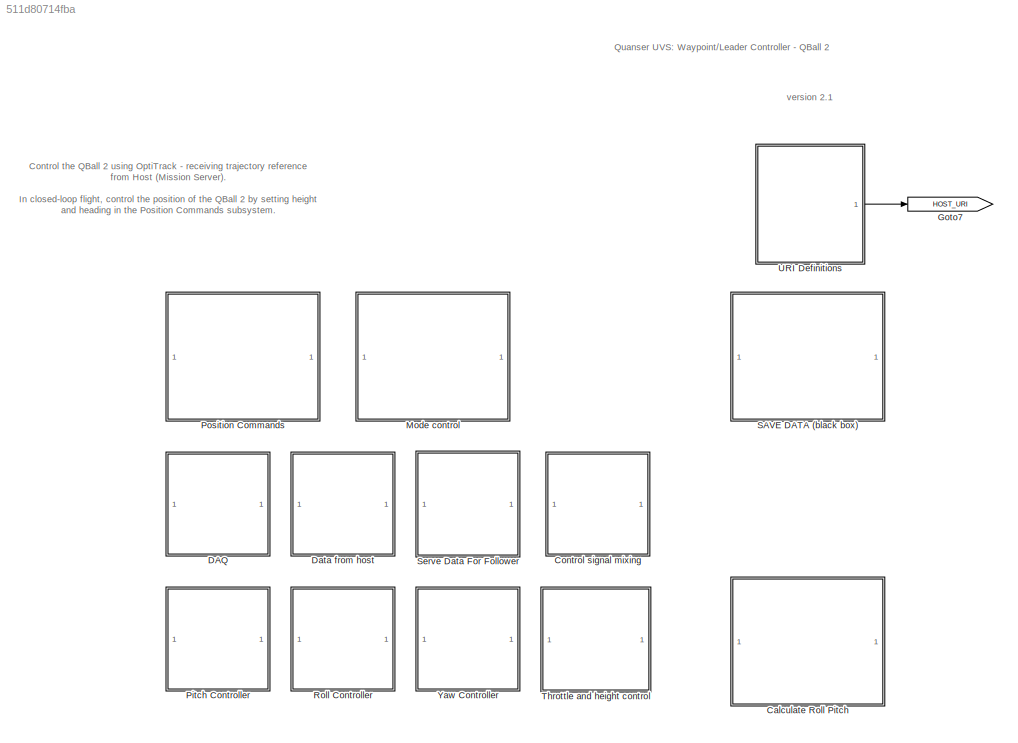
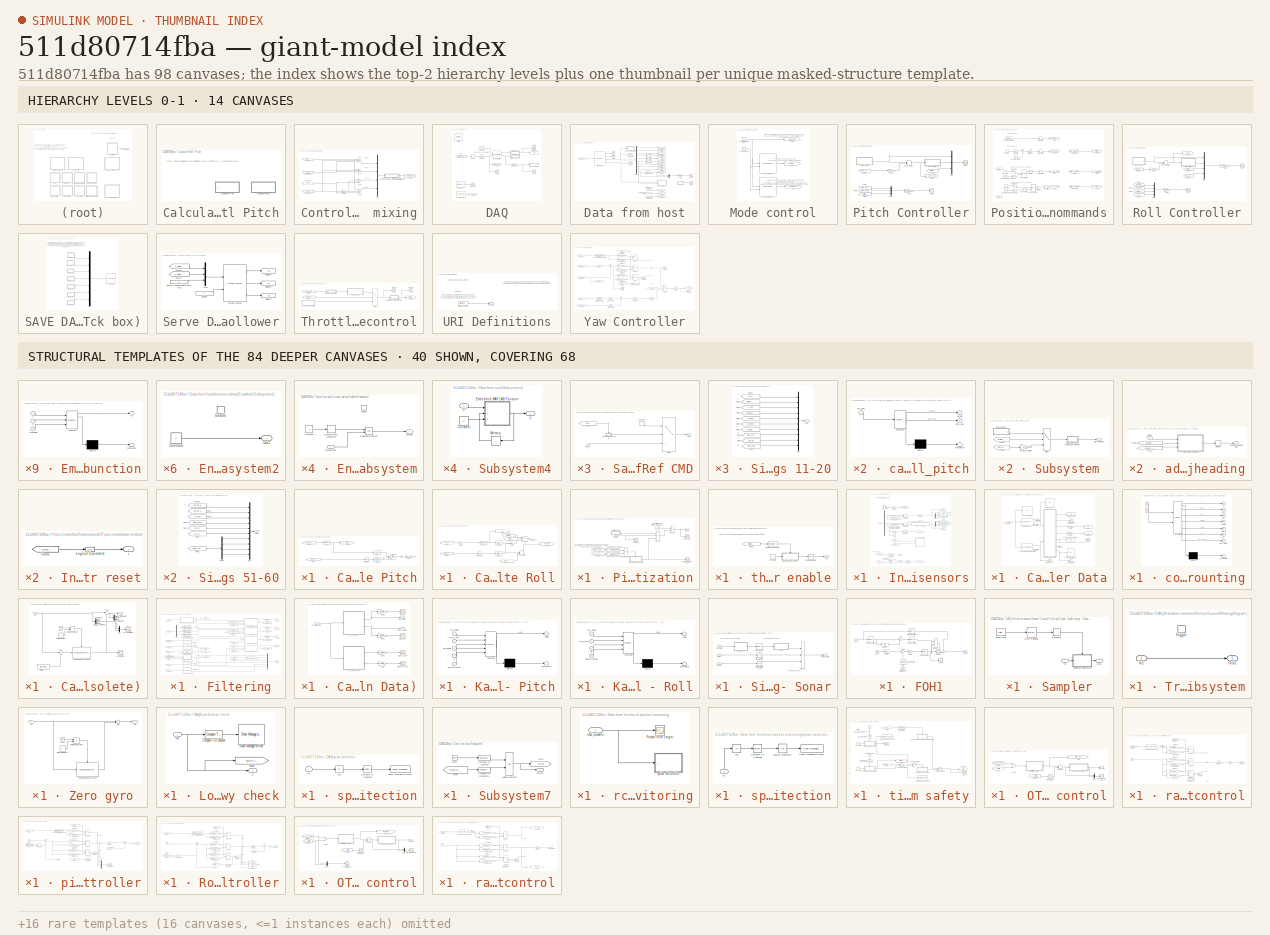
[diagram: thumbnail index - top-2 hierarchy levels (14 canvases) + 40 structural-template representatives of the remaining 84 canvases]
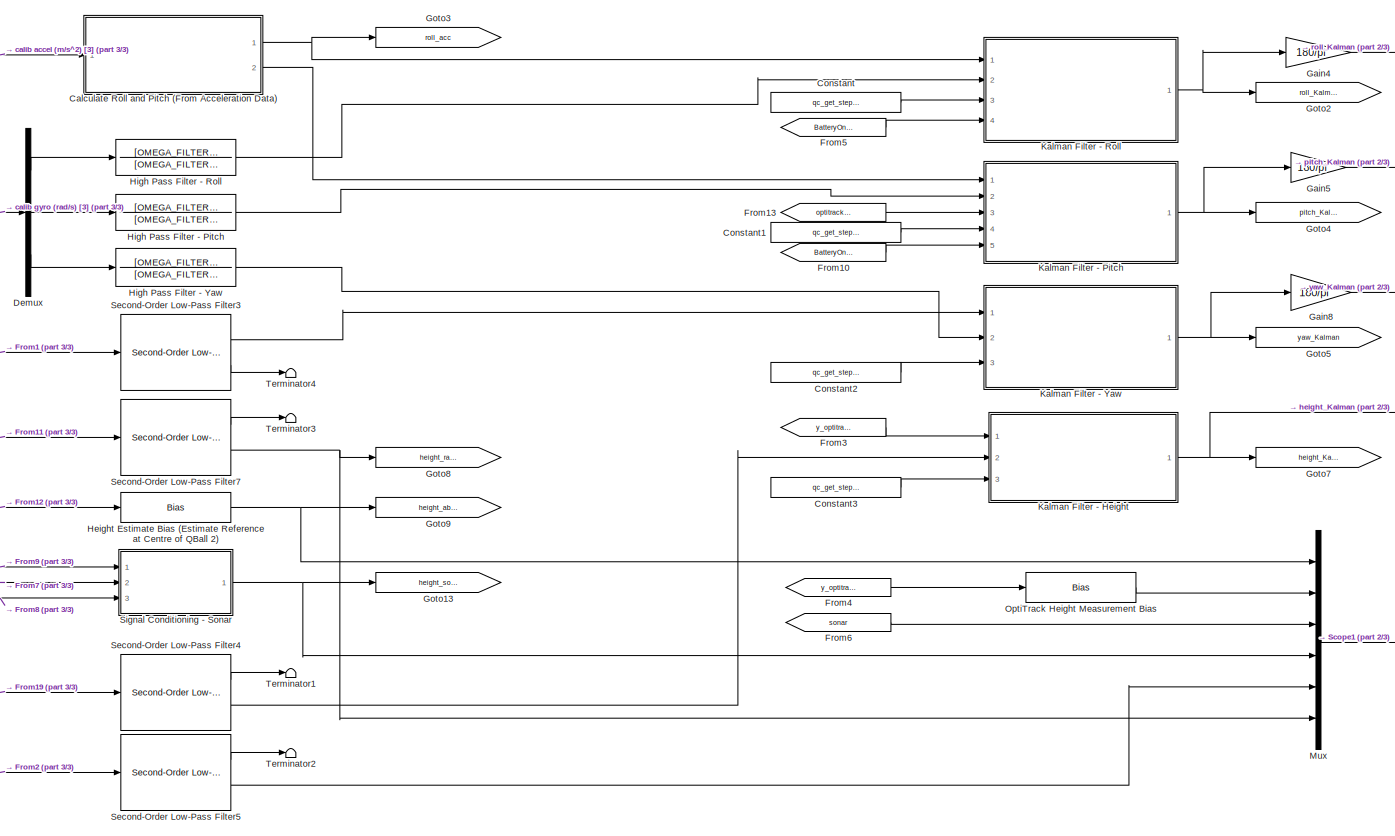
[diagram: DAQ/Initialize sensors/Sensor Fusion/Filtering - part 1/3, most of the canvas]
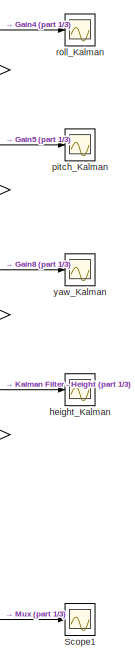
[diagram: DAQ/Initialize sensors/Sensor Fusion/Filtering - part 2/3, right side, full height]
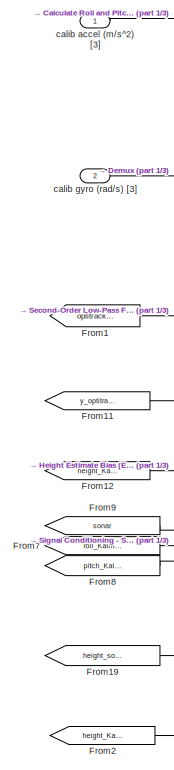
[diagram: DAQ/Initialize sensors/Sensor Fusion/Filtering - part 3/3, left side, full height]
MODEL slx_511d80714fba
KIND model
CONFIG InitFcn = QBall_2_Setup
BLOCK [SubSystem] Calculate Roll Pitch
  Ports = []
  RequestExecContextInheritance = off
BLOCK [SubSystem] Calculate Roll Pitch/Calculate Pitch
  Ports = []
  RequestExecContextInheritance = off
BLOCK [Fcn] Calculate Roll Pitch/Calculate Pitch/Fcn
  Expr = asin(u/9.81)
BLOCK [From] Calculate Roll Pitch/Calculate Pitch/From3
  CloseFcn = tagdialog Close
  GotoTag = accel_x
  TagVisibility = global
BLOCK [From] Calculate Roll Pitch/Calculate Pitch/From4
  CloseFcn = tagdialog Close
  GotoTag = gyro_y
  TagVisibility = global
BLOCK [Goto] Calculate Roll Pitch/Calculate Pitch/Goto
  GotoTag = pitch
  TagVisibility = global
BLOCK [Goto] Calculate Roll Pitch/Calculate Pitch/Goto1
  GotoTag = pitch_comp
  TagVisibility = global
BLOCK [TransferFcn] Calculate Roll Pitch/Calculate Pitch/HPF
  Denominator = [2 1]
  Numerator = [2 0]
BLOCK [Integrator] Calculate Roll Pitch/Calculate Pitch/Integrator
  Ports = [1, 1]
BLOCK [TransferFcn] Calculate Roll Pitch/Calculate Pitch/LPF
  Denominator = [2 1]
  Numerator = 1
BLOCK [Sum] Calculate Roll Pitch/Calculate Pitch/Sum2
  InputSameDT = off
  OutDataTypeStr = Inherit: Inherit via internal rule
  Ports = [2, 1]
  SaturateOnIntegerOverflow = off
BLOCK [Terminator] Calculate Roll Pitch/Calculate Pitch/Terminator
BLOCK [SubSystem] Calculate Roll Pitch/Calculate Roll
  Ports = []
  RequestExecContextInheritance = off
BLOCK [Fcn] Calculate Roll Pitch/Calculate Roll/Fcn
  Expr = asin(u/9.81)
BLOCK [From] Calculate Roll Pitch/Calculate Roll/From1
  CloseFcn = tagdialog Close
  GotoTag = optitrack_roll
  TagVisibility = global
BLOCK [From] Calculate Roll Pitch/Calculate Roll/From2
  CloseFcn = tagdialog Close
  GotoTag = accel_y
  TagVisibility = global
BLOCK [From] Calculate Roll Pitch/Calculate Roll/From3
  CloseFcn = tagdialog Close
  GotoTag = gyro_x
  TagVisibility = global
BLOCK [From] Calculate Roll Pitch/Calculate Roll/From4
  CloseFcn = tagdialog Close
  GotoTag = optitrack_tracking
  TagVisibility = global
BLOCK [From] Calculate Roll Pitch/Calculate Roll/From5
  CloseFcn = tagdialog Close
  GotoTag = roll_acc
  TagVisibility = global
BLOCK [Gain] Calculate Roll Pitch/Calculate Roll/Gain1
  Gain = -1
  OutDataTypeStr = Inherit: Inherit via internal rule
  ParamDataTypeStr = Inherit: Inherit via internal rule
  SaturateOnIntegerOverflow = off
BLOCK [Goto] Calculate Roll Pitch/Calculate Roll/Goto
  GotoTag = roll
  TagVisibility = global
BLOCK [Goto] Calculate Roll Pitch/Calculate Roll/Goto1
  GotoTag = roll_comp
  TagVisibility = global
BLOCK [TransferFcn] Calculate Roll Pitch/Calculate Roll/HPF1
  Denominator = [2 1]
  Numerator = [2 0]
BLOCK [Integrator] Calculate Roll Pitch/Calculate Roll/Integrator
  Ports = [1, 1]
BLOCK [TransferFcn] Calculate Roll Pitch/Calculate Roll/LPF1
  Denominator = [2 1]
  Numerator = 1
BLOCK [ManualSwitch] Calculate Roll Pitch/Calculate Roll/Manual Switch
BLOCK [Sum] Calculate Roll Pitch/Calculate Roll/Sum3
  InputSameDT = off
  OutDataTypeStr = Inherit: Inherit via internal rule
  Ports = [2, 1]
  SaturateOnIntegerOverflow = off
BLOCK [Switch] Calculate Roll Pitch/Calculate Roll/Switch
  InputSameDT = off
  SaturateOnIntegerOverflow = off
  Threshold = 0.5
BLOCK [Terminator] Calculate Roll Pitch/Calculate Roll/Terminator
BLOCK [SubSystem] Control signal mixing
  Ports = []
  RequestExecContextInheritance = off
BLOCK [From] Control signal mixing/From
  CloseFcn = tagdialog Close
  GotoTag = throttle_cmd
  TagVisibility = global
BLOCK [Gain] Control signal mixing/Gain2
  Gain = -1
  OutDataTypeStr = Inherit: Inherit via internal rule
  ParamDataTypeStr = Inherit: Inherit via internal rule
  SaturateOnIntegerOverflow = off
BLOCK [Goto] Control signal mixing/Goto
  GotoTag = motor_outputs
  TagVisibility = global
BLOCK [Mux] Control signal mixing/Mux
  DisplayOption = bar
  Ports = [4, 1]
BLOCK [SubSystem] Control signal mixing/Safety - Motor Shutoff if: - Roll//Pitch Data Runaway (> 40 deg) - Initial 3 second of execution for motor initialization
  Ports = [1, 1]
  RequestExecContextInheritance = off
BLOCK [Abs] Control signal mixing/Safety - Motor Shutoff if: - Roll//Pitch Data Runaway (> 40 deg) - Initial 3 second of execution for motor initialization/Abs
  SaturateOnIntegerOverflow = off
BLOCK [Abs] Control signal mixing/Safety - Motor Shutoff if: - Roll//Pitch Data Runaway (> 40 deg) - Initial 3 second of execution for motor initialization/Abs1
  SaturateOnIntegerOverflow = off
BLOCK [Reference] Control signal mixing/Safety - Motor Shutoff if: - Roll//Pitch Data Runaway (> 40 deg) - Initial 3 second of execution for motor initialization/Compare To Constant1  REF=simulink/Logic and Bit
Operations/Compare
To Constant
  OutDataTypeStr = uint8
  Ports = [1, 1]
  SourceBlock = simulink/Logic and Bit\nOperations/Compare\nTo Constant
  SourceType = Compare To Constant
  ZeroCross = off
  const = 40*pi/180
  relop = >
BLOCK [Reference] Control signal mixing/Safety - Motor Shutoff if: - Roll//Pitch Data Runaway (> 40 deg) - Initial 3 second of execution for motor initialization/Compare To Constant2  REF=simulink/Logic and Bit
Operations/Compare
To Constant
  OutDataTypeStr = uint8
  Ports = [1, 1]
  SourceBlock = simulink/Logic and Bit\nOperations/Compare\nTo Constant
  SourceType = Compare To Constant
  ZeroCross = off
  const = 40*pi/180
  relop = >
BLOCK [SubSystem] Control signal mixing/Safety - Motor Shutoff if: - Roll//Pitch Data Runaway (> 40 deg) - Initial 3 second of execution for motor initialization/Enabled Subsystem
  Ports = [0, 1, 1]
  RequestExecContextInheritance = off
  TreatAsAtomicUnit = on
BLOCK [Constant] Control signal mixing/Safety - Motor Shutoff if: - Roll//Pitch Data Runaway (> 40 deg) - Initial 3 second of execution for motor initialization/Enabled Subsystem/Constant
  Value = 0
BLOCK [EnablePort] Control signal mixing/Safety - Motor Shutoff if: - Roll//Pitch Data Runaway (> 40 deg) - Initial 3 second of execution for motor initialization/Enabled Subsystem/Enable
  Ports = []
BLOCK [Outport] Control signal mixing/Safety - Motor Shutoff if: - Roll//Pitch Data Runaway (> 40 deg) - Initial 3 second of execution for motor initialization/Enabled Subsystem/Out1
  IconDisplay = Port number
  InitialOutput = 1
BLOCK [From] Control signal mixing/Safety - Motor Shutoff if: - Roll//Pitch Data Runaway (> 40 deg) - Initial 3 second of execution for motor initialization/From2
  CloseFcn = tagdialog Close
  GotoTag = pitch_comp
  TagVisibility = global
BLOCK [From] Control signal mixing/Safety - Motor Shutoff if: - Roll//Pitch Data Runaway (> 40 deg) - Initial 3 second of execution for motor initialization/From3
  CloseFcn = tagdialog Close
  GotoTag = roll_comp
  TagVisibility = global
BLOCK [Logic] Control signal mixing/Safety - Motor Shutoff if: - Roll//Pitch Data Runaway (> 40 deg) - Initial 3 second of execution for motor initialization/Logical Operator
  AllPortsSameDT = off
  Operator = OR
  OutDataTypeStr = boolean
  Ports = [2, 1]
BLOCK [Product] Control signal mixing/Safety - Motor Shutoff if: - Roll//Pitch Data Runaway (> 40 deg) - Initial 3 second of execution for motor initialization/Product1
  InputSameDT = off
  Inputs = 3
  OutDataTypeStr = double
  Ports = [3, 1]
  SaturateOnIntegerOverflow = off
BLOCK [Product] Control signal mixing/Safety - Motor Shutoff if: - Roll//Pitch Data Runaway (> 40 deg) - Initial 3 second of execution for motor initialization/Product2
  InputSameDT = off
  OutDataTypeStr = double
  Ports = [2, 1]
  SaturateOnIntegerOverflow = off
BLOCK [Scope] Control signal mixing/Safety - Motor Shutoff if: - Roll//Pitch Data Runaway (> 40 deg) - Initial 3 second of execution for motor initialization/Roll, Pitch runaway check
  DataFormat = StructureWithTime
  Floating = off
  NumInputPorts = 1
  Ports = [1]
  SampleTime = 0
  SaveName = ScopeData38
  ShowLegends = off
BLOCK [Step] Control signal mixing/Safety - Motor Shutoff if: - Roll//Pitch Data Runaway (> 40 deg) - Initial 3 second of execution for motor initialization/Step Initialize zero throttle for 3 seconds
  SampleTime = 0
  Time = 3
BLOCK [Outport] Control signal mixing/Safety - Motor Shutoff if: - Roll//Pitch Data Runaway (> 40 deg) - Initial 3 second of execution for motor initialization/motors
  IconDisplay = Port number
BLOCK [Inport] Control signal mixing/Safety - Motor Shutoff if: - Roll//Pitch Data Runaway (> 40 deg) - Initial 3 second of execution for motor initialization/motors in
  IconDisplay = Port number
BLOCK [Scope] Control signal mixing/Safety - Motor Shutoff if: - Roll//Pitch Data Runaway (> 40 deg) - Initial 3 second of execution for motor initialization/motors_in
  DataFormat = StructureWithTime
  Floating = off
  NumInputPorts = 1
  Ports = [1]
  SampleTime = 0
  SaveName = ScopeData50
  ShowLegends = off
BLOCK [Scope] Control signal mixing/Safety - Motor Shutoff if: - Roll//Pitch Data Runaway (> 40 deg) - Initial 3 second of execution for motor initialization/motors_out
  DataFormat = StructureWithTime
  Floating = off
  NumInputPorts = 1
  Ports = [1]
  SampleTime = 0
  SaveName = ScopeData51
  ShowLegends = off
BLOCK [SubSystem] Control signal mixing/Safety - Motor Shutoff if: - Roll//Pitch Data Runaway (> 40 deg) - Initial 3 second of execution for motor initialization/throttle enable
  Ports = [0, 1]
  RequestExecContextInheritance = off
BLOCK [Reference] Control signal mixing/Safety - Motor Shutoff if: - Roll//Pitch Data Runaway (> 40 deg) - Initial 3 second of execution for motor initialization/throttle enable/Compare To Constant  REF=simulink/Logic and Bit
Operations/Compare
To Constant
  OutDataTypeStr = uint8
  Ports = [1, 1]
  SourceBlock = simulink/Logic and Bit\nOperations/Compare\nTo Constant
  SourceType = Compare To Constant
  ZeroCross = off
  const = 0.0525
  relop = <=
BLOCK [Constant] Control signal mixing/Safety - Motor Shutoff if: - Roll//Pitch Data Runaway (> 40 deg) - Initial 3 second of execution for motor initialization/throttle enable/Constant2
  Value = 2
BLOCK [SubSystem] Control signal mixing/Safety - Motor Shutoff if: - Roll//Pitch Data Runaway (> 40 deg) - Initial 3 second of execution for motor initialization/throttle enable/Enabled Subsystem
  Ports = [1, 1, 1]
  RequestExecContextInheritance = off
  TreatAsAtomicUnit = on
BLOCK [Constant] Control signal mixing/Safety - Motor Shutoff if: - Roll//Pitch Data Runaway (> 40 deg) - Initial 3 second of execution for motor initialization/throttle enable/Enabled Subsystem/Constant
  SampleTime = qc_get_step_size
BLOCK [DiscreteIntegrator] Control signal mixing/Safety - Motor Shutoff if: - Roll//Pitch Data Runaway (> 40 deg) - Initial 3 second of execution for motor initialization/throttle enable/Enabled Subsystem/Discrete-Time Integrator
  ICPrevOutput = DiscIntNeverNeededParam
  ICPrevScaledInput = DiscIntNeverNeededParam
  Ports = [1, 1]
  SampleTime = -1
BLOCK [EnablePort] Control signal mixing/Safety - Motor Shutoff if: - Roll//Pitch Data Runaway (> 40 deg) - Initial 3 second of execution for motor initialization/throttle enable/Enabled Subsystem/Enable
  Ports = []
  StatesWhenEnabling = reset
BLOCK [RelationalOperator] Control signal mixing/Safety - Motor Shutoff if: - Roll//Pitch Data Runaway (> 40 deg) - Initial 3 second of execution for motor initialization/throttle enable/Enabled Subsystem/Relational Operator
  InputSameDT = off
  OutDataTypeStr = boolean
  Ports = [2, 1]
BLOCK [Outport] Control signal mixing/Safety - Motor Shutoff if: - Roll//Pitch Data Runaway (> 40 deg) - Initial 3 second of execution for motor initialization/throttle enable/Enabled Subsystem/timeout
  IconDisplay = Port number
  InitialOutput = [0]
  OutputWhenDisabled = reset
BLOCK [Inport] Control signal mixing/Safety - Motor Shutoff if: - Roll//Pitch Data Runaway (> 40 deg) - Initial 3 second of execution for motor initialization/throttle enable/Enabled Subsystem/timeout limit
  IconDisplay = Port number
BLOCK [From] Control signal mixing/Safety - Motor Shutoff if: - Roll//Pitch Data Runaway (> 40 deg) - Initial 3 second of execution for motor initialization/throttle enable/From1
  CloseFcn = tagdialog Close
  GotoTag = throttle_cmd
  TagVisibility = global
BLOCK [Logic] Control signal mixing/Safety - Motor Shutoff if: - Roll//Pitch Data Runaway (> 40 deg) - Initial 3 second of execution for motor initialization/throttle enable/Logical Operator1
  AllPortsSameDT = off
  Operator = NOT
  OutDataTypeStr = boolean
  Ports = [1, 1]
BLOCK [Outport] Control signal mixing/Safety - Motor Shutoff if: - Roll//Pitch Data Runaway (> 40 deg) - Initial 3 second of execution for motor initialization/throttle enable/en
  IconDisplay = Port number
BLOCK [Sum] Control signal mixing/Sum
  InputSameDT = off
  Inputs = +++
  OutDataTypeStr = Inherit: Inherit via internal rule
  Ports = [3, 1]
  SaturateOnIntegerOverflow = off
BLOCK [Sum] Control signal mixing/Sum1
  InputSameDT = off
  Inputs = ++-
  OutDataTypeStr = Inherit: Inherit via internal rule
  Ports = [3, 1]
  SaturateOnIntegerOverflow = off
BLOCK [Sum] Control signal mixing/Sum2
  InputSameDT = off
  Inputs = +++
  OutDataTypeStr = Inherit: Inherit via internal rule
  Ports = [3, 1]
  SaturateOnIntegerOverflow = off
BLOCK [Sum] Control signal mixing/Sum3
  InputSameDT = off
  Inputs = ++-
  OutDataTypeStr = Inherit: Inherit via internal rule
  Ports = [3, 1]
  SaturateOnIntegerOverflow = off
BLOCK [From] Control signal mixing/Yaw gyro1
  CloseFcn = tagdialog Close
  GotoTag = u_yaw
  TagVisibility = global
BLOCK [From] Control signal mixing/Yaw gyro2
  CloseFcn = tagdialog Close
  GotoTag = u_pitch
  TagVisibility = global
BLOCK [From] Control signal mixing/Yaw gyro3
  CloseFcn = tagdialog Close
  GotoTag = u_roll
  TagVisibility = global
BLOCK [SubSystem] DAQ
  Ports = []
  RequestExecContextInheritance = off
BLOCK [Scope] DAQ/Battery
  DataFormat = StructureWithTime
  Floating = off
  LimitDataPoints = off
  NumInputPorts = 1
  Ports = [1]
  SampleTime = 0
  SaveName = ScopeData14
  ShowLegends = off
  TimeRange = 5
  YMax = 13
  YMin = 9.9
BLOCK [Display] DAQ/Battery (V)
  Decimation = 1
  Ports = [1]
BLOCK [From] DAQ/From
  CloseFcn = tagdialog Close
  GotoTag = motor_outputs
  TagVisibility = global
BLOCK [Goto] DAQ/Goto1
  GotoTag = sample_time
  TagVisibility = global
BLOCK [Goto] DAQ/Goto10
  GotoTag = pwm_output
  TagVisibility = global
BLOCK [Reference] DAQ/HIL Initialize  REF=quarc_library/Data Acquisition/Generic/Configuration/HIL Initialize
  AttributesFormatString = %<object_name> (%<board_type>-%<board_number>)
  Ports = []
  Priority = -99
  SourceBlock = quarc_library/Data Acquisition/Generic/Configuration/HIL Initialize
  SourceType = HIL Initialize
  UserDataPersistent = on
  active = off
  analog_input_channels = [0:2]
  analog_input_maximums = [5 5 15]
  analog_input_minimums = [0 0 0]
  analog_output_channels = []
  analog_output_maximums = []
  analog_output_minimums = []
  board_number = 0
  board_options = gyro_fs=500;gyro_rate=800;gyro_bw=110;accel_rate=800;accel_fs=8
  board_type = qball2
  clock_modes = []
  digital_input_channels = []
  digital_output_channels = [8:9]
  digital_output_configuration = []
  encoder_channels = []
  encoder_filter_frequency = []
  exclusive = off
  final_analog_outputs = []
  final_digital_outputs = [1 1]
  final_other_outputs = [0]
  final_pwm_outputs = [0]
  hardware_clocks = []
  initial_analog_outputs = []
  initial_clock_frequencies = []
  initial_digital_outputs = [0]
  initial_encoder_counts = []
  initial_other_outputs = [0]
  initial_pwm_outputs = [0]
  object_name = QBall 2
  other_output_channels = [11000:11003]
  pwm_alignment = [0]
  pwm_channels = []
  pwm_configuration = [0]
  pwm_frequency = 20e6/1024
  pwm_leading_deadband = [0]
  pwm_modes = [0]
  pwm_polarity = [1]
  pwm_trailing_deadband = [0]
  quadrature = []
  set_analog_input_params_at_start = off
  set_analog_input_params_at_switch_in = off
  set_analog_output_params_at_start = off
  set_analog_output_params_at_switch_in = off
  set_analog_outputs_at_start = off
  set_analog_outputs_at_switch_in = off
  set_analog_outputs_at_switch_out = off
  set_analog_outputs_at_terminate = off
  set_analog_outputs_on_watchdog = off
  set_clock_frequencies_at_start = off
  set_clock_frequencies_at_switch_in = off
  set_clock_params_at_start = off
  set_clock_params_at_switch_in = off
  set_digital_output_params_at_start = off
  set_digital_output_params_at_switch_in = off
  set_digital_outputs_at_start = on
  set_digital_outputs_at_switch_in = off
  set_digital_outputs_at_switch_out = off
  set_digital_outputs_at_terminate = on
  set_digital_outputs_on_watchdog = on
  set_encoder_counts_at_start = off
  set_encoder_counts_at_switch_in = off
  set_encoder_params_at_start = off
  set_encoder_params_at_switch_in = off
  set_other_outputs_at_start = on
  set_other_outputs_at_switch_in = off
  set_other_outputs_at_switch_out = off
  set_other_outputs_at_terminate = on
  set_other_outputs_on_watchdog = on
  set_pwm_outputs_at_start = on
  set_pwm_outputs_at_switch_in = off
  set_pwm_outputs_at_switch_out = off
  set_pwm_outputs_at_terminate = on
  set_pwm_outputs_on_watchdog = on
  set_pwm_params_at_start = on
  set_pwm_params_at_switch_in = off
  watchdog_analog_outputs = []
  watchdog_digital_outputs = [0]
  watchdog_other_outputs = [0]
  watchdog_pwm_outputs = [0]
BLOCK [Reference] DAQ/HIL Read Write1  REF=quarc_library/Data Acquisition/Generic/Immediate I//O/HIL Read Write
  AttributesFormatString = (%<object_name>)
  Ports = [2, 2]
  SourceBlock = quarc_library/Data Acquisition/Generic/Immediate I//O/HIL Read Write
  SourceType = HIL Read Write
  UserDataPersistent = on
  active = off
  analog_input_channels = [2]
  analog_output_channels = []
  data_type_mode = Inherit via back propagation
  digital_data_type = boolean
  digital_input_channels = []
  digital_output_channels = [8, 9]
  encoder_data_type = double
  encoder_input_channels = []
  object_name = QBall 2
  other_input_channels = [3000:3002 4000:4002 0]
  other_output_channels = [11003 11002 11000:11001]
  pwm_output_channels = []
  sample_time = qc_get_step_size
  vector_input = on
  vector_output = on
BLOCK [Reference] DAQ/HIL Watchdog  REF=quarc_library/Data Acquisition/Generic/Watchdog/HIL Watchdog
  AttributesFormatString = (%<object_name>)
  Ports = [0, 1]
  SourceBlock = quarc_library/Data Acquisition/Generic/Watchdog/HIL Watchdog
  SourceType = HIL Watchdog
  UserDataPersistent = on
  active = off
  object_name = QBall 2
  sample_time = qc_get_step_size
  timeout = 0.1
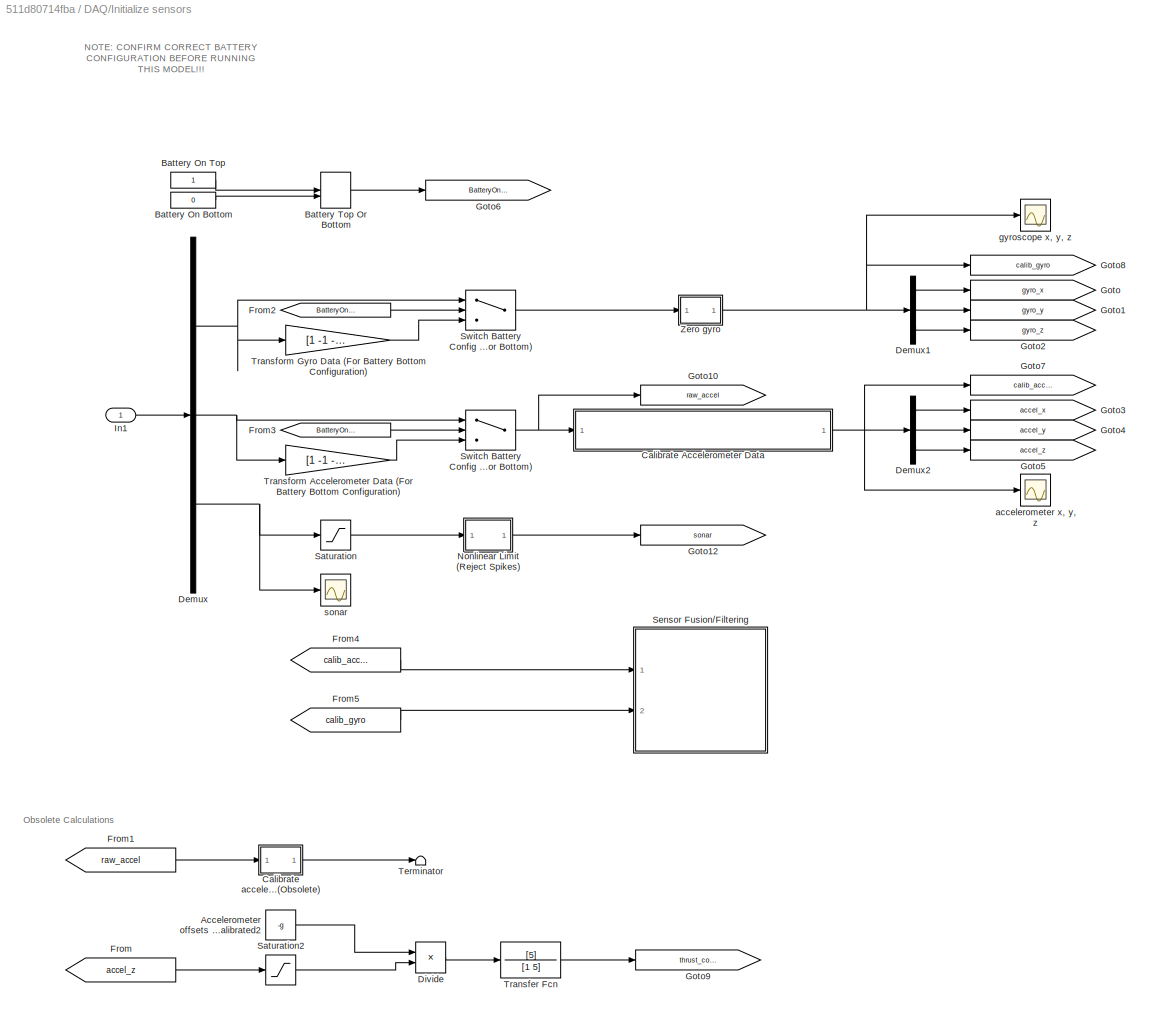
BLOCK [SubSystem] DAQ/Initialize sensors
  Ports = [1]
  RequestExecContextInheritance = off
BLOCK [Constant] DAQ/Initialize sensors/Accelerometer offsets manually calibrated2
  Value = -g
BLOCK [Constant] DAQ/Initialize sensors/Battery On Bottom
  Value = 0
BLOCK [Constant] DAQ/Initialize sensors/Battery On Top
BLOCK [ManualSwitch] DAQ/Initialize sensors/Battery Top Or Bottom
  CurrentSetting = 0
BLOCK [SubSystem] DAQ/Initialize sensors/Calibrate Accelerometer Data
  Ports = [1, 1]
  RequestExecContextInheritance = off
BLOCK [Display] DAQ/Initialize sensors/Calibrate Accelerometer Data/Bias Magnitude
  Decimation = 100
  Ports = [1]
BLOCK [Display] DAQ/Initialize sensors/Calibrate Accelerometer Data/Bias Pitch
  Decimation = 100
  Ports = [1]
BLOCK [Reference] DAQ/Initialize sensors/Calibrate Accelerometer Data/Bias Removal  REF=quarc_library/Discrete/Bias Removal
  Ports = [1, 3]
  SourceBlock = quarc_library/Discrete/Bias Removal
  SourceType = Bias Removal
  end_time = TIMEOUT_CALIB
  sample_time = qc_get_step_size
  start_time = 0
  switch_id = 0
BLOCK [Display] DAQ/Initialize sensors/Calibrate Accelerometer Data/Bias Roll
  Decimation = 100
  Ports = [1]
BLOCK [Display] DAQ/Initialize sensors/Calibrate Accelerometer Data/Bias Vector
  Decimation = 100
  Ports = [1]
BLOCK [Outport] DAQ/Initialize sensors/Calibrate Accelerometer Data/Calibrated Accelerations (m//s^2) [3]
  IconDisplay = Port number
BLOCK [Display] DAQ/Initialize sensors/Calibrate Accelerometer Data/Calibrated Body-Fixed Acceleration
  Decimation = 100
  Ports = [1]
BLOCK [Display] DAQ/Initialize sensors/Calibrate Accelerometer Data/Check Value (Should be 1)
  Decimation = 100
  Ports = [1]
BLOCK [Scope] DAQ/Initialize sensors/Calibrate Accelerometer Data/Filtered Accel
  DataFormat = StructureWithTime
  Floating = off
  NumInputPorts = 1
  Ports = [1]
  SampleTime = 0
  SaveName = ScopeData42
  ShowLegends = off
  YMax = 200
  YMin = -200
BLOCK [Gain] DAQ/Initialize sensors/Calibrate Accelerometer Data/Gain
  Gain = 180/pi
  OutDataTypeStr = Inherit: Inherit via internal rule
  ParamDataTypeStr = Inherit: Inherit via internal rule
  SaturateOnIntegerOverflow = off
BLOCK [Gain] DAQ/Initialize sensors/Calibrate Accelerometer Data/Gain1
  Gain = 180/pi
  OutDataTypeStr = Inherit: Inherit via internal rule
  ParamDataTypeStr = Inherit: Inherit via internal rule
  SaturateOnIntegerOverflow = off
BLOCK [Scope] DAQ/Initialize sensors/Calibrate Accelerometer Data/Normalized Bias Vector
  DataFormat = StructureWithTime
  Floating = off
  NumInputPorts = 1
  Ports = [1]
  SampleTime = 0
  ShowLegends = off
BLOCK [Display] DAQ/Initialize sensors/Calibrate Accelerometer Data/Raw Accelerations
  Decimation = 100
  Ports = [1]
BLOCK [Reference] DAQ/Initialize sensors/Calibrate Accelerometer Data/Second-Order Low-Pass Filter2  REF=quarc_library/Continuous/Second-Order
Low-Pass Filter
  Ports = [1, 2]
  SourceBlock = quarc_library/Continuous/Second-Order\nLow-Pass Filter
  SourceType = Second-Order Low-Pass Filter
  input_init = 0
  input_width = OMEGA_FILTER
  input_zeta = 1
  params_source = Internal (dialog parameters)
BLOCK [Terminator] DAQ/Initialize sensors/Calibrate Accelerometer Data/Terminator
BLOCK [Terminator] DAQ/Initialize sensors/Calibrate Accelerometer Data/Terminator1
BLOCK [Terminator] DAQ/Initialize sensors/Calibrate Accelerometer Data/Terminator2
BLOCK [Terminator] DAQ/Initialize sensors/Calibrate Accelerometer Data/Terminator7
BLOCK [Scope] DAQ/Initialize sensors/Calibrate Accelerometer Data/check
  DataFormat = StructureWithTime
  Floating = off
  NumInputPorts = 1
  Ports = [1]
  SampleTime = 0
  SaveName = ScopeData12
  ShowLegends = off
  YMax = 1.05
  YMin = 0.95
BLOCK [SubSystem] DAQ/Initialize sensors/Calibrate Accelerometer Data/correct accel mounting
  ErrorFcn = Stateflow.Translate.translate
  PermitHierarchicalResolution = ExplicitOnly
  Ports = [2, 7]
  RequestExecContextInheritance = off
  SFBlockType = MATLAB Function
  TreatAsAtomicUnit = on
BLOCK [Demux] DAQ/Initialize sensors/Calibrate Accelerometer Data/correct accel mounting/ Demux 
  Outputs = 1
  Ports = [1, 1]
BLOCK [S-Function] DAQ/Initialize sensors/Calibrate Accelerometer Data/correct accel mounting/ SFunction 
  EnableBusSupport = on
  FunctionName = sf_sfun
  PortCounts = [2 8]
  Ports = [2, 8]
  Tag = Stateflow S-Function leader_qball2_mytest 22
BLOCK [Terminator] DAQ/Initialize sensors/Calibrate Accelerometer Data/correct accel mounting/ Terminator 
BLOCK [Outport] DAQ/Initialize sensors/Calibrate Accelerometer Data/correct accel mounting/Phi
  IconDisplay = Port number
  Port = 3
BLOCK [Outport] DAQ/Initialize sensors/Calibrate Accelerometer Data/correct accel mounting/R
  IconDisplay = Port number
  Port = 6
BLOCK [Outport] DAQ/Initialize sensors/Calibrate Accelerometer Data/correct accel mounting/Theta
  IconDisplay = Port number
  Port = 4
BLOCK [Inport] DAQ/Initialize sensors/Calibrate Accelerometer Data/correct accel mounting/acc
  IconDisplay = Port number
  Port = 2
BLOCK [Outport] DAQ/Initialize sensors/Calibrate Accelerometer Data/correct accel mounting/acc_body
  IconDisplay = Port number
  Port = 7
BLOCK [Outport] DAQ/Initialize sensors/Calibrate Accelerometer Data/correct accel mounting/check
  IconDisplay = Port number
  Port = 5
BLOCK [Outport] DAQ/Initialize sensors/Calibrate Accelerometer Data/correct accel mounting/n
  IconDisplay = Port number
BLOCK [Outport] DAQ/Initialize sensors/Calibrate Accelerometer Data/correct accel mounting/nhat
  IconDisplay = Port number
  Port = 2
BLOCK [Inport] DAQ/Initialize sensors/Calibrate Accelerometer Data/correct accel mounting/u
  IconDisplay = Port number
BLOCK [Inport] DAQ/Initialize sensors/Calibrate Accelerometer Data/raw accel (m//s^2) [3]
  IconDisplay = Port number
BLOCK [SubSystem] DAQ/Initialize sensors/Calibrate accelerometer (Obsolete)
  Ports = [1, 1]
  RequestExecContextInheritance = off
BLOCK [Constant] DAQ/Initialize sensors/Calibrate accelerometer (Obsolete)/Calibration time (s)
BLOCK [Clock] DAQ/Initialize sensors/Calibrate accelerometer (Obsolete)/Clock
BLOCK [Demux] DAQ/Initialize sensors/Calibrate accelerometer (Obsolete)/Demux
  DisplayOption = bar
  Outputs = 3
  Ports = [1, 3]
BLOCK [Demux] DAQ/Initialize sensors/Calibrate accelerometer (Obsolete)/Demux1
  DisplayOption = bar
  Outputs = 3
  Ports = [1, 3]
BLOCK [Reference] DAQ/Initialize sensors/Calibrate accelerometer (Obsolete)/Enabled Moving Average  REF=quarc_library/Discrete/Enabled Moving Average
  Ports = [1, 1, 1]
  SourceBlock = quarc_library/Discrete/Enabled Moving Average
  SourceType = Enabled Moving Average
  enable_state = reset
  sample_time = qc_get_step_size
BLOCK [Inport] DAQ/Initialize sensors/Calibrate accelerometer (Obsolete)/In1
  IconDisplay = Port number
BLOCK [Mux] DAQ/Initialize sensors/Calibrate accelerometer (Obsolete)/Mux
  DisplayOption = bar
  Inputs = 2
  Ports = [2, 1]
BLOCK [Outport] DAQ/Initialize sensors/Calibrate accelerometer (Obsolete)/Out1
  IconDisplay = Port number
BLOCK [RelationalOperator] DAQ/Initialize sensors/Calibrate accelerometer (Obsolete)/Relational Operator
  InputSameDT = off
  Operator = <
  OutDataTypeStr = boolean
  Ports = [2, 1]
BLOCK [Sum] DAQ/Initialize sensors/Calibrate accelerometer (Obsolete)/Sum
  IconShape = round
  InputSameDT = off
  Inputs = |+-
  OutDataTypeStr = Inherit: Inherit via internal rule
  Ports = [2, 1]
  SaturateOnIntegerOverflow = off
BLOCK [Sum] DAQ/Initialize sensors/Calibrate accelerometer (Obsolete)/Sum1
  IconShape = round
  InputSameDT = off
  Inputs = |+-
  OutDataTypeStr = Inherit: Inherit via internal rule
  Ports = [2, 1]
  SaturateOnIntegerOverflow = off
BLOCK [Terminator] DAQ/Initialize sensors/Calibrate accelerometer (Obsolete)/Terminator
BLOCK [Terminator] DAQ/Initialize sensors/Calibrate accelerometer (Obsolete)/Terminator1
BLOCK [Terminator] DAQ/Initialize sensors/Calibrate accelerometer (Obsolete)/Terminator2
BLOCK [Terminator] DAQ/Initialize sensors/Calibrate accelerometer (Obsolete)/Terminator3
BLOCK [Scope] DAQ/Initialize sensors/Calibrate accelerometer (Obsolete)/accel calibrated
  DataFormat = StructureWithTime
  Floating = off
  LimitDataPoints = off
  NumInputPorts = 1
  Ports = [1]
  SampleTime = 0
  SaveName = ScopeData17
  ShowLegends = off
  YMin = -13
BLOCK [Scope] DAQ/Initialize sensors/Calibrate accelerometer (Obsolete)/accels offset
  DataFormat = StructureWithTime
  Floating = off
  LimitDataPoints = off
  NumInputPorts = 1
  Ports = [1]
  SampleTime = 0
  SaveName = ScopeData16
  ShowLegends = off
  YMin = -13
BLOCK [Constant] DAQ/Initialize sensors/Calibrate accelerometer (Obsolete)/initial accel
  Value = [0 0 -9.81]
BLOCK [Demux] DAQ/Initialize sensors/Demux
  DisplayOption = bar
  Outputs = [3 3 1]
  Ports = [1, 3]
BLOCK [Demux] DAQ/Initialize sensors/Demux1
  DisplayOption = bar
  Outputs = 3
  Ports = [1, 3]
BLOCK [Demux] DAQ/Initialize sensors/Demux2
  DisplayOption = bar
  Outputs = 3
  Ports = [1, 3]
BLOCK [Product] DAQ/Initialize sensors/Divide
  InputSameDT = off
  Inputs = */
  OutDataTypeStr = Inherit: Inherit via internal rule
  Ports = [2, 1]
  RndMeth = Floor
  SaturateOnIntegerOverflow = off
BLOCK [From] DAQ/Initialize sensors/From
  CloseFcn = tagdialog Close
  GotoTag = accel_z
  TagVisibility = global
BLOCK [From] DAQ/Initialize sensors/From1
  CloseFcn = tagdialog Close
  GotoTag = raw_accel
  TagVisibility = global
BLOCK [From] DAQ/Initialize sensors/From2
  CloseFcn = tagdialog Close
  GotoTag = BatteryOnTop
  TagVisibility = global
BLOCK [From] DAQ/Initialize sensors/From3
  CloseFcn = tagdialog Close
  GotoTag = BatteryOnTop
  TagVisibility = global
BLOCK [From] DAQ/Initialize sensors/From4
  CloseFcn = tagdialog Close
  GotoTag = calib_accel
  TagVisibility = global
BLOCK [From] DAQ/Initialize sensors/From5
  CloseFcn = tagdialog Close
  GotoTag = calib_gyro
  TagVisibility = global
BLOCK [Goto] DAQ/Initialize sensors/Goto
  GotoTag = gyro_x
  TagVisibility = global
BLOCK [Goto] DAQ/Initialize sensors/Goto1
  GotoTag = gyro_y
  TagVisibility = global
BLOCK [Goto] DAQ/Initialize sensors/Goto10
  GotoTag = raw_accel
  TagVisibility = global
BLOCK [Goto] DAQ/Initialize sensors/Goto12
  GotoTag = sonar
  TagVisibility = global
BLOCK [Goto] DAQ/Initialize sensors/Goto2
  GotoTag = gyro_z
  TagVisibility = global
BLOCK [Goto] DAQ/Initialize sensors/Goto3
  GotoTag = accel_x
  TagVisibility = global
BLOCK [Goto] DAQ/Initialize sensors/Goto4
  GotoTag = accel_y
  TagVisibility = global
BLOCK [Goto] DAQ/Initialize sensors/Goto5
  GotoTag = accel_z
  TagVisibility = global
BLOCK [Goto] DAQ/Initialize sensors/Goto6
  GotoTag = BatteryOnTop
  TagVisibility = global
BLOCK [Goto] DAQ/Initialize sensors/Goto7
  GotoTag = calib_accel
  TagVisibility = global
BLOCK [Goto] DAQ/Initialize sensors/Goto8
  GotoTag = calib_gyro
  TagVisibility = global
BLOCK [Goto] DAQ/Initialize sensors/Goto9
  GotoTag = thrust_comp
  TagVisibility = global
BLOCK [Inport] DAQ/Initialize sensors/In1
  IconDisplay = Port number
BLOCK [SubSystem] DAQ/Initialize sensors/Nonlinear Limit (Reject Spikes)
  Ports = [1, 1]
  RequestExecContextInheritance = off
BLOCK [Constant] DAQ/Initialize sensors/Nonlinear Limit (Reject Spikes)/Constant
  Value = 0.5
BLOCK [SubSystem] DAQ/Initialize sensors/Nonlinear Limit (Reject Spikes)/Embedded MATLAB Function
  ErrorFcn = Stateflow.Translate.translate
  PermitHierarchicalResolution = ExplicitOnly
  Ports = [3, 1]
  RequestExecContextInheritance = off
  SFBlockType = MATLAB Function
  TreatAsAtomicUnit = on
BLOCK [Demux] DAQ/Initialize sensors/Nonlinear Limit (Reject Spikes)/Embedded MATLAB Function/ Demux 
  Outputs = 1
  Ports = [1, 1]
BLOCK [S-Function] DAQ/Initialize sensors/Nonlinear Limit (Reject Spikes)/Embedded MATLAB Function/ SFunction 
  EnableBusSupport = on
  FunctionName = sf_sfun
  PortCounts = [3 2]
  Ports = [3, 2]
  Tag = Stateflow S-Function leader_qball2_mytest 21
BLOCK [Terminator] DAQ/Initialize sensors/Nonlinear Limit (Reject Spikes)/Embedded MATLAB Function/ Terminator 
BLOCK [Inport] DAQ/Initialize sensors/Nonlinear Limit (Reject Spikes)/Embedded MATLAB Function/threshold
  IconDisplay = Port number
  Port = 3
BLOCK [Inport] DAQ/Initialize sensors/Nonlinear Limit (Reject Spikes)/Embedded MATLAB Function/u
  IconDisplay = Port number
BLOCK [Inport] DAQ/Initialize sensors/Nonlinear Limit (Reject Spikes)/Embedded MATLAB Function/x
  IconDisplay = Port number
  Port = 2
BLOCK [Outport] DAQ/Initialize sensors/Nonlinear Limit (Reject Spikes)/Embedded MATLAB Function/y
  IconDisplay = Port number
BLOCK [Memory] DAQ/Initialize sensors/Nonlinear Limit (Reject Spikes)/Memory
BLOCK [Inport] DAQ/Initialize sensors/Nonlinear Limit (Reject Spikes)/u
  IconDisplay = Port number
BLOCK [Outport] DAQ/Initialize sensors/Nonlinear Limit (Reject Spikes)/y
  IconDisplay = Port number
BLOCK [Saturate] DAQ/Initialize sensors/Saturation
  InputPortMap = u0
  LowerLimit = 0
  Ports = [1, 1]
  UpperLimit = 3
BLOCK [Saturate] DAQ/Initialize sensors/Saturation2
  InputPortMap = u0
  LowerLimit = -9.8
  Ports = [1, 1]
  UpperLimit = -9.0
BLOCK [SubSystem] DAQ/Initialize sensors/Sensor Fusion//Filtering
  Ports = [2]
  RequestExecContextInheritance = off
BLOCK [SubSystem] DAQ/Initialize sensors/Sensor Fusion//Filtering/Calculate Roll and Pitch (From Acceleration Data)
  Ports = [1, 2]
  RequestExecContextInheritance = off
BLOCK [Gain] DAQ/Initialize sensors/Sensor Fusion//Filtering/Calculate Roll and Pitch (From Acceleration Data)/Gain1
  Gain = 180/pi
  OutDataTypeStr = Inherit: Inherit via internal rule
  ParamDataTypeStr = Inherit: Inherit via internal rule
  SaturateOnIntegerOverflow = off
BLOCK [Gain] DAQ/Initialize sensors/Sensor Fusion//Filtering/Calculate Roll and Pitch (From Acceleration Data)/Gain2
  Gain = 180/pi
  OutDataTypeStr = Inherit: Inherit via internal rule
  ParamDataTypeStr = Inherit: Inherit via internal rule
  SaturateOnIntegerOverflow = off
BLOCK [Gain] DAQ/Initialize sensors/Sensor Fusion//Filtering/Calculate Roll and Pitch (From Acceleration Data)/Gain6
  Gain = 180/pi
  OutDataTypeStr = Inherit: Inherit via internal rule
  ParamDataTypeStr = Inherit: Inherit via internal rule
  SaturateOnIntegerOverflow = off
BLOCK [Gain] DAQ/Initialize sensors/Sensor Fusion//Filtering/Calculate Roll and Pitch (From Acceleration Data)/Gain7
  Gain = 180/pi
  OutDataTypeStr = Inherit: Inherit via internal rule
  ParamDataTypeStr = Inherit: Inherit via internal rule
  SaturateOnIntegerOverflow = off
BLOCK [Inport] DAQ/Initialize sensors/Sensor Fusion//Filtering/Calculate Roll and Pitch (From Acceleration Data)/accel (m//s^2) [3]
  IconDisplay = Port number
BLOCK [SubSystem] DAQ/Initialize sensors/Sensor Fusion//Filtering/Calculate Roll and Pitch (From Acceleration Data)/calc_roll_pitch
  ErrorFcn = Stateflow.Translate.translate
  PermitHierarchicalResolution = ExplicitOnly
  Ports = [1, 2]
  RequestExecContextInheritance = off
  SFBlockType = MATLAB Function
  TreatAsAtomicUnit = on
BLOCK [Demux] DAQ/Initialize sensors/Sensor Fusion//Filtering/Calculate Roll and Pitch (From Acceleration Data)/calc_roll_pitch/ Demux 
  Outputs = 1
  Ports = [1, 1]
BLOCK [S-Function] DAQ/Initialize sensors/Sensor Fusion//Filtering/Calculate Roll and Pitch (From Acceleration Data)/calc_roll_pitch/ SFunction 
  EnableBusSupport = on
  FunctionName = sf_sfun
  PortCounts = [1 3]
  Ports = [1, 3]
  Tag = Stateflow S-Function leader_qball2_mytest 18
BLOCK [Terminator] DAQ/Initialize sensors/Sensor Fusion//Filtering/Calculate Roll and Pitch (From Acceleration Data)/calc_roll_pitch/ Terminator 
BLOCK [Inport] DAQ/Initialize sensors/Sensor Fusion//Filtering/Calculate Roll and Pitch (From Acceleration Data)/calc_roll_pitch/acc_body
  IconDisplay = Port number
BLOCK [Outport] DAQ/Initialize sensors/Sensor Fusion//Filtering/Calculate Roll and Pitch (From Acceleration Data)/calc_roll_pitch/pitch_acc
  IconDisplay = Port number
  Port = 2
BLOCK [Outport] DAQ/Initialize sensors/Sensor Fusion//Filtering/Calculate Roll and Pitch (From Acceleration Data)/calc_roll_pitch/roll_acc
  IconDisplay = Port number
BLOCK [SubSystem] DAQ/Initialize sensors/Sensor Fusion//Filtering/Calculate Roll and Pitch (From Acceleration Data)/calc_roll_pitch_asin
  ErrorFcn = Stateflow.Translate.translate
  PermitHierarchicalResolution = ExplicitOnly
  Ports = [1, 2]
  RequestExecContextInheritance = off
  SFBlockType = MATLAB Function
  TreatAsAtomicUnit = on
BLOCK [Demux] DAQ/Initialize sensors/Sensor Fusion//Filtering/Calculate Roll and Pitch (From Acceleration Data)/calc_roll_pitch_asin/ Demux 
  Outputs = 1
  Ports = [1, 1]
BLOCK [S-Function] DAQ/Initialize sensors/Sensor Fusion//Filtering/Calculate Roll and Pitch (From Acceleration Data)/calc_roll_pitch_asin/ SFunction 
  EnableBusSupport = on
  FunctionName = sf_sfun
  PortCounts = [1 3]
  Ports = [1, 3]
  Tag = Stateflow S-Function leader_qball2_mytest 23
BLOCK [Terminator] DAQ/Initialize sensors/Sensor Fusion//Filtering/Calculate Roll and Pitch (From Acceleration Data)/calc_roll_pitch_asin/ Terminator 
BLOCK [Inport] DAQ/Initialize sensors/Sensor Fusion//Filtering/Calculate Roll and Pitch (From Acceleration Data)/calc_roll_pitch_asin/acc_body
  IconDisplay = Port number
BLOCK [Outport] DAQ/Initialize sensors/Sensor Fusion//Filtering/Calculate Roll and Pitch (From Acceleration Data)/calc_roll_pitch_asin/pitch_acc
  IconDisplay = Port number
  Port = 2
BLOCK [Outport] DAQ/Initialize sensors/Sensor Fusion//Filtering/Calculate Roll and Pitch (From Acceleration Data)/calc_roll_pitch_asin/roll_acc
  IconDisplay = Port number
BLOCK [Scope] DAQ/Initialize sensors/Sensor Fusion//Filtering/Calculate Roll and Pitch (From Acceleration Data)/pitch_acc
  DataFormat = StructureWithTime
  Floating = off
  NumInputPorts = 1
  Ports = [1]
  SampleTime = 0
  SaveName = ScopeData28
  ShowLegends = off
  YMax = 45
  YMin = -60
BLOCK [Outport] DAQ/Initialize sensors/Sensor Fusion//Filtering/Calculate Roll and Pitch (From Acceleration Data)/pitch_acc (rad)
  IconDisplay = Port number
  Port = 2
BLOCK [Scope] DAQ/Initialize sensors/Sensor Fusion//Filtering/Calculate Roll and Pitch (From Acceleration Data)/pitch_acc_asin
  DataFormat = StructureWithTime
  Floating = off
  NumInputPorts = 1
  Ports = [1]
  SampleTime = 0
  SaveName = ScopeData43
  ShowLegends = off
  YMax = 27.5
  YMin = -10
BLOCK [Scope] DAQ/Initialize sensors/Sensor Fusion//Filtering/Calculate Roll and Pitch (From Acceleration Data)/roll_acc
  DataFormat = StructureWithTime
  Floating = off
  NumInputPorts = 1
  Ports = [1]
  SampleTime = 0
  SaveName = ScopeData20
  ShowLegends = off
  YMax = 200
  YMin = -200
BLOCK [Outport] DAQ/Initialize sensors/Sensor Fusion//Filtering/Calculate Roll and Pitch (From Acceleration Data)/roll_acc (rad)
  IconDisplay = Port number
BLOCK [Scope] DAQ/Initialize sensors/Sensor Fusion//Filtering/Calculate Roll and Pitch (From Acceleration Data)/roll_acc_asin
  DataFormat = StructureWithTime
  Floating = off
  NumInputPorts = 1
  Ports = [1]
  SampleTime = 0
  SaveName = ScopeData29
  ShowLegends = off
  TimeRange = 10
  YMax = 27.5
  YMin = -10
BLOCK [Constant] DAQ/Initialize sensors/Sensor Fusion//Filtering/Constant
  Value = qc_get_step_size
BLOCK [Constant] DAQ/Initialize sensors/Sensor Fusion//Filtering/Constant1
  Value = qc_get_step_size
BLOCK [Constant] DAQ/Initialize sensors/Sensor Fusion//Filtering/Constant2
  Value = qc_get_step_size
BLOCK [Constant] DAQ/Initialize sensors/Sensor Fusion//Filtering/Constant3
  Value = qc_get_step_size
BLOCK [Demux] DAQ/Initialize sensors/Sensor Fusion//Filtering/Demux
  DisplayOption = bar
  Outputs = 3
  Ports = [1, 3]
BLOCK [From] DAQ/Initialize sensors/Sensor Fusion//Filtering/From1
  GotoTag = optitrack_yaw
  TagVisibility = global
BLOCK [From] DAQ/Initialize sensors/Sensor Fusion//Filtering/From10
  GotoTag = BatteryOnTop
  TagVisibility = global
BLOCK [From] DAQ/Initialize sensors/Sensor Fusion//Filtering/From11
  GotoTag = y_optitrack
  TagVisibility = global
BLOCK [From] DAQ/Initialize sensors/Sensor Fusion//Filtering/From12
  GotoTag = height_Kalman
  TagVisibility = global
BLOCK [From] DAQ/Initialize sensors/Sensor Fusion//Filtering/From13
  GotoTag = optitrack_pitch
  TagVisibility = global
BLOCK [From] DAQ/Initialize sensors/Sensor Fusion//Filtering/From19
  CloseFcn = tagdialog Close
  GotoTag = height_sonar
  TagVisibility = global
BLOCK [From] DAQ/Initialize sensors/Sensor Fusion//Filtering/From2
  GotoTag = height_Kalman
  TagVisibility = global
BLOCK [From] DAQ/Initialize sensors/Sensor Fusion//Filtering/From3
  GotoTag = y_optitrack
  TagVisibility = global
BLOCK [From] DAQ/Initialize sensors/Sensor Fusion//Filtering/From4
  GotoTag = y_optitrack
  TagVisibility = global
BLOCK [From] DAQ/Initialize sensors/Sensor Fusion//Filtering/From5
  GotoTag = BatteryOnTop
  TagVisibility = global
BLOCK [From] DAQ/Initialize sensors/Sensor Fusion//Filtering/From6
  GotoTag = sonar
  TagVisibility = global
BLOCK [From] DAQ/Initialize sensors/Sensor Fusion//Filtering/From7
  CloseFcn = tagdialog Close
  GotoTag = roll_Kalman
  TagVisibility = global
BLOCK [From] DAQ/Initialize sensors/Sensor Fusion//Filtering/From8
  CloseFcn = tagdialog Close
  GotoTag = pitch_Kalman
  TagVisibility = global
BLOCK [From] DAQ/Initialize sensors/Sensor Fusion//Filtering/From9
  GotoTag = sonar
  TagVisibility = global
BLOCK [Gain] DAQ/Initialize sensors/Sensor Fusion//Filtering/Gain4
  Gain = 180/pi
  OutDataTypeStr = Inherit: Inherit via internal rule
  ParamDataTypeStr = Inherit: Inherit via internal rule
  SaturateOnIntegerOverflow = off
BLOCK [Gain] DAQ/Initialize sensors/Sensor Fusion//Filtering/Gain5
  Gain = 180/pi
  OutDataTypeStr = Inherit: Inherit via internal rule
  ParamDataTypeStr = Inherit: Inherit via internal rule
  SaturateOnIntegerOverflow = off
BLOCK [Gain] DAQ/Initialize sensors/Sensor Fusion//Filtering/Gain8
  Gain = 180/pi
  OutDataTypeStr = Inherit: Inherit via internal rule
  ParamDataTypeStr = Inherit: Inherit via internal rule
  SaturateOnIntegerOverflow = off
BLOCK [Goto] DAQ/Initialize sensors/Sensor Fusion//Filtering/Goto13
  GotoTag = height_sonar
  TagVisibility = global
BLOCK [Goto] DAQ/Initialize sensors/Sensor Fusion//Filtering/Goto2
  GotoTag = roll_Kalman
  TagVisibility = global
BLOCK [Goto] DAQ/Initialize sensors/Sensor Fusion//Filtering/Goto3
  GotoTag = roll_acc
  TagVisibility = global
BLOCK [Goto] DAQ/Initialize sensors/Sensor Fusion//Filtering/Goto4
  GotoTag = pitch_Kalman
  TagVisibility = global
BLOCK [Goto] DAQ/Initialize sensors/Sensor Fusion//Filtering/Goto5
  GotoTag = yaw_Kalman
  TagVisibility = global
BLOCK [Goto] DAQ/Initialize sensors/Sensor Fusion//Filtering/Goto7
  GotoTag = height_Kalman
  TagVisibility = global
BLOCK [Goto] DAQ/Initialize sensors/Sensor Fusion//Filtering/Goto8
  GotoTag = height_rate_estimate
  TagVisibility = global
BLOCK [Goto] DAQ/Initialize sensors/Sensor Fusion//Filtering/Goto9
  GotoTag = height_above_ground
  TagVisibility = global
BLOCK [Bias] DAQ/Initialize sensors/Sensor Fusion//Filtering/Height Estimate Bias (Estimate Reference at Centre of QBall 2) 
  Bias = -OFFSET_HEIGHT
  SaturateOnIntegerOverflow = off
BLOCK [TransferFcn] DAQ/Initialize sensors/Sensor Fusion//Filtering/High Pass Filter - Pitch
  Denominator = [OMEGA_FILTER 1]
  Numerator = [OMEGA_FILTER 0]
BLOCK [TransferFcn] DAQ/Initialize sensors/Sensor Fusion//Filtering/High Pass Filter - Roll
  Denominator = [OMEGA_FILTER 1]
  Numerator = [OMEGA_FILTER 0]
BLOCK [TransferFcn] DAQ/Initialize sensors/Sensor Fusion//Filtering/High Pass Filter - Yaw
  Denominator = [OMEGA_FILTER 1]
  Numerator = [OMEGA_FILTER 0]
BLOCK [SubSystem] DAQ/Initialize sensors/Sensor Fusion//Filtering/Kalman Filter - Height
  ErrorFcn = Stateflow.Translate.translate
  PermitHierarchicalResolution = ExplicitOnly
  Ports = [3, 1]
  RequestExecContextInheritance = off
  SFBlockType = MATLAB Function
  TreatAsAtomicUnit = on
BLOCK [Demux] DAQ/Initialize sensors/Sensor Fusion//Filtering/Kalman Filter - Height/ Demux 
  Outputs = 1
  Ports = [1, 1]
BLOCK [S-Function] DAQ/Initialize sensors/Sensor Fusion//Filtering/Kalman Filter - Height/ SFunction 
  EnableBusSupport = on
  FunctionName = sf_sfun
  PortCounts = [3 2]
  Ports = [3, 2]
  Tag = Stateflow S-Function leader_qball2_mytest 19
BLOCK [Terminator] DAQ/Initialize sensors/Sensor Fusion//Filtering/Kalman Filter - Height/ Terminator 
BLOCK [Inport] DAQ/Initialize sensors/Sensor Fusion//Filtering/Kalman Filter - Height/dt
  IconDisplay = Port number
  Port = 3
BLOCK [Outport] DAQ/Initialize sensors/Sensor Fusion//Filtering/Kalman Filter - Height/height
  IconDisplay = Port number
BLOCK [Inport] DAQ/Initialize sensors/Sensor Fusion//Filtering/Kalman Filter - Height/optitrack
  IconDisplay = Port number
BLOCK [Inport] DAQ/Initialize sensors/Sensor Fusion//Filtering/Kalman Filter - Height/sonar_d
  IconDisplay = Port number
  Port = 2
BLOCK [SubSystem] DAQ/Initialize sensors/Sensor Fusion//Filtering/Kalman Filter - Pitch
  ErrorFcn = Stateflow.Translate.translate
  PermitHierarchicalResolution = ExplicitOnly
  Ports = [5, 1]
  RequestExecContextInheritance = off
  SFBlockType = MATLAB Function
  TreatAsAtomicUnit = on
BLOCK [Demux] DAQ/Initialize sensors/Sensor Fusion//Filtering/Kalman Filter - Pitch/ Demux 
  Outputs = 1
  Ports = [1, 1]
BLOCK [S-Function] DAQ/Initialize sensors/Sensor Fusion//Filtering/Kalman Filter - Pitch/ SFunction 
  EnableBusSupport = on
  FunctionName = sf_sfun
  PortCounts = [5 2]
  Ports = [5, 2]
  Tag = Stateflow S-Function leader_qball2_mytest 4
BLOCK [Terminator] DAQ/Initialize sensors/Sensor Fusion//Filtering/Kalman Filter - Pitch/ Terminator 
BLOCK [Inport] DAQ/Initialize sensors/Sensor Fusion//Filtering/Kalman Filter - Pitch/BatteryOnTop
  IconDisplay = Port number
  Port = 5
BLOCK [Inport] DAQ/Initialize sensors/Sensor Fusion//Filtering/Kalman Filter - Pitch/acc_angle
  IconDisplay = Port number
BLOCK [Outport] DAQ/Initialize sensors/Sensor Fusion//Filtering/Kalman Filter - Pitch/angle
  IconDisplay = Port number
BLOCK [Inport] DAQ/Initialize sensors/Sensor Fusion//Filtering/Kalman Filter - Pitch/dt
  IconDisplay = Port number
  Port = 4
BLOCK [Inport] DAQ/Initialize sensors/Sensor Fusion//Filtering/Kalman Filter - Pitch/gyro_rate
  IconDisplay = Port number
  Port = 2
BLOCK [Inport] DAQ/Initialize sensors/Sensor Fusion//Filtering/Kalman Filter - Pitch/opti_angle
  IconDisplay = Port number
  Port = 3
BLOCK [SubSystem] DAQ/Initialize sensors/Sensor Fusion//Filtering/Kalman Filter - Roll
  ErrorFcn = Stateflow.Translate.translate
  PermitHierarchicalResolution = ExplicitOnly
  Ports = [4, 1]
  RequestExecContextInheritance = off
  SFBlockType = MATLAB Function
  TreatAsAtomicUnit = on
BLOCK [Demux] DAQ/Initialize sensors/Sensor Fusion//Filtering/Kalman Filter - Roll/ Demux 
  Outputs = 1
  Ports = [1, 1]
BLOCK [S-Function] DAQ/Initialize sensors/Sensor Fusion//Filtering/Kalman Filter - Roll/ SFunction 
  EnableBusSupport = on
  FunctionName = sf_sfun
  PortCounts = [4 2]
  Ports = [4, 2]
  Tag = Stateflow S-Function leader_qball2_mytest 13
BLOCK [Terminator] DAQ/Initialize sensors/Sensor Fusion//Filtering/Kalman Filter - Roll/ Terminator 
BLOCK [Inport] DAQ/Initialize sensors/Sensor Fusion//Filtering/Kalman Filter - Roll/BatteryOnTop
  IconDisplay = Port number
  Port = 4
BLOCK [Inport] DAQ/Initialize sensors/Sensor Fusion//Filtering/Kalman Filter - Roll/acc_angle
  IconDisplay = Port number
BLOCK [Outport] DAQ/Initialize sensors/Sensor Fusion//Filtering/Kalman Filter - Roll/angle
  IconDisplay = Port number
BLOCK [Inport] DAQ/Initialize sensors/Sensor Fusion//Filtering/Kalman Filter - Roll/dt
  IconDisplay = Port number
  Port = 3
BLOCK [Inport] DAQ/Initialize sensors/Sensor Fusion//Filtering/Kalman Filter - Roll/gyro_rate
  IconDisplay = Port number
  Port = 2
BLOCK [SubSystem] DAQ/Initialize sensors/Sensor Fusion//Filtering/Kalman Filter - Yaw
  ErrorFcn = Stateflow.Translate.translate
  PermitHierarchicalResolution = ExplicitOnly
  Ports = [3, 1]
  RequestExecContextInheritance = off
  SFBlockType = MATLAB Function
  TreatAsAtomicUnit = on
BLOCK [Demux] DAQ/Initialize sensors/Sensor Fusion//Filtering/Kalman Filter - Yaw/ Demux 
  Outputs = 1
  Ports = [1, 1]
BLOCK [S-Function] DAQ/Initialize sensors/Sensor Fusion//Filtering/Kalman Filter - Yaw/ SFunction 
  EnableBusSupport = on
  FunctionName = sf_sfun
  PortCounts = [3 2]
  Ports = [3, 2]
  Tag = Stateflow S-Function leader_qball2_mytest 16
BLOCK [Terminator] DAQ/Initialize sensors/Sensor Fusion//Filtering/Kalman Filter - Yaw/ Terminator 
BLOCK [Inport] DAQ/Initialize sensors/Sensor Fusion//Filtering/Kalman Filter - Yaw/acc_angle
  IconDisplay = Port number
BLOCK [Outport] DAQ/Initialize sensors/Sensor Fusion//Filtering/Kalman Filter - Yaw/angle
  IconDisplay = Port number
BLOCK [Inport] DAQ/Initialize sensors/Sensor Fusion//Filtering/Kalman Filter - Yaw/dt
  IconDisplay = Port number
  Port = 3
BLOCK [Inport] DAQ/Initialize sensors/Sensor Fusion//Filtering/Kalman Filter - Yaw/gyro_rate
  IconDisplay = Port number
  Port = 2
BLOCK [Mux] DAQ/Initialize sensors/Sensor Fusion//Filtering/Mux
  DisplayOption = bar
  Inputs = 6
  Ports = [6, 1]
BLOCK [Bias] DAQ/Initialize sensors/Sensor Fusion//Filtering/OptiTrack Height Measurement Bias
  Bias = -OFFSET_HEIGHT
  SaturateOnIntegerOverflow = off
BLOCK [Scope] DAQ/Initialize sensors/Sensor Fusion//Filtering/Scope1
  DataFormat = StructureWithTime
  Floating = off
  NumInputPorts = 1
  Ports = [1]
  SampleTime = 0
  SaveName = ScopeData53
  ShowLegends = off
  YMax = 1.5
  YMin = -1.5
BLOCK [Reference] DAQ/Initialize sensors/Sensor Fusion//Filtering/Second-Order Low-Pass Filter3  REF=quarc_library/Continuous/Second-Order
Low-Pass Filter
  Ports = [1, 2]
  SourceBlock = quarc_library/Continuous/Second-Order\nLow-Pass Filter
  SourceType = Second-Order Low-Pass Filter
  input_init = 0
  input_width = OMEGA_FILTER
  input_zeta = 1
  params_source = Internal (dialog parameters)
BLOCK [Reference] DAQ/Initialize sensors/Sensor Fusion//Filtering/Second-Order Low-Pass Filter4  REF=quarc_library/Continuous/Second-Order
Low-Pass Filter
  Ports = [1, 2]
  SourceBlock = quarc_library/Continuous/Second-Order\nLow-Pass Filter
  SourceType = Second-Order Low-Pass Filter
  input_init = 0
  input_width = OMEGA_DIFF
  input_zeta = 1
  params_source = Internal (dialog parameters)
BLOCK [Reference] DAQ/Initialize sensors/Sensor Fusion//Filtering/Second-Order Low-Pass Filter5  REF=quarc_library/Continuous/Second-Order
Low-Pass Filter
  Ports = [1, 2]
  SourceBlock = quarc_library/Continuous/Second-Order\nLow-Pass Filter
  SourceType = Second-Order Low-Pass Filter
  input_init = 0
  input_width = OMEGA_DIFF
  input_zeta = 1
  params_source = Internal (dialog parameters)
BLOCK [Reference] DAQ/Initialize sensors/Sensor Fusion//Filtering/Second-Order Low-Pass Filter7  REF=quarc_library/Continuous/Second-Order
Low-Pass Filter
  Ports = [1, 2]
  SourceBlock = quarc_library/Continuous/Second-Order\nLow-Pass Filter
  SourceType = Second-Order Low-Pass Filter
  input_init = 0
  input_width = OMEGA_DIFF
  input_zeta = 1
  params_source = Internal (dialog parameters)
BLOCK [SubSystem] DAQ/Initialize sensors/Sensor Fusion//Filtering/Signal Conditioning - Sonar
  Ports = [3, 1]
  RequestExecContextInheritance = off
BLOCK [SubSystem] DAQ/Initialize sensors/Sensor Fusion//Filtering/Signal Conditioning - Sonar/FOH1
  Ports = [1, 1]
  RequestExecContextInheritance = off
BLOCK [Bias] DAQ/Initialize sensors/Sensor Fusion//Filtering/Signal Conditioning - Sonar/FOH1/Bias
  Bias = -Ts
  SaturateOnIntegerOverflow = off
BLOCK [Clock] DAQ/Initialize sensors/Sensor Fusion//Filtering/Signal Conditioning - Sonar/FOH1/Clock
  Decimation = 1
  DisableCoverage = on
BLOCK [DigitalClock] DAQ/Initialize sensors/Sensor Fusion//Filtering/Signal Conditioning - Sonar/FOH1/Digital Clock
  DisableCoverage = on
  SampleTime = Ts
BLOCK [Gain] DAQ/Initialize sensors/Sensor Fusion//Filtering/Signal Conditioning - Sonar/FOH1/Gain
  DisableCoverage = on
  Gain = 1/Ts
BLOCK [Inport] DAQ/Initialize sensors/Sensor Fusion//Filtering/Signal Conditioning - Sonar/FOH1/Input
  IconDisplay = Port number
BLOCK [Outport] DAQ/Initialize sensors/Sensor Fusion//Filtering/Signal Conditioning - Sonar/FOH1/Output
  IconDisplay = Port number
BLOCK [Product] DAQ/Initialize sensors/Sensor Fusion//Filtering/Signal Conditioning - Sonar/FOH1/Product
  InputSameDT = off
  OutDataTypeStr = Inherit: Inherit via internal rule
  Ports = [2, 1]
  SaturateOnIntegerOverflow = off
BLOCK [RateTransition] DAQ/Initialize sensors/Sensor Fusion//Filtering/Signal Conditioning - Sonar/FOH1/Rate Transition
BLOCK [RateTransition] DAQ/Initialize sensors/Sensor Fusion//Filtering/Signal Conditioning - Sonar/FOH1/Rate Transition1
  OutPortSampleTime = qc_get_step_size
BLOCK [RateTransition] DAQ/Initialize sensors/Sensor Fusion//Filtering/Signal Conditioning - Sonar/FOH1/Rate Transition3
  OutPortSampleTime = qc_get_step_size
BLOCK [RateTransition] DAQ/Initialize sensors/Sensor Fusion//Filtering/Signal Conditioning - Sonar/FOH1/Rate Transition4
  OutPortSampleTime = Ts
BLOCK [RateTransition] DAQ/Initialize sensors/Sensor Fusion//Filtering/Signal Conditioning - Sonar/FOH1/Rate Transition5
  OutPortSampleTime = qc_get_step_size
BLOCK [Scope] DAQ/Initialize sensors/Sensor Fusion//Filtering/Signal Conditioning - Sonar/FOH1/Scope
  DataFormat = StructureWithTime
  Floating = off
  NumInputPorts = 1
  Ports = [1]
  SampleTime = 0
  SaveName = ScopeData1
  ShowLegends = off
BLOCK [Scope] DAQ/Initialize sensors/Sensor Fusion//Filtering/Signal Conditioning - Sonar/FOH1/Scope1
  DataFormat = StructureWithTime
  Floating = off
  NumInputPorts = 1
  Ports = [1]
  SampleTime = 0
  SaveName = ScopeData2
  ShowLegends = off
BLOCK [Sum] DAQ/Initialize sensors/Sensor Fusion//Filtering/Signal Conditioning - Sonar/FOH1/Sum
  DisableCoverage = on
  IconShape = round
  Inputs = |+-
  Ports = [2, 1]
BLOCK [Sum] DAQ/Initialize sensors/Sensor Fusion//Filtering/Signal Conditioning - Sonar/FOH1/Sum2
  DisableCoverage = on
  IconShape = round
  Inputs = |+-
  Ports = [2, 1]
BLOCK [UnitDelay] DAQ/Initialize sensors/Sensor Fusion//Filtering/Signal Conditioning - Sonar/FOH1/Unit Delay
  DisableCoverage = on
  SampleTime = Ts
BLOCK [Sum] DAQ/Initialize sensors/Sensor Fusion//Filtering/Signal Conditioning - Sonar/FOH1/s
  IconShape = round
  Inputs = ++|
  Ports = [2, 1]
BLOCK [Product] DAQ/Initialize sensors/Sensor Fusion//Filtering/Signal Conditioning - Sonar/Product
  InputSameDT = off
  Inputs = 3
  OutDataTypeStr = Inherit: Inherit via internal rule
  Ports = [3, 1]
  SaturateOnIntegerOverflow = off
BLOCK [RateTransition] DAQ/Initialize sensors/Sensor Fusion//Filtering/Signal Conditioning - Sonar/Rate Transition
BLOCK [SubSystem] DAQ/Initialize sensors/Sensor Fusion//Filtering/Signal Conditioning - Sonar/Sampler
  Ports = [1, 1]
  RequestExecContextInheritance = off
BLOCK [Derivative] DAQ/Initialize sensors/Sensor Fusion//Filtering/Signal Conditioning - Sonar/Sampler/Derivative
BLOCK [DigitalClock] DAQ/Initialize sensors/Sensor Fusion//Filtering/Signal Conditioning - Sonar/Sampler/Digital Clock
  DisableCoverage = on
  SampleTime = 0.1
BLOCK [Inport] DAQ/Initialize sensors/Sensor Fusion//Filtering/Signal Conditioning - Sonar/Sampler/In1
  IconDisplay = Port number
BLOCK [Outport] DAQ/Initialize sensors/Sensor Fusion//Filtering/Signal Conditioning - Sonar/Sampler/Out1
  IconDisplay = Port number
BLOCK [RateTransition] DAQ/Initialize sensors/Sensor Fusion//Filtering/Signal Conditioning - Sonar/Sampler/Rate Transition
BLOCK [SubSystem] DAQ/Initialize sensors/Sensor Fusion//Filtering/Signal Conditioning - Sonar/Sampler/Triggered Subsystem
  Ports = [1, 1, 0, 1]
  RequestExecContextInheritance = off
  TreatAsAtomicUnit = on
BLOCK [Inport] DAQ/Initialize sensors/Sensor Fusion//Filtering/Signal Conditioning - Sonar/Sampler/Triggered Subsystem/In1
  IconDisplay = Port number
BLOCK [Outport] DAQ/Initialize sensors/Sensor Fusion//Filtering/Signal Conditioning - Sonar/Sampler/Triggered Subsystem/Out1
  IconDisplay = Port number
BLOCK [TriggerPort] DAQ/Initialize sensors/Sensor Fusion//Filtering/Signal Conditioning - Sonar/Sampler/Triggered Subsystem/Trigger
  Ports = []
  StatesWhenEnabling = held
BLOCK [Trigonometry] DAQ/Initialize sensors/Sensor Fusion//Filtering/Signal Conditioning - Sonar/Trigonometric Function
  Operator = cos
  Ports = [1, 1]
BLOCK [Trigonometry] DAQ/Initialize sensors/Sensor Fusion//Filtering/Signal Conditioning - Sonar/Trigonometric Function2
  Operator = cos
  Ports = [1, 1]
BLOCK [Outport] DAQ/Initialize sensors/Sensor Fusion//Filtering/Signal Conditioning - Sonar/calib sonar (m)
  IconDisplay = Port number
BLOCK [Inport] DAQ/Initialize sensors/Sensor Fusion//Filtering/Signal Conditioning - Sonar/pitch (rad)
  IconDisplay = Port number
  Port = 3
BLOCK [Inport] DAQ/Initialize sensors/Sensor Fusion//Filtering/Signal Conditioning - Sonar/roll (rad)
  IconDisplay = Port number
  Port = 2
BLOCK [Inport] DAQ/Initialize sensors/Sensor Fusion//Filtering/Signal Conditioning - Sonar/sonar (m)
  IconDisplay = Port number
BLOCK [Terminator] DAQ/Initialize sensors/Sensor Fusion//Filtering/Terminator1
BLOCK [Terminator] DAQ/Initialize sensors/Sensor Fusion//Filtering/Terminator2
BLOCK [Terminator] DAQ/Initialize sensors/Sensor Fusion//Filtering/Terminator3
BLOCK [Terminator] DAQ/Initialize sensors/Sensor Fusion//Filtering/Terminator4
BLOCK [Inport] DAQ/Initialize sensors/Sensor Fusion//Filtering/calib accel (m//s^2) [3]
  IconDisplay = Port number
BLOCK [Inport] DAQ/Initialize sensors/Sensor Fusion//Filtering/calib gyro (rad//s) [3]
  IconDisplay = Port number
  Port = 2
BLOCK [Scope] DAQ/Initialize sensors/Sensor Fusion//Filtering/height_Kalman
  DataFormat = StructureWithTime
  Floating = off
  NumInputPorts = 1
  Ports = [1]
  SampleTime = 0
  SaveName = ScopeData52
  ShowLegends = off
  YMax = 17.292
  YMin = 17.282
BLOCK [Scope] DAQ/Initialize sensors/Sensor Fusion//Filtering/pitch_Kalman
  DataFormat = StructureWithTime
  Floating = off
  NumInputPorts = 1
  Ports = [1]
  SampleTime = 0
  SaveName = ScopeData39
  ShowLegends = off
  TimeRange = 10
  YMax = 60
  YMin = -45
BLOCK [Scope] DAQ/Initialize sensors/Sensor Fusion//Filtering/roll_Kalman
  DataFormat = StructureWithTime
  Floating = off
  NumInputPorts = 1
  Ports = [1]
  SampleTime = 0
  SaveName = ScopeData36
  ShowLegends = off
  YMax = 100
  YMin = -100
BLOCK [Scope] DAQ/Initialize sensors/Sensor Fusion//Filtering/yaw_Kalman
  DataFormat = StructureWithTime
  Floating = off
  NumInputPorts = 1
  Ports = [1]
  SampleTime = 0
  SaveName = ScopeData47
  ShowLegends = off
  YMax = 110
  YMin = -70
BLOCK [Switch] DAQ/Initialize sensors/Switch Battery Config - Acceleromter (Top or Bottom)
  Criteria = u2 > Threshold
  InputSameDT = off
  SaturateOnIntegerOverflow = off
  Threshold = 0.5
BLOCK [Switch] DAQ/Initialize sensors/Switch Battery Config - Gyro (Top or Bottom)
  Criteria = u2 > Threshold
  InputSameDT = off
  SaturateOnIntegerOverflow = off
  Threshold = 0.5
BLOCK [Terminator] DAQ/Initialize sensors/Terminator
BLOCK [TransferFcn] DAQ/Initialize sensors/Transfer Fcn
  Denominator = [1 5]
  Numerator = [5]
BLOCK [Gain] DAQ/Initialize sensors/Transform Accelerometer Data (For Battery Bottom Configuration)
  Gain = [1 -1 -1]
  OutDataTypeStr = Inherit: Inherit via internal rule
  ParamDataTypeStr = Inherit: Inherit via internal rule
  SaturateOnIntegerOverflow = off
BLOCK [Gain] DAQ/Initialize sensors/Transform Gyro Data (For Battery Bottom Configuration)
  Gain = [1 -1 -1]
  OutDataTypeStr = Inherit: Inherit via internal rule
  ParamDataTypeStr = Inherit: Inherit via internal rule
  SaturateOnIntegerOverflow = off
BLOCK [SubSystem] DAQ/Initialize sensors/Zero gyro
  Ports = [1, 1]
  RequestExecContextInheritance = off
BLOCK [Constant] DAQ/Initialize sensors/Zero gyro/Calibration time (s)
BLOCK [Clock] DAQ/Initialize sensors/Zero gyro/Clock
BLOCK [Reference] DAQ/Initialize sensors/Zero gyro/Enabled Moving Average  REF=quarc_library/Discrete/Enabled Moving Average
  Ports = [1, 1, 1]
  SourceBlock = quarc_library/Discrete/Enabled Moving Average
  SourceType = Enabled Moving Average
  enable_state = reset
  sample_time = qc_get_step_size
BLOCK [Inport] DAQ/Initialize sensors/Zero gyro/In1
  IconDisplay = Port number
BLOCK [Outport] DAQ/Initialize sensors/Zero gyro/Out1
  IconDisplay = Port number
BLOCK [RelationalOperator] DAQ/Initialize sensors/Zero gyro/Relational Operator
  InputSameDT = off
  Operator = <
  OutDataTypeStr = boolean
  Ports = [2, 1]
BLOCK [Sum] DAQ/Initialize sensors/Zero gyro/Sum
  IconShape = round
  InputSameDT = off
  Inputs = |+-
  OutDataTypeStr = Inherit: Inherit via internal rule
  Ports = [2, 1]
  SaturateOnIntegerOverflow = off
BLOCK [Scope] DAQ/Initialize sensors/accelerometer x, y, z
  DataFormat = StructureWithTime
  Floating = off
  LimitDataPoints = off
  NumInputPorts = 1
  Ports = [1]
  SampleTime = 0
  SaveName = ScopeData31
  ShowLegends = off
  TimeRange = 5
  YMax = 3
  YMin = -10
BLOCK [Scope] DAQ/Initialize sensors/gyroscope x, y, z
  DataFormat = StructureWithTime
  Floating = off
  LimitDataPoints = off
  NumInputPorts = 1
  Ports = [1]
  SampleTime = 0
  SaveName = ScopeData30
  ShowLegends = off
  TimeRange = 5
  YMax = 0.425
  YMin = -0.125
BLOCK [Scope] DAQ/Initialize sensors/sonar
  DataFormat = StructureWithTime
  Floating = off
  LimitDataPoints = off
  NumInputPorts = 1
  Ports = [1]
  SampleTime = 0
  SaveName = ScopeData15
  ShowLegends = off
  YMax = 1.9
  YMin = 0.1
BLOCK [SubSystem] DAQ/Low battery check
  Ports = [1, 1]
  RequestExecContextInheritance = off
BLOCK [Reference] DAQ/Low battery check/Compare To Constant  REF=simulink/Logic and Bit
Operations/Compare
To Constant
  OutDataTypeStr = uint8
  Ports = [1, 1]
  SourceBlock = simulink/Logic and Bit\nOperations/Compare\nTo Constant
  SourceType = Compare To Constant
  ZeroCross = off
  const = 10.5
  relop = <=
BLOCK [Goto] DAQ/Low battery check/Goto
  GotoTag = battery_voltage
  TagVisibility = global
BLOCK [Inport] DAQ/Low battery check/In1
  IconDisplay = Port number
BLOCK [Reference] DAQ/Low battery check/Show Message on Host  REF=quarc_library/Sinks/Error Handling/Show Message on Host
  AttributesFormatString = "%<message>"
  Ports = [1]
  SourceBlock = quarc_library/Sinks/Error Handling/Show Message on Host
  SourceType = Host Show Message
  message = Low battery!
  message_icon = Warning
  message_type = Fixed error message
BLOCK [Outport] DAQ/Low battery check/v
  IconDisplay = Port number
BLOCK [Memory] DAQ/Memory
  X0 = [0 0 0 0]
BLOCK [Constant] DAQ/Motor enable
  Value = [1 1]
BLOCK [Scope] DAQ/PWM
  DataFormat = StructureWithTime
  Floating = off
  LimitDataPoints = off
  NumInputPorts = 1
  Ports = [1]
  SampleTime = 0
  SaveName = ScopeData8
  ShowLegends = off
  TimeRange = 5
  YMax = 0.68
  YMin = 0.46
BLOCK [Reference] DAQ/Sample Time  REF=quarc_library/Sources/Time/Sample Time
  Ports = [0, 1]
  Priority = -99
  SourceBlock = quarc_library/Sources/Time/Sample Time
  SourceType = Sample Time
  sample_time = qc_get_step_size
BLOCK [Saturate] DAQ/Saturation
  InputPortMap = u0
  LowerLimit = 0
  Ports = [1, 1]
  UpperLimit = 1
BLOCK [Selector] DAQ/Select sonar
  Indices = 7
  InputPortWidth = 7
  Ports = [1, 1]
BLOCK [Scope] DAQ/sonar
  DataFormat = StructureWithTime
  Floating = off
  LimitDataPoints = off
  NumInputPorts = 1
  Ports = [1]
  SampleTime = 0
  SaveName = ScopeData34
  ShowLegends = off
  TimeRange = 5
  YMax = 1.4
  YMin = 0.8
BLOCK [SubSystem] DAQ/spike detection
  Ports = [1]
  RequestExecContextInheritance = off
BLOCK [Abs] DAQ/spike detection/Abs
  SaturateOnIntegerOverflow = off
BLOCK [Reference] DAQ/spike detection/Compare To Constant  REF=simulink/Logic and Bit
Operations/Compare
To Constant
  OutDataTypeStr = boolean
  Ports = [1, 1]
  SourceBlock = simulink/Logic and Bit\nOperations/Compare\nTo Constant
  SourceType = Compare To Constant
  ZeroCross = off
  const = 3
  relop = >=
BLOCK [Inport] DAQ/spike detection/In1
  IconDisplay = Port number
BLOCK [Reference] DAQ/spike detection/Show Message on Host1  REF=quarc_library/Sinks/Error Handling/Show Message on Host
  AttributesFormatString = "%<message>"
  Ports = [1]
  SourceBlock = quarc_library/Sinks/Error Handling/Show Message on Host
  SourceType = Host Show Message
  message = Spike detected on Sonar data!
  message_icon = Warning
  message_type = Fixed error message
BLOCK [Scope] DAQ/watchdog
  DataFormat = StructureWithTime
  Floating = off
  LimitDataPoints = off
  NumInputPorts = 1
  Ports = [1]
  SampleTime = 0
  SaveName = ScopeData32
  ShowLegends = off
  TimeRange = 5
  YMax = 6.5
  YMin = 0
BLOCK [SubSystem] Data from host
  Ports = []
  RequestExecContextInheritance = off
BLOCK [Constant] Data from host/Default Joystick CMD - Pitch
  Value = 0
BLOCK [Constant] Data from host/Default Joystick CMD - Roll
  Value = 0
BLOCK [Constant] Data from host/Default Joystick CMD - Yaw
  Value = 0
BLOCK [Demux] Data from host/Demux
  DisplayOption = bar
  Outputs = 10
  Ports = [1, 10]
BLOCK [From] Data from host/From
  GotoTag = HOST_URI
  TagVisibility = global
BLOCK [Gain] Data from host/Gain
  Gain = 180/pi
  OutDataTypeStr = Inherit: Inherit via internal rule
  ParamDataTypeStr = Inherit: Inherit via internal rule
  SaturateOnIntegerOverflow = off
BLOCK [Goto] Data from host/Goto1
  GotoTag = x_optitrack
  TagVisibility = global
BLOCK [Goto] Data from host/Goto10
  GotoTag = optitrack_yaw
  TagVisibility = global
BLOCK [Goto] Data from host/Goto11
  GotoTag = optitrack_roll
  TagVisibility = global
BLOCK [Goto] Data from host/Goto13
  GotoTag = x_ref
  TagVisibility = global
BLOCK [Goto] Data from host/Goto14
  GotoTag = z_ref
  TagVisibility = global
BLOCK [Goto] Data from host/Goto2
  GotoTag = y_optitrack
  TagVisibility = global
BLOCK [Goto] Data from host/Goto3
  GotoTag = z_optitrack
  TagVisibility = global
BLOCK [Goto] Data from host/Goto4
  GotoTag = roll_joystick
  TagVisibility = global
BLOCK [Goto] Data from host/Goto5
  GotoTag = pitch_joystick
  TagVisibility = global
BLOCK [Goto] Data from host/Goto6
  GotoTag = throttle_joystick
  TagVisibility = global
BLOCK [Goto] Data from host/Goto7
  GotoTag = yaw_command
  TagVisibility = global
BLOCK [Goto] Data from host/Goto8
  GotoTag = optitrack_tracking
  TagVisibility = global
BLOCK [Goto] Data from host/Goto9
  GotoTag = optitrack_pitch
  TagVisibility = global
BLOCK [Reference] Data from host/Inverse Modulus  REF=quarc_library/Discontinuities/Inverse
Modulus
  Ports = [1, 1]
  SourceBlock = quarc_library/Discontinuities/Inverse\nModulus
  SourceType = Inverse Modulus
  max_x = Inf
  min_x = -Inf
  modulus = 2*pi
  output_derivative = off
  output_revolutions = off
BLOCK [Mux] Data from host/Mux1
  DisplayOption = bar
  Inputs = 2
  Ports = [2, 1]
BLOCK [Scope] Data from host/Scope1
  Floating = off
  LimitDataPoints = off
  NumInputPorts = 1
  Ports = [1]
  SampleTime = 0
  SaveName = InvModData1
  SaveToWorkspace = on
  ShowLegends = off
  YMax = -0.405
  YMin = -0.48
BLOCK [Reference] Data from host/Stream Client  REF=quarc_library/Communications/Basic/Stream Client
  Ports = [1, 4]
  SourceBlock = quarc_library/Communications/Basic/Stream Client
  SourceType = Stream Client
  active = off
  apply_uri_to_all_configs = on
  byte_order = little endian (Intel - LSB first)
  data_type = Inherited via back propagation
  default_value = zeros(10,1)
  implementation = Use non-blocking I/O
  max_dimensions = -1
  optimization = Minimum latency
  receive_buffer_size = 1460
  receive_dimensions = off
  receive_fifo_size = 1000
  receive_options = Receive most recent data
  receive_priority = 0
  sample_time = qc_get_step_size
  send_buffer_size = 1460
  send_dimensions = off
  send_fifo_size = 1000
  send_options = Do not send data
  send_priority = 0
  type_expr = BusObject
  uri = tcpip://192.168.2.15:18005
  uri_source = External input port
BLOCK [SubSystem] Data from host/Subsystem4
  Ports = [1, 1]
  RequestExecContextInheritance = off
BLOCK [Constant] Data from host/Subsystem4/Constant
  Value = 3
BLOCK [SubSystem] Data from host/Subsystem4/Embedded MATLAB Function
  ErrorFcn = Stateflow.Translate.translate
  PermitHierarchicalResolution = ExplicitOnly
  Ports = [3, 1]
  RequestExecContextInheritance = off
  SFBlockType = MATLAB Function
  TreatAsAtomicUnit = on
BLOCK [Demux] Data from host/Subsystem4/Embedded MATLAB Function/ Demux 
  Outputs = 1
  Ports = [1, 1]
BLOCK [S-Function] Data from host/Subsystem4/Embedded MATLAB Function/ SFunction 
  EnableBusSupport = on
  FunctionName = sf_sfun
  PortCounts = [3 2]
  Ports = [3, 2]
  Tag = Stateflow S-Function leader_qball2_mytest 10
BLOCK [Terminator] Data from host/Subsystem4/Embedded MATLAB Function/ Terminator 
BLOCK [Inport] Data from host/Subsystem4/Embedded MATLAB Function/threshold
  IconDisplay = Port number
  Port = 3
BLOCK [Inport] Data from host/Subsystem4/Embedded MATLAB Function/u
  IconDisplay = Port number
BLOCK [Inport] Data from host/Subsystem4/Embedded MATLAB Function/x
  IconDisplay = Port number
  Port = 2
BLOCK [Outport] Data from host/Subsystem4/Embedded MATLAB Function/y
  IconDisplay = Port number
BLOCK [Memory] Data from host/Subsystem4/Memory
BLOCK [Inport] Data from host/Subsystem4/u
  IconDisplay = Port number
BLOCK [Outport] Data from host/Subsystem4/y
  IconDisplay = Port number
BLOCK [SubSystem] Data from host/Subsystem5
  Ports = [1, 1]
  RequestExecContextInheritance = off
BLOCK [Constant] Data from host/Subsystem5/Constant
  Value = 3
BLOCK [SubSystem] Data from host/Subsystem5/Embedded MATLAB Function
  ErrorFcn = Stateflow.Translate.translate
  PermitHierarchicalResolution = ExplicitOnly
  Ports = [3, 1]
  RequestExecContextInheritance = off
  SFBlockType = MATLAB Function
  TreatAsAtomicUnit = on
BLOCK [Demux] Data from host/Subsystem5/Embedded MATLAB Function/ Demux 
  Outputs = 1
  Ports = [1, 1]
BLOCK [S-Function] Data from host/Subsystem5/Embedded MATLAB Function/ SFunction 
  EnableBusSupport = on
  FunctionName = sf_sfun
  PortCounts = [3 2]
  Ports = [3, 2]
  Tag = Stateflow S-Function leader_qball2_mytest 11
BLOCK [Terminator] Data from host/Subsystem5/Embedded MATLAB Function/ Terminator 
BLOCK [Inport] Data from host/Subsystem5/Embedded MATLAB Function/threshold
  IconDisplay = Port number
  Port = 3
BLOCK [Inport] Data from host/Subsystem5/Embedded MATLAB Function/u
  IconDisplay = Port number
BLOCK [Inport] Data from host/Subsystem5/Embedded MATLAB Function/x
  IconDisplay = Port number
  Port = 2
BLOCK [Outport] Data from host/Subsystem5/Embedded MATLAB Function/y
  IconDisplay = Port number
BLOCK [Memory] Data from host/Subsystem5/Memory
BLOCK [Inport] Data from host/Subsystem5/u
  IconDisplay = Port number
BLOCK [Outport] Data from host/Subsystem5/y
  IconDisplay = Port number
BLOCK [SubSystem] Data from host/Subsystem6
  Ports = [1, 1]
  RequestExecContextInheritance = off
BLOCK [Constant] Data from host/Subsystem6/Constant
  Value = 3
BLOCK [SubSystem] Data from host/Subsystem6/Embedded MATLAB Function
  ErrorFcn = Stateflow.Translate.translate
  PermitHierarchicalResolution = ExplicitOnly
  Ports = [3, 1]
  RequestExecContextInheritance = off
  SFBlockType = MATLAB Function
  TreatAsAtomicUnit = on
BLOCK [Demux] Data from host/Subsystem6/Embedded MATLAB Function/ Demux 
  Outputs = 1
  Ports = [1, 1]
BLOCK [S-Function] Data from host/Subsystem6/Embedded MATLAB Function/ SFunction 
  EnableBusSupport = on
  FunctionName = sf_sfun
  PortCounts = [3 2]
  Ports = [3, 2]
  Tag = Stateflow S-Function leader_qball2_mytest 12
BLOCK [Terminator] Data from host/Subsystem6/Embedded MATLAB Function/ Terminator 
BLOCK [Inport] Data from host/Subsystem6/Embedded MATLAB Function/threshold
  IconDisplay = Port number
  Port = 3
BLOCK [Inport] Data from host/Subsystem6/Embedded MATLAB Function/u
  IconDisplay = Port number
BLOCK [Inport] Data from host/Subsystem6/Embedded MATLAB Function/x
  IconDisplay = Port number
  Port = 2
BLOCK [Outport] Data from host/Subsystem6/Embedded MATLAB Function/y
  IconDisplay = Port number
BLOCK [Memory] Data from host/Subsystem6/Memory
BLOCK [Inport] Data from host/Subsystem6/u
  IconDisplay = Port number
BLOCK [Outport] Data from host/Subsystem6/y
  IconDisplay = Port number
BLOCK [SubSystem] Data from host/Subsystem7
  Ports = [0, 1]
  RequestExecContextInheritance = off
BLOCK [Clock] Data from host/Subsystem7/Clock
BLOCK [Reference] Data from host/Subsystem7/Compare To Constant  REF=simulink/Logic and Bit
Operations/Compare
To Constant
  OutDataTypeStr = boolean
  Ports = [1, 1]
  SourceBlock = simulink/Logic and Bit\nOperations/Compare\nTo Constant
  SourceType = Compare To Constant
  ZeroCross = off
  const = 5
  relop = >
BLOCK [Reference] Data from host/Subsystem7/Compare To Constant1  REF=simulink/Logic and Bit
Operations/Compare
To Constant
  OutDataTypeStr = boolean
  Ports = [1, 1]
  SourceBlock = simulink/Logic and Bit\nOperations/Compare\nTo Constant
  SourceType = Compare To Constant
  ZeroCross = off
  const = 0.1
  relop = >
BLOCK [From] Data from host/Subsystem7/From
  CloseFcn = tagdialog Close
  GotoTag = throttle_joystick
  TagVisibility = global
BLOCK [Goto] Data from host/Subsystem7/Goto
  GotoTag = armed
  TagVisibility = global
BLOCK [Logic] Data from host/Subsystem7/Logical Operator
  AllPortsSameDT = off
  OutDataTypeStr = boolean
  Ports = [2, 1]
BLOCK [Outport] Data from host/Subsystem7/armed
  IconDisplay = Port number
BLOCK [Scope] Data from host/armed
  DataFormat = StructureWithTime
  Floating = off
  NumInputPorts = 1
  Ports = [1]
  SampleTime = 0
  SaveName = ScopeData7
  ShowLegends = off
BLOCK [Scope] Data from host/error
  DataFormat = StructureWithTime
  Floating = off
  NumInputPorts = 1
  Ports = [1]
  SampleTime = 0
  SaveName = ScopeData45
  ShowLegends = off
  TimeRange = 10
  YMax = 1
  YMin = -1
BLOCK [Scope] Data from host/new
  DataFormat = StructureWithTime
  Floating = off
  NumInputPorts = 1
  Ports = [1]
  SampleTime = 0
  SaveName = ScopeData10
  ShowLegends = off
BLOCK [SubSystem] Data from host/rcvd packet monitoring
  Ports = [1]
  RequestExecContextInheritance = off
BLOCK [Scope] Data from host/rcvd packet monitoring/Packet from Target
  DataFormat = StructureWithTime
  Floating = off
  NumInputPorts = 1
  Ports = [1]
  SampleTime = 0
  SaveName = ScopeData18
  ShowLegends = off
  TimeRange = 10
  YMax = 1
  YMin = -0.05
BLOCK [Inport] Data from host/rcvd packet monitoring/rcvd packets
  IconDisplay = Port number
BLOCK [SubSystem] Data from host/rcvd packet monitoring/spike detection
  Ports = [1]
  RequestExecContextInheritance = off
BLOCK [Abs] Data from host/rcvd packet monitoring/spike detection/Abs
  SaturateOnIntegerOverflow = off
BLOCK [Reference] Data from host/rcvd packet monitoring/spike detection/Compare To Constant  REF=simulink/Logic and Bit
Operations/Compare
To Constant
  OutDataTypeStr = boolean
  Ports = [1, 1]
  SourceBlock = simulink/Logic and Bit\nOperations/Compare\nTo Constant
  SourceType = Compare To Constant
  ZeroCross = off
  const = 100
  relop = >=
BLOCK [Inport] Data from host/rcvd packet monitoring/spike detection/In1
  IconDisplay = Port number
BLOCK [Logic] Data from host/rcvd packet monitoring/spike detection/Logical Operator4
  AllPortsSameDT = off
  Inputs = 1
  Operator = OR
  OutDataTypeStr = boolean
  Ports = [1, 1]
BLOCK [Reference] Data from host/rcvd packet monitoring/spike detection/Show Message on Host1  REF=quarc_library/Sinks/Error Handling/Show Message on Host
  AttributesFormatString = "%<message>"
  Ports = [1]
  SourceBlock = quarc_library/Sinks/Error Handling/Show Message on Host
  SourceType = Host Show Message
  message = Spike detected!
  message_icon = Warning
  message_type = Fixed error message
BLOCK [Scope] Data from host/rcvd packets
  DataFormat = StructureWithTime
  Floating = off
  LimitDataPoints = off
  NumInputPorts = 1
  Ports = [1]
  SampleTime = 0
  SaveName = ScopeData5
  ShowLegends = off
  YMax = 1
  YMin = -1
BLOCK [Scope] Data from host/state
  DataFormat = StructureWithTime
  Floating = off
  NumInputPorts = 1
  Ports = [1]
  SampleTime = 0
  SaveName = ScopeData13
  ShowLegends = off
  TimeRange = 10
  YMax = 2.1
  YMin = 1.9
BLOCK [SubSystem] Data from host/timeout safety
  Ports = [2]
  RequestExecContextInheritance = off
BLOCK [Reference] Data from host/timeout safety/Compare To Constant  REF=simulink/Logic and Bit
Operations/Compare
To Constant
  OutDataTypeStr = uint8
  Ports = [1, 1]
  SourceBlock = simulink/Logic and Bit\nOperations/Compare\nTo Constant
  SourceType = Compare To Constant
  ZeroCross = on
  const = 10.2
  relop = <=
BLOCK [Reference] Data from host/timeout safety/Compare To Constant1  REF=simulink/Logic and Bit
Operations/Compare
To Constant
  OutDataTypeStr = boolean
  Ports = [1, 1]
  SourceBlock = simulink/Logic and Bit\nOperations/Compare\nTo Constant
  SourceType = Compare To Constant
  ZeroCross = on
  const = 0.9
  relop = <
BLOCK [Constant] Data from host/timeout safety/Constant1
BLOCK [Constant] Data from host/timeout safety/Constant2
BLOCK [SubSystem] Data from host/timeout safety/Enabled Subsystem
  Ports = [1, 1, 1]
  RequestExecContextInheritance = off
  TreatAsAtomicUnit = on
BLOCK [SubSystem] Data from host/timeout safety/Enabled Subsystem Latch Output High
  Ports = [0, 1, 1]
  RequestExecContextInheritance = off
  TreatAsAtomicUnit = on
BLOCK [Constant] Data from host/timeout safety/Enabled Subsystem Latch Output High/Constant
BLOCK [EnablePort] Data from host/timeout safety/Enabled Subsystem Latch Output High/Enable
  Ports = []
BLOCK [Outport] Data from host/timeout safety/Enabled Subsystem Latch Output High/Out1
  IconDisplay = Port number
  InitialOutput = 0
BLOCK [Constant] Data from host/timeout safety/Enabled Subsystem/Constant
  SampleTime = qc_get_step_size
BLOCK [DiscreteIntegrator] Data from host/timeout safety/Enabled Subsystem/Discrete-Time Integrator
  ICPrevOutput = DiscIntNeverNeededParam
  ICPrevScaledInput = DiscIntNeverNeededParam
  Ports = [1, 1]
  SampleTime = -1
BLOCK [EnablePort] Data from host/timeout safety/Enabled Subsystem/Enable
  Ports = []
  StatesWhenEnabling = reset
BLOCK [RelationalOperator] Data from host/timeout safety/Enabled Subsystem/Relational Operator
  InputSameDT = off
  OutDataTypeStr = boolean
  Ports = [2, 1]
BLOCK [Outport] Data from host/timeout safety/Enabled Subsystem/timeout
  IconDisplay = Port number
  InitialOutput = [0]
  OutputWhenDisabled = reset
BLOCK [Inport] Data from host/timeout safety/Enabled Subsystem/timeout limit
  IconDisplay = Port number
BLOCK [SubSystem] Data from host/timeout safety/Enabled Subsystem1
  Ports = [1, 1, 1]
  RequestExecContextInheritance = off
  TreatAsAtomicUnit = on
BLOCK [Constant] Data from host/timeout safety/Enabled Subsystem1/Constant
  SampleTime = qc_get_step_size
BLOCK [DiscreteIntegrator] Data from host/timeout safety/Enabled Subsystem1/Discrete-Time Integrator
  ICPrevOutput = DiscIntNeverNeededParam
  ICPrevScaledInput = DiscIntNeverNeededParam
  Ports = [1, 1]
  SampleTime = -1
BLOCK [EnablePort] Data from host/timeout safety/Enabled Subsystem1/Enable
  Ports = []
  StatesWhenEnabling = reset
BLOCK [RelationalOperator] Data from host/timeout safety/Enabled Subsystem1/Relational Operator
  InputSameDT = off
  OutDataTypeStr = boolean
  Ports = [2, 1]
BLOCK [Outport] Data from host/timeout safety/Enabled Subsystem1/timeout
  IconDisplay = Port number
  InitialOutput = [0]
  OutputWhenDisabled = reset
BLOCK [Inport] Data from host/timeout safety/Enabled Subsystem1/timeout limit
  IconDisplay = Port number
BLOCK [SubSystem] Data from host/timeout safety/Enabled Subsystem2
  Ports = [0, 1, 1]
  RequestExecContextInheritance = off
  TreatAsAtomicUnit = on
BLOCK [Constant] Data from host/timeout safety/Enabled Subsystem2/Constant
BLOCK [EnablePort] Data from host/timeout safety/Enabled Subsystem2/Enable
  Ports = []
BLOCK [Outport] Data from host/timeout safety/Enabled Subsystem2/Out1
  IconDisplay = Port number
  InitialOutput = 0
BLOCK [From] Data from host/timeout safety/From1
  CloseFcn = tagdialog Close
  GotoTag = position_mode
  TagVisibility = global
BLOCK [From] Data from host/timeout safety/From2
  CloseFcn = tagdialog Close
  GotoTag = battery_voltage
  TagVisibility = global
BLOCK [Goto] Data from host/timeout safety/Goto10
  GotoTag = timeout
  TagVisibility = global
BLOCK [Goto] Data from host/timeout safety/Goto11
  GotoTag = optitrack_timeout
  TagVisibility = global
BLOCK [Goto] Data from host/timeout safety/Goto12
  GotoTag = land
  TagVisibility = global
BLOCK [Goto] Data from host/timeout safety/Goto9
  GotoTag = new
  TagVisibility = global
BLOCK [Logic] Data from host/timeout safety/Logical Operator
  AllPortsSameDT = off
  Operator = NOT
  OutDataTypeStr = boolean
  Ports = [1, 1]
BLOCK [Logic] Data from host/timeout safety/Logical Operator1
  AllPortsSameDT = off
  Operator = OR
  OutDataTypeStr = boolean
  Ports = [2, 1]
BLOCK [Logic] Data from host/timeout safety/Logical Operator2
  AllPortsSameDT = off
  Operator = OR
  OutDataTypeStr = boolean
  Ports = [2, 1]
BLOCK [Logic] Data from host/timeout safety/Logical Operator5
  AllPortsSameDT = off
  OutDataTypeStr = boolean
  Ports = [2, 1]
BLOCK [Reference] Data from host/timeout safety/Show Message on Host  REF=quarc_library/Sinks/Error Handling/Show Message on Host
  AttributesFormatString = "%<message>"
  Ports = [1]
  SourceBlock = quarc_library/Sinks/Error Handling/Show Message on Host
  SourceType = Host Show Message
  message = OptiTrack is not tracking the marker!
  message_icon = Warning
  message_type = Fixed error message
BLOCK [Reference] Data from host/timeout safety/Show Message on Host1  REF=quarc_library/Sinks/Error Handling/Show Message on Host
  AttributesFormatString = "%<message>"
  Ports = [1]
  SourceBlock = quarc_library/Sinks/Error Handling/Show Message on Host
  SourceType = Host Show Message
  message = Host connection timeout detected!
  message_icon = Warning
  message_type = Fixed error message
BLOCK [Scope] Data from host/timeout safety/land
  DataFormat = StructureWithTime
  Floating = off
  LimitDataPoints = off
  NumInputPorts = 1
  Ports = [1]
  SampleTime = 0
  SaveName = ScopeData6
  ShowLegends = off
BLOCK [Inport] Data from host/timeout safety/new
  IconDisplay = Port number
BLOCK [Inport] Data from host/timeout safety/optitrack tracking
  IconDisplay = Port number
  Port = 2
BLOCK [Goto] Goto7
  GotoTag = HOST_URI
  TagVisibility = global
BLOCK [SubSystem] Mode control
  Ports = []
  RequestExecContextInheritance = off
BLOCK [Constant] Mode control/CLOSED-LOOP ON
BLOCK [Goto] Mode control/Goto2
  GotoTag = heading_mode
  TagVisibility = global
BLOCK [Goto] Mode control/Goto3
  GotoTag = height_mode
  TagVisibility = global
BLOCK [Goto] Mode control/Goto8
  GotoTag = position_mode
  TagVisibility = global
BLOCK [Constant] Mode control/JOYSTICK ON
  Value = 0
BLOCK [ManualSwitch] Mode control/Manual Switch2
BLOCK [ManualSwitch] Mode control/Manual Switch4
BLOCK [SubSystem] Pitch Controller
  Ports = []
  RequestExecContextInheritance = off
BLOCK [From] Pitch Controller/From
  GotoTag = optitrack_pitch
  TagVisibility = global
BLOCK [From] Pitch Controller/From2
  GotoTag = pitch_Kalman
  TagVisibility = global
BLOCK [From] Pitch Controller/From3
  GotoTag = optitrack_pitch
  TagVisibility = global
BLOCK [From] Pitch Controller/From4
  CloseFcn = tagdialog Close
  GotoTag = pitch_comp
  TagVisibility = global
BLOCK [From] Pitch Controller/From6
  GotoTag = pitch_joystick
  TagVisibility = global
BLOCK [Gain] Pitch Controller/Gain
  Gain = 0.15
  OutDataTypeStr = Inherit: Inherit via internal rule
  ParamDataTypeStr = Inherit: Inherit via internal rule
  SaturateOnIntegerOverflow = off
BLOCK [Gain] Pitch Controller/Gain1
  Gain = 180/pi
  OutDataTypeStr = Inherit: Inherit via internal rule
  ParamDataTypeStr = Inherit: Inherit via internal rule
  SaturateOnIntegerOverflow = off
BLOCK [Goto] Pitch Controller/Goto
  GotoTag = pitch_cmd
  TagVisibility = global
BLOCK [ManualSwitch] Pitch Controller/Manual Switch
BLOCK [Mux] Pitch Controller/Mux
  DisplayOption = bar
  Inputs = 3
  Ports = [3, 1]
BLOCK [Mux] Pitch Controller/Mux1
  DisplayOption = bar
  Inputs = 3
  Ports = [3, 1]
BLOCK [Scope] Pitch Controller/Pitch
  DataFormat = StructureWithTime
  Floating = off
  NumInputPorts = 1
  Ports = [1]
  SampleTime = 0
  SaveName = ScopeData3
  ShowLegends = off
  YMax = 1
  YMin = -0.8
BLOCK [Scope] Pitch Controller/Pitch1
  DataFormat = StructureWithTime
  Floating = off
  NumInputPorts = 1
  Ports = [1]
  SampleTime = 0
  SaveName = ScopeData41
  ShowLegends = off
  TimeRange = 40
  YMax = 100
  YMin = -70
BLOCK [SubSystem] Pitch Controller/Subsystem
  Ports = [0, 1]
  RequestExecContextInheritance = off
BLOCK [From] Pitch Controller/Subsystem/From2
  CloseFcn = tagdialog Close
  GotoTag = position_mode
  TagVisibility = global
BLOCK [From] Pitch Controller/Subsystem/From4
  CloseFcn = tagdialog Close
  GotoTag = pitch_joystick
  TagVisibility = global
BLOCK [Gain] Pitch Controller/Subsystem/Joystick Sensitivity
  Gain = 0.15
  OutDataTypeStr = Inherit: Inherit via internal rule
  ParamDataTypeStr = Inherit: Inherit via internal rule
  SaturateOnIntegerOverflow = off
BLOCK [SubSystem] Pitch Controller/Subsystem/OT pos control
  Ports = [0, 1]
  RequestExecContextInheritance = off
BLOCK [Reference] Pitch Controller/Subsystem/OT pos control/Compare To Constant  REF=simulink/Logic and Bit
Operations/Compare
To Constant
  OutDataTypeStr = uint8
  Ports = [1, 1]
  SourceBlock = simulink/Logic and Bit\nOperations/Compare\nTo Constant
  SourceType = Compare To Constant
  ZeroCross = off
  const = 0.4*0
  relop = >
BLOCK [From] Pitch Controller/Subsystem/OT pos control/From
  CloseFcn = tagdialog Close
  GotoTag = z_optitrack
  TagVisibility = global
BLOCK [From] Pitch Controller/Subsystem/OT pos control/From3
  CloseFcn = tagdialog Close
  GotoTag = y_optitrack
  TagVisibility = global
BLOCK [From] Pitch Controller/Subsystem/OT pos control/From6
  CloseFcn = tagdialog Close
  GotoTag = z_pos_cmd
  TagVisibility = global
BLOCK [Goto] Pitch Controller/Subsystem/OT pos control/Goto
  GotoTag = pitch_workspace_frame
  TagVisibility = global
BLOCK [Mux] Pitch Controller/Subsystem/OT pos control/Mux1
  DisplayOption = bar
  Inputs = 2
  Ports = [2, 1]
BLOCK [Scope] Pitch Controller/Subsystem/OT pos control/Orig v. adjusted pitch
  DataFormat = StructureWithTime
  Floating = off
  NumInputPorts = 1
  Ports = [1]
  SampleTime = 0
  SaveName = ScopeData21
  ShowLegends = off
  YMax = 0.12
  YMin = -0.1
BLOCK [Product] Pitch Controller/Subsystem/OT pos control/Product
  InputSameDT = off
  OutDataTypeStr = Inherit: Inherit via internal rule
  Ports = [2, 1]
  SaturateOnIntegerOverflow = off
BLOCK [Sum] Pitch Controller/Subsystem/OT pos control/Sum2
  InputSameDT = off
  Inputs = +-
  OutDataTypeStr = Inherit: Inherit via internal rule
  Ports = [2, 1]
  SaturateOnIntegerOverflow = off
BLOCK [SubSystem] Pitch Controller/Subsystem/OT pos control/adjust_for_heading
  Ports = [1, 1]
  RequestExecContextInheritance = off
BLOCK [From] Pitch Controller/Subsystem/OT pos control/adjust_for_heading/From
  GotoTag = heading_obs
  TagVisibility = global
BLOCK [From] Pitch Controller/Subsystem/OT pos control/adjust_for_heading/From1
  GotoTag = roll_workspace_frame
  TagVisibility = global
BLOCK [Memory] Pitch Controller/Subsystem/OT pos control/adjust_for_heading/Memory
BLOCK [SubSystem] Pitch Controller/Subsystem/OT pos control/adjust_for_heading/adjust_pitch_command
  ErrorFcn = Stateflow.Translate.translate
  PermitHierarchicalResolution = ExplicitOnly
  Ports = [3, 1]
  RequestExecContextInheritance = off
  SFBlockType = MATLAB Function
  TreatAsAtomicUnit = on
BLOCK [Demux] Pitch Controller/Subsystem/OT pos control/adjust_for_heading/adjust_pitch_command/ Demux 
  Outputs = 1
  Ports = [1, 1]
BLOCK [S-Function] Pitch Controller/Subsystem/OT pos control/adjust_for_heading/adjust_pitch_command/ SFunction 
  EnableBusSupport = on
  FunctionName = sf_sfun
  PortCounts = [3 2]
  Ports = [3, 2]
  Tag = Stateflow S-Function leader_qball2_mytest 15
BLOCK [Terminator] Pitch Controller/Subsystem/OT pos control/adjust_for_heading/adjust_pitch_command/ Terminator 
BLOCK [Outport] Pitch Controller/Subsystem/OT pos control/adjust_for_heading/adjust_pitch_command/adj_pitch_cmd
  IconDisplay = Port number
BLOCK [Inport] Pitch Controller/Subsystem/OT pos control/adjust_for_heading/adjust_pitch_command/heading
  IconDisplay = Port number
  Port = 3
BLOCK [Inport] Pitch Controller/Subsystem/OT pos control/adjust_for_heading/adjust_pitch_command/pitch_cmd
  IconDisplay = Port number
BLOCK [Inport] Pitch Controller/Subsystem/OT pos control/adjust_for_heading/adjust_pitch_command/roll_cmd
  IconDisplay = Port number
  Port = 2
BLOCK [Outport] Pitch Controller/Subsystem/OT pos control/adjust_for_heading/heading_adjusted pitch
  IconDisplay = Port number
BLOCK [Inport] Pitch Controller/Subsystem/OT pos control/adjust_for_heading/original
  IconDisplay = Port number
BLOCK [Outport] Pitch Controller/Subsystem/OT pos control/pitch cmd
  IconDisplay = Port number
BLOCK [SubSystem] Pitch Controller/Subsystem/OT pos control/rate limitted control
  Ports = [1, 1]
  RequestExecContextInheritance = off
BLOCK [From] Pitch Controller/Subsystem/OT pos control/rate limitted control/From
  CloseFcn = tagdialog Close
  GotoTag = z_optitrack
  TagVisibility = global
BLOCK [From] Pitch Controller/Subsystem/OT pos control/rate limitted control/From1
  CloseFcn = tagdialog Close
  GotoTag = BatteryOnTop
  TagVisibility = global
BLOCK [Gain] Pitch Controller/Subsystem/OT pos control/rate limitted control/Gain4
  Gain = -1
  OutDataTypeStr = Inherit: Inherit via internal rule
  ParamDataTypeStr = Inherit: Inherit via internal rule
  SaturateOnIntegerOverflow = off
BLOCK [Integrator] Pitch Controller/Subsystem/OT pos control/rate limitted control/Integrator
  ExternalReset = level
  Ports = [2, 1]
BLOCK [SubSystem] Pitch Controller/Subsystem/OT pos control/rate limitted control/Integrator reset
  Ports = [0, 1]
  RequestExecContextInheritance = off
BLOCK [From] Pitch Controller/Subsystem/OT pos control/rate limitted control/Integrator reset/From
  CloseFcn = tagdialog Close
  GotoTag = armed
  TagVisibility = global
BLOCK [Logic] Pitch Controller/Subsystem/OT pos control/rate limitted control/Integrator reset/Logical Operator1
  AllPortsSameDT = off
  Operator = NOT
  OutDataTypeStr = boolean
  Ports = [1, 1]
BLOCK [Outport] Pitch Controller/Subsystem/OT pos control/rate limitted control/Integrator reset/r
  IconDisplay = Port number
BLOCK [Gain] Pitch Controller/Subsystem/OT pos control/rate limitted control/Ki - Battery DOWN
  Gain = KiOUTER_PITCH_DOWN
  OutDataTypeStr = Inherit: Inherit via internal rule
  ParamDataTypeStr = Inherit: Inherit via internal rule
  SaturateOnIntegerOverflow = off
BLOCK [Gain] Pitch Controller/Subsystem/OT pos control/rate limitted control/Ki - Battery UP
  Gain = KiOUTER_PITCH_UP
  OutDataTypeStr = Inherit: Inherit via internal rule
  ParamDataTypeStr = Inherit: Inherit via internal rule
  SaturateOnIntegerOverflow = off
BLOCK [Gain] Pitch Controller/Subsystem/OT pos control/rate limitted control/Kp - Battery DOWN
  Gain = KpOUTER_PITCH_DOWN
  OutDataTypeStr = Inherit: Inherit via internal rule
  ParamDataTypeStr = Inherit: Inherit via internal rule
  SaturateOnIntegerOverflow = off
BLOCK [Gain] Pitch Controller/Subsystem/OT pos control/rate limitted control/Kp - Battery UP
  Gain = KpOUTER_PITCH_UP
  OutDataTypeStr = Inherit: Inherit via internal rule
  ParamDataTypeStr = Inherit: Inherit via internal rule
  SaturateOnIntegerOverflow = off
BLOCK [Gain] Pitch Controller/Subsystem/OT pos control/rate limitted control/Kv - Battery DOWN
  Gain = KdOUTER_PITCH_DOWN
  OutDataTypeStr = Inherit: Inherit via internal rule
  ParamDataTypeStr = Inherit: Inherit via internal rule
  SaturateOnIntegerOverflow = off
BLOCK [Gain] Pitch Controller/Subsystem/OT pos control/rate limitted control/Kv - Battery UP
  Gain = KdOUTER_PITCH_UP
  OutDataTypeStr = Inherit: Inherit via internal rule
  ParamDataTypeStr = Inherit: Inherit via internal rule
  SaturateOnIntegerOverflow = off
BLOCK [Outport] Pitch Controller/Subsystem/OT pos control/rate limitted control/Pitch Ref CMD (rad)
  IconDisplay = Port number
BLOCK [Saturate] Pitch Controller/Subsystem/OT pos control/rate limitted control/Saturation1
  InputPortMap = u0
  LowerLimit = -LIMIT_CMD_PITCH
  Ports = [1, 1]
  UpperLimit = LIMIT_CMD_PITCH
BLOCK [Reference] Pitch Controller/Subsystem/OT pos control/rate limitted control/Second-Order Low-Pass Filter1  REF=quarc_library/Continuous/Second-Order
Low-Pass Filter
  Ports = [1, 2]
  SourceBlock = quarc_library/Continuous/Second-Order\nLow-Pass Filter
  SourceType = Second-Order Low-Pass Filter
  input_init = 0
  input_width = OMEGA_DIFF
  input_zeta = 1
  params_source = Internal (dialog parameters)
BLOCK [Sum] Pitch Controller/Subsystem/OT pos control/rate limitted control/Sum4
  InputSameDT = off
  Inputs = -++
  OutDataTypeStr = Inherit: Inherit via internal rule
  Ports = [3, 1]
  SaturateOnIntegerOverflow = off
BLOCK [Switch] Pitch Controller/Subsystem/OT pos control/rate limitted control/Switch - Kd
  Criteria = u2 > Threshold
  InputSameDT = off
  SaturateOnIntegerOverflow = off
  Threshold = 0.5
BLOCK [Switch] Pitch Controller/Subsystem/OT pos control/rate limitted control/Switch - Ki
  Criteria = u2 > Threshold
  InputSameDT = off
  SaturateOnIntegerOverflow = off
  Threshold = 0.5
BLOCK [Switch] Pitch Controller/Subsystem/OT pos control/rate limitted control/Switch - Kp
  Criteria = u2 > Threshold
  InputSameDT = off
  SaturateOnIntegerOverflow = off
  Threshold = 0.5
BLOCK [Terminator] Pitch Controller/Subsystem/OT pos control/rate limitted control/Terminator4
BLOCK [Inport] Pitch Controller/Subsystem/OT pos control/rate limitted control/error
  IconDisplay = Port number
BLOCK [SubSystem] Pitch Controller/Subsystem/Safety - Emergency Landing Zero Ref CMD
  Ports = [1, 1]
  RequestExecContextInheritance = off
BLOCK [Constant] Pitch Controller/Subsystem/Safety - Emergency Landing Zero Ref CMD/Constant
  Value = 0
BLOCK [SubSystem] Pitch Controller/Subsystem/Safety - Emergency Landing Zero Ref CMD/Enabled Subsystem
  Ports = [0, 1, 1]
  RequestExecContextInheritance = off
  TreatAsAtomicUnit = on
BLOCK [Constant] Pitch Controller/Subsystem/Safety - Emergency Landing Zero Ref CMD/Enabled Subsystem/Constant
BLOCK [EnablePort] Pitch Controller/Subsystem/Safety - Emergency Landing Zero Ref CMD/Enabled Subsystem/Enable
  Ports = []
BLOCK [Outport] Pitch Controller/Subsystem/Safety - Emergency Landing Zero Ref CMD/Enabled Subsystem/Out1
  IconDisplay = Port number
  InitialOutput = 0
BLOCK [From] Pitch Controller/Subsystem/Safety - Emergency Landing Zero Ref CMD/From5
  CloseFcn = tagdialog Close
  GotoTag = land
  TagVisibility = global
BLOCK [Inport] Pitch Controller/Subsystem/Safety - Emergency Landing Zero Ref CMD/In1
  IconDisplay = Port number
BLOCK [Outport] Pitch Controller/Subsystem/Safety - Emergency Landing Zero Ref CMD/Out1
  IconDisplay = Port number
BLOCK [Switch] Pitch Controller/Subsystem/Safety - Emergency Landing Zero Ref CMD/Switch
  InputSameDT = off
  SaturateOnIntegerOverflow = off
  Threshold = 0.5
BLOCK [Switch] Pitch Controller/Subsystem/Switch
  InputSameDT = off
  SaturateOnIntegerOverflow = off
  Threshold = 0.5
BLOCK [Outport] Pitch Controller/Subsystem/pitch command
  IconDisplay = Port number
BLOCK [SubSystem] Pitch Controller/pitch controller
  Ports = [1, 1]
  RequestExecContextInheritance = off
BLOCK [Reference] Pitch Controller/pitch controller/Compare To Constant  REF=simulink/Logic and Bit
Operations/Compare
To Constant
  OutDataTypeStr = boolean
  Ports = [1, 1]
  SourceBlock = simulink/Logic and Bit\nOperations/Compare\nTo Constant
  SourceType = Compare To Constant
  ZeroCross = off
  const = 0.07
  relop = <
BLOCK [From] Pitch Controller/pitch controller/From1
  CloseFcn = tagdialog Close
  GotoTag = pitch_Kalman
  TagVisibility = global
BLOCK [From] Pitch Controller/pitch controller/From2
  CloseFcn = tagdialog Close
  GotoTag = uPitch_trim
  TagVisibility = global
BLOCK [From] Pitch Controller/pitch controller/From3
  CloseFcn = tagdialog Close
  GotoTag = gyro_y
  TagVisibility = global
BLOCK [From] Pitch Controller/pitch controller/From4
  CloseFcn = tagdialog Close
  GotoTag = pitch_comp
  TagVisibility = global
BLOCK [From] Pitch Controller/pitch controller/From5
  CloseFcn = tagdialog Close
  GotoTag = throttle_cmd
  TagVisibility = global
BLOCK [From] Pitch Controller/pitch controller/From6
  CloseFcn = tagdialog Close
  GotoTag = BatteryOnTop
  TagVisibility = global
BLOCK [Goto] Pitch Controller/pitch controller/Goto5
  GotoTag = u_pitch
  TagVisibility = global
BLOCK [Integrator] Pitch Controller/pitch controller/Integrator1
  ExternalReset = level
  Ports = [2, 1]
BLOCK [Gain] Pitch Controller/pitch controller/Kd - Battery DOWN
  Gain = KdPITCH_DOWN
  OutDataTypeStr = Inherit: Inherit via internal rule
  ParamDataTypeStr = Inherit: Inherit via internal rule
  SaturateOnIntegerOverflow = off
BLOCK [Gain] Pitch Controller/pitch controller/Kd - Battery UP
  Gain = KdPITCH_UP
  OutDataTypeStr = Inherit: Inherit via internal rule
  ParamDataTypeStr = Inherit: Inherit via internal rule
  SaturateOnIntegerOverflow = off
BLOCK [Gain] Pitch Controller/pitch controller/Ki - Battery DOWN
  Gain = KiPITCH_DOWN
  OutDataTypeStr = Inherit: Inherit via internal rule
  ParamDataTypeStr = Inherit: Inherit via internal rule
  SaturateOnIntegerOverflow = off
BLOCK [Gain] Pitch Controller/pitch controller/Ki - Battery UP
  Gain = KiPITCH_UP
  OutDataTypeStr = Inherit: Inherit via internal rule
  ParamDataTypeStr = Inherit: Inherit via internal rule
  SaturateOnIntegerOverflow = off
BLOCK [Gain] Pitch Controller/pitch controller/Kp - Battery DOWN
  Gain = KpPITCH_DOWN
  OutDataTypeStr = Inherit: Inherit via internal rule
  ParamDataTypeStr = Inherit: Inherit via internal rule
  SaturateOnIntegerOverflow = off
BLOCK [Gain] Pitch Controller/pitch controller/Kp - Battery UP
  Gain = KpPITCH_UP
  OutDataTypeStr = Inherit: Inherit via internal rule
  ParamDataTypeStr = Inherit: Inherit via internal rule
  SaturateOnIntegerOverflow = off
BLOCK [TransferFcn] Pitch Controller/pitch controller/Low Pass Filter (Filtered Pitch Rate)
  Denominator = [1 OMEGA_FILTER]
  Numerator = [OMEGA_FILTER]
BLOCK [ManualSwitch] Pitch Controller/pitch controller/Manual Switch
BLOCK [Mux] Pitch Controller/pitch controller/Mux1
  DisplayOption = bar
  Inputs = 3
  Ports = [3, 1]
BLOCK [Outport] Pitch Controller/pitch controller/Pitch
  IconDisplay = Port number
BLOCK [Saturate] Pitch Controller/pitch controller/Saturation1
  InputPortMap = u0
  LowerLimit = -LIMIT_uCMD_PITCH
  Ports = [1, 1]
  UpperLimit = LIMIT_uCMD_PITCH
BLOCK [Sum] Pitch Controller/pitch controller/Sum
  IconShape = round
  InputSameDT = off
  Inputs = |++
  OutDataTypeStr = Inherit: Inherit via internal rule
  Ports = [2, 1]
  SaturateOnIntegerOverflow = off
BLOCK [Sum] Pitch Controller/pitch controller/Sum2
  IconShape = round
  InputSameDT = off
  Inputs = |+-
  OutDataTypeStr = Inherit: Inherit via internal rule
  Ports = [2, 1]
  SaturateOnIntegerOverflow = off
BLOCK [Sum] Pitch Controller/pitch controller/Sum4
  InputSameDT = off
  Inputs = -++
  OutDataTypeStr = Inherit: Inherit via internal rule
  Ports = [3, 1]
  SaturateOnIntegerOverflow = off
BLOCK [Switch] Pitch Controller/pitch controller/Switch - Kd
  Criteria = u2 > Threshold
  InputSameDT = off
  SaturateOnIntegerOverflow = off
  Threshold = 0.5
BLOCK [Switch] Pitch Controller/pitch controller/Switch - Ki
  Criteria = u2 > Threshold
  InputSameDT = off
  SaturateOnIntegerOverflow = off
  Threshold = 0.5
BLOCK [Switch] Pitch Controller/pitch controller/Switch - Kp
  Criteria = u2 > Threshold
  InputSameDT = off
  SaturateOnIntegerOverflow = off
  Threshold = 0.5
BLOCK [Inport] Pitch Controller/pitch controller/cmd
  IconDisplay = Port number
BLOCK [Scope] Pitch Controller/pitch controller/pitch control signal components
  DataFormat = StructureWithTime
  Floating = off
  NumInputPorts = 1
  Ports = [1]
  SampleTime = 0
  SaveName = ScopeData2
  ShowLegends = off
BLOCK [SubSystem] Position Commands
  Ports = []
  RequestExecContextInheritance = off
BLOCK [Constant] Position Commands/Constant
BLOCK [Constant] Position Commands/Constant1
BLOCK [Constant] Position Commands/Constant2
BLOCK [From] Position Commands/From
  GotoTag = x_ref
  TagVisibility = global
BLOCK [From] Position Commands/From1
  GotoTag = z_ref
  TagVisibility = global
BLOCK [Goto] Position Commands/Goto1
  GotoTag = uRoll_trim
  TagVisibility = global
BLOCK [Goto] Position Commands/Goto2
  GotoTag = uPitch_trim
  TagVisibility = global
BLOCK [Goto] Position Commands/Goto3
  GotoTag = throttle_trim
  TagVisibility = global
BLOCK [Goto] Position Commands/Goto4
  GotoTag = x_pos_cmd
  TagVisibility = global
BLOCK [Goto] Position Commands/Goto5
  GotoTag = z_pos_cmd
  TagVisibility = global
BLOCK [Goto] Position Commands/Goto6
  GotoTag = heading_cmd
  TagVisibility = global
BLOCK [Goto] Position Commands/Goto9
  GotoTag = height_cmd
  TagVisibility = global
BLOCK [ManualSwitch] Position Commands/Manual Switch1
  CurrentSetting = 0
BLOCK [ManualSwitch] Position Commands/Manual Switch2
  CurrentSetting = 0
BLOCK [Constant] Position Commands/Pitch_Trim
  Value = TRIM_U_PITCH
BLOCK [RateLimiter] Position Commands/Rate Limiter
  FallingSlewLimit = -LIMIT_RATE_YAW
  RisingSlewLimit = LIMIT_RATE_YAW
  SampleTimeMode = inherited
BLOCK [RateLimiter] Position Commands/Rate Limiter1
  FallingSlewLimit = -LIMIT_RATE_X
  RisingSlewLimit = LIMIT_RATE_X
  SampleTimeMode = inherited
BLOCK [RateLimiter] Position Commands/Rate Limiter2
  FallingSlewLimit = -LIMIT_RATE_Z
  RisingSlewLimit = LIMIT_RATE_Z
  SampleTimeMode = inherited
BLOCK [RateLimiter] Position Commands/Rate Limiter3
  FallingSlewLimit = -LIMIT_RATE_HEIGHT
  RisingSlewLimit = LIMIT_RATE_HEIGHT
  SampleTimeMode = inherited
BLOCK [Saturate] Position Commands/Saturation
  InputPortMap = u0
  LowerLimit = LIMIT_MIN_X
  Ports = [1, 1]
  UpperLimit = LIMIT_MAX_X
BLOCK [Saturate] Position Commands/Saturation1
  InputPortMap = u0
  LowerLimit = LIMIT_MIN_Z
  Ports = [1, 1]
  UpperLimit = LIMIT_MAX_Z
BLOCK [Saturate] Position Commands/Saturation2
  InputPortMap = u0
  LowerLimit = LIMIT_MIN_HEIGHT
  Ports = [1, 1]
  UpperLimit = LIMIT_MAX_HEIGHT
BLOCK [SignalGenerator] Position Commands/Signal Generator
  Amplitude = 0
  Frequency = 0.0125
  Ports = [0, 1]
  WaveForm = square
BLOCK [SignalGenerator] Position Commands/Signal Generator1
  Amplitude = 0
  Frequency = 0.025
  Ports = [0, 1]
  WaveForm = square
BLOCK [SignalGenerator] Position Commands/Signal Generator2
  Frequency = 0.025
  Ports = [0, 1]
  WaveForm = square
BLOCK [Reference] Position Commands/Slider Gain  REF=simulink/Math
Operations/Slider
Gain
  Ports = [1, 1]
  SourceBlock = simulink/Math\nOperations/Slider\nGain
  SourceType = Slider Gain
  gain = 0.4
  high = 1
  low = 0
BLOCK [Reference] Position Commands/Slider Gain1  REF=simulink/Math
Operations/Slider
Gain
  Ports = [1, 1]
  SourceBlock = simulink/Math\nOperations/Slider\nGain
  SourceType = Slider Gain
  gain = 0.4
  high = 1
  low = 0
BLOCK [Reference] Position Commands/Slider Gain2  REF=simulink/Math
Operations/Slider
Gain
  Ports = [1, 1]
  SourceBlock = simulink/Math\nOperations/Slider\nGain
  SourceType = Slider Gain
  gain = 0
  high = 1
  low = -1
BLOCK [Reference] Position Commands/Slider Gain3  REF=simulink/Math
Operations/Slider
Gain
  Ports = [1, 1]
  SourceBlock = simulink/Math\nOperations/Slider\nGain
  SourceType = Slider Gain
  gain = 0.4
  high = 1
  low = 0
BLOCK [Reference] Position Commands/Slider Gain4  REF=simulink/Math
Operations/Slider
Gain
  Ports = [1, 1]
  SourceBlock = simulink/Math\nOperations/Slider\nGain
  SourceType = Slider Gain
  gain = 0
  high = 1
  low = -1
BLOCK [Sum] Position Commands/Sum
  IconShape = round
  InputSameDT = off
  Inputs = |++
  OutDataTypeStr = Inherit: Inherit via internal rule
  Ports = [2, 1]
  SaturateOnIntegerOverflow = off
BLOCK [Constant] Position Commands/Throttle Trim
  Value = TRIM_THROTTLE
BLOCK [TransportDelay] Position Commands/Transport Delay
  DelayTime = 10
  Ports = [1, 1]
BLOCK [Constant] Position Commands/heading command
  Value = 0*pi/180
BLOCK [Constant] Position Commands/roll_trim
  Value = TRIM_U_ROLL
BLOCK [SubSystem] Roll Controller
  Ports = []
  RequestExecContextInheritance = off
BLOCK [From] Roll Controller/From
  GotoTag = optitrack_roll
  TagVisibility = global
BLOCK [From] Roll Controller/From1
  GotoTag = roll_Kalman
  TagVisibility = global
BLOCK [From] Roll Controller/From2
  GotoTag = roll_Kalman
  TagVisibility = global
BLOCK [From] Roll Controller/From3
  GotoTag = optitrack_roll
  TagVisibility = global
BLOCK [From] Roll Controller/From4
  CloseFcn = tagdialog Close
  GotoTag = roll_comp
  TagVisibility = global
BLOCK [From] Roll Controller/From5
  GotoTag = roll_acc
  TagVisibility = global
BLOCK [From] Roll Controller/From6
  GotoTag = roll_joystick
  TagVisibility = global
BLOCK [Gain] Roll Controller/Gain
  Gain = 0.15
  OutDataTypeStr = Inherit: Inherit via internal rule
  ParamDataTypeStr = Inherit: Inherit via internal rule
  SaturateOnIntegerOverflow = off
BLOCK [Gain] Roll Controller/Gain1
  Gain = 180/pi
  OutDataTypeStr = Inherit: Inherit via internal rule
  ParamDataTypeStr = Inherit: Inherit via internal rule
  SaturateOnIntegerOverflow = off
BLOCK [Gain] Roll Controller/Gain4
  Gain = 180/pi
  OutDataTypeStr = Inherit: Inherit via internal rule
  ParamDataTypeStr = Inherit: Inherit via internal rule
  SaturateOnIntegerOverflow = off
BLOCK [Goto] Roll Controller/Goto
  GotoTag = roll_cmd
  TagVisibility = global
BLOCK [ManualSwitch] Roll Controller/Manual Switch
BLOCK [Mux] Roll Controller/Mux
  DisplayOption = bar
  Ports = [4, 1]
BLOCK [Mux] Roll Controller/Mux1
  DisplayOption = bar
  Ports = [4, 1]
BLOCK [Scope] Roll Controller/Roll
  DataFormat = StructureWithTime
  Floating = off
  NumInputPorts = 1
  Ports = [1]
  SampleTime = 0
  SaveName = ScopeData9
  ShowLegends = off
  TimeRange = 40
  YMax = 47.5
  YMin = 0
BLOCK [SubSystem] Roll Controller/Roll Controller
  Ports = [1, 1]
  RequestExecContextInheritance = off
BLOCK [Reference] Roll Controller/Roll Controller/Compare To Constant  REF=simulink/Logic and Bit
Operations/Compare
To Constant
  OutDataTypeStr = boolean
  Ports = [1, 1]
  SourceBlock = simulink/Logic and Bit\nOperations/Compare\nTo Constant
  SourceType = Compare To Constant
  ZeroCross = off
  const = 0.07
  relop = <
BLOCK [From] Roll Controller/Roll Controller/From1
  CloseFcn = tagdialog Close
  GotoTag = roll_Kalman
  TagVisibility = global
BLOCK [From] Roll Controller/Roll Controller/From2
  CloseFcn = tagdialog Close
  GotoTag = uRoll_trim
  TagVisibility = global
BLOCK [From] Roll Controller/Roll Controller/From3
  CloseFcn = tagdialog Close
  GotoTag = gyro_x
  TagVisibility = global
BLOCK [From] Roll Controller/Roll Controller/From4
  CloseFcn = tagdialog Close
  GotoTag = roll_comp
  TagVisibility = global
BLOCK [From] Roll Controller/Roll Controller/From5
  CloseFcn = tagdialog Close
  GotoTag = throttle_cmd
  TagVisibility = global
BLOCK [From] Roll Controller/Roll Controller/From6
  CloseFcn = tagdialog Close
  GotoTag = BatteryOnTop
  TagVisibility = global
BLOCK [Goto] Roll Controller/Roll Controller/Goto1
  GotoTag = u_roll_p
  TagVisibility = global
BLOCK [Goto] Roll Controller/Roll Controller/Goto2
  GotoTag = u_roll_d
  TagVisibility = global
BLOCK [Goto] Roll Controller/Roll Controller/Goto3
  GotoTag = u_roll_i
  TagVisibility = global
BLOCK [Goto] Roll Controller/Roll Controller/Goto5
  GotoTag = u_roll
  TagVisibility = global
BLOCK [Integrator] Roll Controller/Roll Controller/Integrator1
  ExternalReset = level
  Ports = [2, 1]
BLOCK [Gain] Roll Controller/Roll Controller/Kd - Battery DOWN
  Gain = KdROLL_DOWN
  OutDataTypeStr = Inherit: Inherit via internal rule
  ParamDataTypeStr = Inherit: Inherit via internal rule
  SaturateOnIntegerOverflow = off
BLOCK [Gain] Roll Controller/Roll Controller/Kd - Battery UP
  Gain = KdROLL_UP
  OutDataTypeStr = Inherit: Inherit via internal rule
  ParamDataTypeStr = Inherit: Inherit via internal rule
  SaturateOnIntegerOverflow = off
BLOCK [Gain] Roll Controller/Roll Controller/Ki - Battery DOWN
  Gain = KiROLL_DOWN
  OutDataTypeStr = Inherit: Inherit via internal rule
  ParamDataTypeStr = Inherit: Inherit via internal rule
  SaturateOnIntegerOverflow = off
BLOCK [Gain] Roll Controller/Roll Controller/Ki - Battery UP
  Gain = KiROLL_UP
  OutDataTypeStr = Inherit: Inherit via internal rule
  ParamDataTypeStr = Inherit: Inherit via internal rule
  SaturateOnIntegerOverflow = off
BLOCK [Gain] Roll Controller/Roll Controller/Kp - Battery DOWN
  Gain = KpROLL_DOWN
  OutDataTypeStr = Inherit: Inherit via internal rule
  ParamDataTypeStr = Inherit: Inherit via internal rule
  SaturateOnIntegerOverflow = off
BLOCK [Gain] Roll Controller/Roll Controller/Kp - Battery UP
  Gain = KpROLL_UP
  OutDataTypeStr = Inherit: Inherit via internal rule
  ParamDataTypeStr = Inherit: Inherit via internal rule
  SaturateOnIntegerOverflow = off
BLOCK [TransferFcn] Roll Controller/Roll Controller/Low Pass Filter (Filtered Roll Rate)
  Denominator = [1 OMEGA_FILTER]
  Numerator = [OMEGA_FILTER]
BLOCK [ManualSwitch] Roll Controller/Roll Controller/Manual Switch
BLOCK [Outport] Roll Controller/Roll Controller/Roll
  IconDisplay = Port number
BLOCK [Saturate] Roll Controller/Roll Controller/Saturation
  InputPortMap = u0
  LowerLimit = -LIMIT_uCMD_ROLL
  Ports = [1, 1]
  UpperLimit = LIMIT_uCMD_ROLL
BLOCK [Sum] Roll Controller/Roll Controller/Sum
  IconShape = round
  InputSameDT = off
  Inputs = |++
  OutDataTypeStr = Inherit: Inherit via internal rule
  Ports = [2, 1]
  SaturateOnIntegerOverflow = off
BLOCK [Sum] Roll Controller/Roll Controller/Sum2
  IconShape = round
  InputSameDT = off
  Inputs = |+-
  OutDataTypeStr = Inherit: Inherit via internal rule
  Ports = [2, 1]
  SaturateOnIntegerOverflow = off
BLOCK [Sum] Roll Controller/Roll Controller/Sum4
  InputSameDT = off
  Inputs = -++
  OutDataTypeStr = Inherit: Inherit via internal rule
  Ports = [3, 1]
  SaturateOnIntegerOverflow = off
BLOCK [Switch] Roll Controller/Roll Controller/Switch - Kd
  Criteria = u2 > Threshold
  InputSameDT = off
  SaturateOnIntegerOverflow = off
  Threshold = 0.5
BLOCK [Switch] Roll Controller/Roll Controller/Switch - Ki
  Criteria = u2 > Threshold
  InputSameDT = off
  SaturateOnIntegerOverflow = off
  Threshold = 0.5
BLOCK [Switch] Roll Controller/Roll Controller/Switch - Kp
  Criteria = u2 > Threshold
  InputSameDT = off
  SaturateOnIntegerOverflow = off
  Threshold = 0.5
BLOCK [Inport] Roll Controller/Roll Controller/cmd
  IconDisplay = Port number
BLOCK [Scope] Roll Controller/Roll1
  DataFormat = StructureWithTime
  Floating = off
  NumInputPorts = 1
  Ports = [1]
  SampleTime = 0
  SaveName = ScopeData40
  ShowLegends = off
  TimeRange = 40
  YMax = 100
  YMin = -60
BLOCK [SubSystem] Roll Controller/Subsystem
  Ports = [0, 1]
  RequestExecContextInheritance = off
BLOCK [From] Roll Controller/Subsystem/From2
  CloseFcn = tagdialog Close
  GotoTag = position_mode
  TagVisibility = global
BLOCK [From] Roll Controller/Subsystem/From4
  CloseFcn = tagdialog Close
  GotoTag = roll_joystick
  TagVisibility = global
BLOCK [Gain] Roll Controller/Subsystem/Joystick Sensitivity
  Gain = 0.15
  OutDataTypeStr = Inherit: Inherit via internal rule
  ParamDataTypeStr = Inherit: Inherit via internal rule
  SaturateOnIntegerOverflow = off
BLOCK [SubSystem] Roll Controller/Subsystem/OT pos control
  Ports = [0, 1]
  RequestExecContextInheritance = off
BLOCK [Reference] Roll Controller/Subsystem/OT pos control/Compare To Constant  REF=simulink/Logic and Bit
Operations/Compare
To Constant
  OutDataTypeStr = uint8
  Ports = [1, 1]
  SourceBlock = simulink/Logic and Bit\nOperations/Compare\nTo Constant
  SourceType = Compare To Constant
  ZeroCross = off
  const = 0.4*0
  relop = >
BLOCK [From] Roll Controller/Subsystem/OT pos control/From
  CloseFcn = tagdialog Close
  GotoTag = x_optitrack
  TagVisibility = global
BLOCK [From] Roll Controller/Subsystem/OT pos control/From3
  CloseFcn = tagdialog Close
  GotoTag = y_optitrack
  TagVisibility = global
BLOCK [From] Roll Controller/Subsystem/OT pos control/From4
  CloseFcn = tagdialog Close
  GotoTag = x_pos_cmd
  TagVisibility = global
BLOCK [Goto] Roll Controller/Subsystem/OT pos control/Goto
  GotoTag = roll_workspace_frame
  TagVisibility = global
BLOCK [Mux] Roll Controller/Subsystem/OT pos control/Mux1
  DisplayOption = bar
  Inputs = 2
  Ports = [2, 1]
BLOCK [Mux] Roll Controller/Subsystem/OT pos control/Mux2
  DisplayOption = bar
  Inputs = 2
  Ports = [2, 1]
BLOCK [Scope] Roll Controller/Subsystem/OT pos control/Orig v. adjusted roll
  DataFormat = StructureWithTime
  Floating = off
  NumInputPorts = 1
  Ports = [1]
  SampleTime = 0
  SaveName = ScopeData22
  ShowLegends = off
  YMax = 0.09
  YMin = -0.12
BLOCK [Product] Roll Controller/Subsystem/OT pos control/Product
  InputSameDT = off
  OutDataTypeStr = Inherit: Inherit via internal rule
  Ports = [2, 1]
  SaturateOnIntegerOverflow = off
BLOCK [Sum] Roll Controller/Subsystem/OT pos control/Sum1
  InputSameDT = off
  Inputs = +-
  OutDataTypeStr = Inherit: Inherit via internal rule
  Ports = [2, 1]
  SaturateOnIntegerOverflow = off
BLOCK [Scope] Roll Controller/Subsystem/OT pos control/X_cmd and X_meas
  DataFormat = StructureWithTime
  Floating = off
  NumInputPorts = 1
  Ports = [1]
  SampleTime = 0
  SaveName = ScopeData11
  ShowLegends = off
  YMax = 0.11
  YMin = 0
BLOCK [SubSystem] Roll Controller/Subsystem/OT pos control/adjust_for_heading
  Ports = [1, 1]
  RequestExecContextInheritance = off
BLOCK [From] Roll Controller/Subsystem/OT pos control/adjust_for_heading/From
  GotoTag = heading_obs
  TagVisibility = global
BLOCK [From] Roll Controller/Subsystem/OT pos control/adjust_for_heading/From1
  GotoTag = pitch_workspace_frame
  TagVisibility = global
BLOCK [Memory] Roll Controller/Subsystem/OT pos control/adjust_for_heading/Memory
BLOCK [SubSystem] Roll Controller/Subsystem/OT pos control/adjust_for_heading/adjust_roll_command
  ErrorFcn = Stateflow.Translate.translate
  PermitHierarchicalResolution = ExplicitOnly
  Ports = [3, 1]
  RequestExecContextInheritance = off
  SFBlockType = MATLAB Function
  TreatAsAtomicUnit = on
BLOCK [Demux] Roll Controller/Subsystem/OT pos control/adjust_for_heading/adjust_roll_command/ Demux 
  Outputs = 1
  Ports = [1, 1]
BLOCK [S-Function] Roll Controller/Subsystem/OT pos control/adjust_for_heading/adjust_roll_command/ SFunction 
  EnableBusSupport = on
  FunctionName = sf_sfun
  PortCounts = [3 2]
  Ports = [3, 2]
  Tag = Stateflow S-Function leader_qball2_mytest 14
BLOCK [Terminator] Roll Controller/Subsystem/OT pos control/adjust_for_heading/adjust_roll_command/ Terminator 
BLOCK [Outport] Roll Controller/Subsystem/OT pos control/adjust_for_heading/adjust_roll_command/adj_roll_cmd
  IconDisplay = Port number
BLOCK [Inport] Roll Controller/Subsystem/OT pos control/adjust_for_heading/adjust_roll_command/heading
  IconDisplay = Port number
  Port = 3
BLOCK [Inport] Roll Controller/Subsystem/OT pos control/adjust_for_heading/adjust_roll_command/pitch_cmd
  IconDisplay = Port number
  Port = 2
BLOCK [Inport] Roll Controller/Subsystem/OT pos control/adjust_for_heading/adjust_roll_command/roll_cmd
  IconDisplay = Port number
BLOCK [Outport] Roll Controller/Subsystem/OT pos control/adjust_for_heading/heading_adjusted roll
  IconDisplay = Port number
BLOCK [Inport] Roll Controller/Subsystem/OT pos control/adjust_for_heading/original
  IconDisplay = Port number
BLOCK [SubSystem] Roll Controller/Subsystem/OT pos control/rate limitted control
  Ports = [1, 1]
  RequestExecContextInheritance = off
BLOCK [From] Roll Controller/Subsystem/OT pos control/rate limitted control/From
  CloseFcn = tagdialog Close
  GotoTag = x_optitrack
  TagVisibility = global
BLOCK [From] Roll Controller/Subsystem/OT pos control/rate limitted control/From1
  CloseFcn = tagdialog Close
  GotoTag = BatteryOnTop
  TagVisibility = global
BLOCK [Goto] Roll Controller/Subsystem/OT pos control/rate limitted control/Goto
  GotoTag = roll_cmd_d
  TagVisibility = global
BLOCK [Goto] Roll Controller/Subsystem/OT pos control/rate limitted control/Goto1
  GotoTag = roll_cmd_p
  TagVisibility = global
BLOCK [SubSystem] Roll Controller/Subsystem/OT pos control/rate limitted control/Integrator reset
  Ports = [0, 1]
  RequestExecContextInheritance = off
BLOCK [From] Roll Controller/Subsystem/OT pos control/rate limitted control/Integrator reset/From
  CloseFcn = tagdialog Close
  GotoTag = armed
  TagVisibility = global
BLOCK [Logic] Roll Controller/Subsystem/OT pos control/rate limitted control/Integrator reset/Logical Operator1
  AllPortsSameDT = off
  Operator = NOT
  OutDataTypeStr = boolean
  Ports = [1, 1]
BLOCK [Outport] Roll Controller/Subsystem/OT pos control/rate limitted control/Integrator reset/r
  IconDisplay = Port number
BLOCK [Integrator] Roll Controller/Subsystem/OT pos control/rate limitted control/Integrator1
  ExternalReset = level
  Ports = [2, 1]
BLOCK [Gain] Roll Controller/Subsystem/OT pos control/rate limitted control/Ki - Battery DOWN
  Gain = KiOUTER_ROLL_DOWN
  OutDataTypeStr = Inherit: Inherit via internal rule
  ParamDataTypeStr = Inherit: Inherit via internal rule
  SaturateOnIntegerOverflow = off
BLOCK [Gain] Roll Controller/Subsystem/OT pos control/rate limitted control/Ki - Battery UP
  Gain = KiOUTER_ROLL_UP
  OutDataTypeStr = Inherit: Inherit via internal rule
  ParamDataTypeStr = Inherit: Inherit via internal rule
  SaturateOnIntegerOverflow = off
BLOCK [Gain] Roll Controller/Subsystem/OT pos control/rate limitted control/Kp - Battery DOWN
  Gain = KpOUTER_ROLL_DOWN
  OutDataTypeStr = Inherit: Inherit via internal rule
  ParamDataTypeStr = Inherit: Inherit via internal rule
  SaturateOnIntegerOverflow = off
BLOCK [Gain] Roll Controller/Subsystem/OT pos control/rate limitted control/Kp - Battery UP
  Gain = KpOUTER_ROLL_UP
  OutDataTypeStr = Inherit: Inherit via internal rule
  ParamDataTypeStr = Inherit: Inherit via internal rule
  SaturateOnIntegerOverflow = off
BLOCK [Gain] Roll Controller/Subsystem/OT pos control/rate limitted control/Kv - DOWN
  Gain = KdOUTER_ROLL_DOWN
  OutDataTypeStr = Inherit: Inherit via internal rule
  ParamDataTypeStr = Inherit: Inherit via internal rule
  SaturateOnIntegerOverflow = off
BLOCK [Gain] Roll Controller/Subsystem/OT pos control/rate limitted control/Kv - UP
  Gain = KdOUTER_ROLL_UP
  OutDataTypeStr = Inherit: Inherit via internal rule
  ParamDataTypeStr = Inherit: Inherit via internal rule
  SaturateOnIntegerOverflow = off
BLOCK [Outport] Roll Controller/Subsystem/OT pos control/rate limitted control/Roll Ref CMD (rad)
  IconDisplay = Port number
BLOCK [Saturate] Roll Controller/Subsystem/OT pos control/rate limitted control/Saturation1
  InputPortMap = u0
  LowerLimit = -LIMIT_CMD_ROLL
  Ports = [1, 1]
  UpperLimit = LIMIT_CMD_ROLL
BLOCK [Reference] Roll Controller/Subsystem/OT pos control/rate limitted control/Second-Order Low-Pass Filter1  REF=quarc_library/Continuous/Second-Order
Low-Pass Filter
  Ports = [1, 2]
  SourceBlock = quarc_library/Continuous/Second-Order\nLow-Pass Filter
  SourceType = Second-Order Low-Pass Filter
  input_init = 0
  input_width = OMEGA_DIFF
  input_zeta = 1
  params_source = Internal (dialog parameters)
BLOCK [Sum] Roll Controller/Subsystem/OT pos control/rate limitted control/Sum4
  InputSameDT = off
  Inputs = -++
  OutDataTypeStr = Inherit: Inherit via internal rule
  Ports = [3, 1]
  SaturateOnIntegerOverflow = off
BLOCK [Switch] Roll Controller/Subsystem/OT pos control/rate limitted control/Switch - Kd
  Criteria = u2 > Threshold
  InputSameDT = off
  SaturateOnIntegerOverflow = off
  Threshold = 0.5
BLOCK [Switch] Roll Controller/Subsystem/OT pos control/rate limitted control/Switch - Ki
  Criteria = u2 > Threshold
  InputSameDT = off
  SaturateOnIntegerOverflow = off
  Threshold = 0.5
BLOCK [Switch] Roll Controller/Subsystem/OT pos control/rate limitted control/Switch - Kp
  Criteria = u2 > Threshold
  InputSameDT = off
  SaturateOnIntegerOverflow = off
  Threshold = 0.5
BLOCK [Terminator] Roll Controller/Subsystem/OT pos control/rate limitted control/Terminator4
BLOCK [Inport] Roll Controller/Subsystem/OT pos control/rate limitted control/error
  IconDisplay = Port number
BLOCK [Outport] Roll Controller/Subsystem/OT pos control/roll cmd
  IconDisplay = Port number
BLOCK [SubSystem] Roll Controller/Subsystem/Safety - Emergency Landing Zero Ref CMD
  Ports = [1, 1]
  RequestExecContextInheritance = off
BLOCK [Constant] Roll Controller/Subsystem/Safety - Emergency Landing Zero Ref CMD/Constant
  Value = 0
BLOCK [SubSystem] Roll Controller/Subsystem/Safety - Emergency Landing Zero Ref CMD/Enabled Subsystem
  Ports = [0, 1, 1]
  RequestExecContextInheritance = off
  TreatAsAtomicUnit = on
BLOCK [Constant] Roll Controller/Subsystem/Safety - Emergency Landing Zero Ref CMD/Enabled Subsystem/Constant
BLOCK [EnablePort] Roll Controller/Subsystem/Safety - Emergency Landing Zero Ref CMD/Enabled Subsystem/Enable
  Ports = []
BLOCK [Outport] Roll Controller/Subsystem/Safety - Emergency Landing Zero Ref CMD/Enabled Subsystem/Out1
  IconDisplay = Port number
  InitialOutput = 0
BLOCK [From] Roll Controller/Subsystem/Safety - Emergency Landing Zero Ref CMD/From5
  CloseFcn = tagdialog Close
  GotoTag = land
  TagVisibility = global
BLOCK [Inport] Roll Controller/Subsystem/Safety - Emergency Landing Zero Ref CMD/In1
  IconDisplay = Port number
BLOCK [Outport] Roll Controller/Subsystem/Safety - Emergency Landing Zero Ref CMD/Out1
  IconDisplay = Port number
BLOCK [Switch] Roll Controller/Subsystem/Safety - Emergency Landing Zero Ref CMD/Switch
  InputSameDT = off
  SaturateOnIntegerOverflow = off
  Threshold = 0.5
BLOCK [Switch] Roll Controller/Subsystem/Switch
  InputSameDT = off
  SaturateOnIntegerOverflow = off
  Threshold = 0.5
BLOCK [Outport] Roll Controller/Subsystem/roll command
  IconDisplay = Port number
BLOCK [SubSystem] SAVE DATA (black box)
  Ports = []
  RequestExecContextInheritance = off
BLOCK [Mux] SAVE DATA (black box)/Mux1
  DisplayOption = bar
  Inputs = 7
  Ports = [7, 1]
BLOCK [SubSystem] SAVE DATA (black box)/Signals 1-10
  Ports = [0, 1]
  RequestExecContextInheritance = off
BLOCK [From] SAVE DATA (black box)/Signals 1-10/From1
  CloseFcn = tagdialog Close
  GotoTag = gyro_y
  TagVisibility = global
BLOCK [From] SAVE DATA (black box)/Signals 1-10/From17
  CloseFcn = tagdialog Close
  GotoTag = pwm_output
  TagVisibility = global
BLOCK [From] SAVE DATA (black box)/Signals 1-10/From18
  CloseFcn = tagdialog Close
  GotoTag = gyro_x
  TagVisibility = global
BLOCK [From] SAVE DATA (black box)/Signals 1-10/From2
  CloseFcn = tagdialog Close
  GotoTag = gyro_z
  TagVisibility = global
BLOCK [From] SAVE DATA (black box)/Signals 1-10/From3
  CloseFcn = tagdialog Close
  GotoTag = accel_x
  TagVisibility = global
BLOCK [From] SAVE DATA (black box)/Signals 1-10/From4
  CloseFcn = tagdialog Close
  GotoTag = accel_y
  TagVisibility = global
BLOCK [From] SAVE DATA (black box)/Signals 1-10/From5
  CloseFcn = tagdialog Close
  GotoTag = accel_z
  TagVisibility = global
BLOCK [Mux] SAVE DATA (black box)/Signals 1-10/Mux
  DisplayOption = bar
  Inputs = 7
  Ports = [7, 1]
BLOCK [Outport] SAVE DATA (black box)/Signals 1-10/Out1
  IconDisplay = Port number
BLOCK [SubSystem] SAVE DATA (black box)/Signals 11-20
  Ports = [0, 1]
  RequestExecContextInheritance = off
BLOCK [From] SAVE DATA (black box)/Signals 11-20/From1
  CloseFcn = tagdialog Close
  GotoTag = roll_Kalman
  TagVisibility = global
BLOCK [From] SAVE DATA (black box)/Signals 11-20/From17
  CloseFcn = tagdialog Close
  GotoTag = sonar
  TagVisibility = global
BLOCK [From] SAVE DATA (black box)/Signals 11-20/From2
  CloseFcn = tagdialog Close
  GotoTag = pitch_Kalman
  TagVisibility = global
BLOCK [From] SAVE DATA (black box)/Signals 11-20/From3
  CloseFcn = tagdialog Close
  GotoTag = roll_cmd
  TagVisibility = global
BLOCK [From] SAVE DATA (black box)/Signals 11-20/From4
  CloseFcn = tagdialog Close
  GotoTag = pitch_cmd
  TagVisibility = global
BLOCK [From] SAVE DATA (black box)/Signals 11-20/From5
  CloseFcn = tagdialog Close
  GotoTag = battery_voltage
  TagVisibility = global
BLOCK [From] SAVE DATA (black box)/Signals 11-20/From6
  CloseFcn = tagdialog Close
  GotoTag = h_cmd
  TagVisibility = global
BLOCK [From] SAVE DATA (black box)/Signals 11-20/From7
  CloseFcn = tagdialog Close
  GotoTag = height_rate_estimate
  TagVisibility = global
BLOCK [From] SAVE DATA (black box)/Signals 11-20/From8
  CloseFcn = tagdialog Close
  GotoTag = u_height_d
  TagVisibility = global
BLOCK [From] SAVE DATA (black box)/Signals 11-20/From9
  CloseFcn = tagdialog Close
  GotoTag = u_height_i
  TagVisibility = global
BLOCK [Mux] SAVE DATA (black box)/Signals 11-20/Mux
  DisplayOption = bar
  Inputs = 10
  Ports = [10, 1]
BLOCK [Outport] SAVE DATA (black box)/Signals 11-20/Out1
  IconDisplay = Port number
BLOCK [SubSystem] SAVE DATA (black box)/Signals 21-30
  Ports = [0, 1]
  RequestExecContextInheritance = off
BLOCK [From] SAVE DATA (black box)/Signals 21-30/From1
  CloseFcn = tagdialog Close
  GotoTag = yaw_Kalman
  TagVisibility = global
BLOCK [From] SAVE DATA (black box)/Signals 21-30/From10
  CloseFcn = tagdialog Close
  GotoTag = x_pos_cmd
  TagVisibility = global
BLOCK [From] SAVE DATA (black box)/Signals 21-30/From11
  CloseFcn = tagdialog Close
  GotoTag = z_pos_cmd
  TagVisibility = global
BLOCK [From] SAVE DATA (black box)/Signals 21-30/From12
  CloseFcn = tagdialog Close
  GotoTag = height_cmd
  TagVisibility = global
BLOCK [From] SAVE DATA (black box)/Signals 21-30/From13
  CloseFcn = tagdialog Close
  GotoTag = x_optitrack
  TagVisibility = global
BLOCK [From] SAVE DATA (black box)/Signals 21-30/From14
  CloseFcn = tagdialog Close
  GotoTag = y_optitrack
  TagVisibility = global
BLOCK [From] SAVE DATA (black box)/Signals 21-30/From5
  CloseFcn = tagdialog Close
  GotoTag = roll
  TagVisibility = global
BLOCK [From] SAVE DATA (black box)/Signals 21-30/From6
  CloseFcn = tagdialog Close
  GotoTag = pitch
  TagVisibility = global
BLOCK [From] SAVE DATA (black box)/Signals 21-30/From7
  CloseFcn = tagdialog Close
  GotoTag = heading_obs
  TagVisibility = global
BLOCK [From] SAVE DATA (black box)/Signals 21-30/From9
  CloseFcn = tagdialog Close
  GotoTag = throttle_joystick
  TagVisibility = global
BLOCK [Mux] SAVE DATA (black box)/Signals 21-30/Mux1
  DisplayOption = bar
  Inputs = 10
  Ports = [10, 1]
BLOCK [Outport] SAVE DATA (black box)/Signals 21-30/Out1
  IconDisplay = Port number
BLOCK [SubSystem] SAVE DATA (black box)/Signals 31-40
  Ports = [0, 1]
  RequestExecContextInheritance = off
BLOCK [DataTypeConversion] SAVE DATA (black box)/Signals 31-40/Data Type Conversion
  RndMeth = Floor
  SaturateOnIntegerOverflow = off
BLOCK [DataTypeConversion] SAVE DATA (black box)/Signals 31-40/Data Type Conversion1
  RndMeth = Floor
  SaturateOnIntegerOverflow = off
BLOCK [DataTypeConversion] SAVE DATA (black box)/Signals 31-40/Data Type Conversion2
  RndMeth = Floor
  SaturateOnIntegerOverflow = off
BLOCK [DataTypeConversion] SAVE DATA (black box)/Signals 31-40/Data Type Conversion3
  RndMeth = Floor
  SaturateOnIntegerOverflow = off
BLOCK [From] SAVE DATA (black box)/Signals 31-40/From1
  GotoTag = height_Kalman
  TagVisibility = global
BLOCK [From] SAVE DATA (black box)/Signals 31-40/From15
  CloseFcn = tagdialog Close
  GotoTag = z_optitrack
  TagVisibility = global
BLOCK [From] SAVE DATA (black box)/Signals 31-40/From16
  CloseFcn = tagdialog Close
  GotoTag = optitrack_tracking
  TagVisibility = global
BLOCK [From] SAVE DATA (black box)/Signals 31-40/From19
  CloseFcn = tagdialog Close
  GotoTag = new
  TagVisibility = global
BLOCK [From] SAVE DATA (black box)/Signals 31-40/From22
  CloseFcn = tagdialog Close
  GotoTag = optitrack_timeout
  TagVisibility = global
BLOCK [From] SAVE DATA (black box)/Signals 31-40/From23
  CloseFcn = tagdialog Close
  GotoTag = sonar
  TagVisibility = global
BLOCK [From] SAVE DATA (black box)/Signals 31-40/From25
  CloseFcn = tagdialog Close
  GotoTag = land
  TagVisibility = global
BLOCK [From] SAVE DATA (black box)/Signals 31-40/From26
  CloseFcn = tagdialog Close
  GotoTag = throttle_cmd
  TagVisibility = global
BLOCK [From] SAVE DATA (black box)/Signals 31-40/From5
  GotoTag = height_above_ground
  TagVisibility = global
BLOCK [From] SAVE DATA (black box)/Signals 31-40/From8
  CloseFcn = tagdialog Close
  GotoTag = timeout
  TagVisibility = global
BLOCK [Mux] SAVE DATA (black box)/Signals 31-40/Mux1
  DisplayOption = bar
  Inputs = 10
  Ports = [10, 1]
BLOCK [Outport] SAVE DATA (black box)/Signals 31-40/Out1
  IconDisplay = Port number
BLOCK [SubSystem] SAVE DATA (black box)/Signals 41-50
  Ports = [0, 1]
  RequestExecContextInheritance = off
BLOCK [From] SAVE DATA (black box)/Signals 41-50/From1
  CloseFcn = tagdialog Close
  GotoTag = heading_mode
  TagVisibility = global
BLOCK [From] SAVE DATA (black box)/Signals 41-50/From15
  CloseFcn = tagdialog Close
  GotoTag = height_mode
  TagVisibility = global
BLOCK [From] SAVE DATA (black box)/Signals 41-50/From2
  CloseFcn = tagdialog Close
  GotoTag = position_mode
  TagVisibility = global
BLOCK [From] SAVE DATA (black box)/Signals 41-50/From3
  CloseFcn = tagdialog Close
  GotoTag = u_roll
  TagVisibility = global
BLOCK [From] SAVE DATA (black box)/Signals 41-50/From4
  CloseFcn = tagdialog Close
  GotoTag = u_pitch
  TagVisibility = global
BLOCK [From] SAVE DATA (black box)/Signals 41-50/From5
  CloseFcn = tagdialog Close
  GotoTag = u_yaw
  TagVisibility = global
BLOCK [From] SAVE DATA (black box)/Signals 41-50/From6
  CloseFcn = tagdialog Close
  GotoTag = optitrack_roll
  TagVisibility = global
BLOCK [From] SAVE DATA (black box)/Signals 41-50/From7
  CloseFcn = tagdialog Close
  GotoTag = optitrack_pitch
  TagVisibility = global
BLOCK [From] SAVE DATA (black box)/Signals 41-50/From8
  CloseFcn = tagdialog Close
  GotoTag = optitrack_yaw
  TagVisibility = global
BLOCK [From] SAVE DATA (black box)/Signals 41-50/From9
  CloseFcn = tagdialog Close
  GotoTag = sample_time
  TagVisibility = global
BLOCK [Mux] SAVE DATA (black box)/Signals 41-50/Mux1
  DisplayOption = bar
  Inputs = 10
  Ports = [10, 1]
BLOCK [Outport] SAVE DATA (black box)/Signals 41-50/Out1
  IconDisplay = Port number
BLOCK [SubSystem] SAVE DATA (black box)/Signals 51-60
  Ports = [0, 1]
  RequestExecContextInheritance = off
BLOCK [Demux] SAVE DATA (black box)/Signals 51-60/Demux
  DisplayOption = bar
  Ports = [1, 4]
BLOCK [From] SAVE DATA (black box)/Signals 51-60/From1
  CloseFcn = tagdialog Close
  GotoTag = roll_cmd_d
  TagVisibility = global
BLOCK [From] SAVE DATA (black box)/Signals 51-60/From15
  CloseFcn = tagdialog Close
  GotoTag = roll_cmd_p
  TagVisibility = global
BLOCK [From] SAVE DATA (black box)/Signals 51-60/From2
  CloseFcn = tagdialog Close
  GotoTag = roll_comp
  TagVisibility = global
BLOCK [From] SAVE DATA (black box)/Signals 51-60/From3
  CloseFcn = tagdialog Close
  GotoTag = pitch_comp
  TagVisibility = global
BLOCK [From] SAVE DATA (black box)/Signals 51-60/From4
  CloseFcn = tagdialog Close
  GotoTag = gyro_x
  TagVisibility = global
BLOCK [From] SAVE DATA (black box)/Signals 51-60/From5
  CloseFcn = tagdialog Close
  GotoTag = gyro_y
  TagVisibility = global
BLOCK [From] SAVE DATA (black box)/Signals 51-60/From6
  CloseFcn = tagdialog Close
  GotoTag = motor_outputs
  TagVisibility = global
BLOCK [Mux] SAVE DATA (black box)/Signals 51-60/Mux1
  DisplayOption = bar
  Inputs = 10
  Ports = [10, 1]
BLOCK [Outport] SAVE DATA (black box)/Signals 51-60/Out1
  IconDisplay = Port number
BLOCK [SubSystem] SAVE DATA (black box)/Signals 61-70
  Ports = [0, 1]
  RequestExecContextInheritance = off
BLOCK [Demux] SAVE DATA (black box)/Signals 61-70/Demux
  DisplayOption = bar
  Ports = [1, 4]
BLOCK [From] SAVE DATA (black box)/Signals 61-70/From1
  CloseFcn = tagdialog Close
  GotoTag = u_roll_d
  TagVisibility = global
BLOCK [From] SAVE DATA (black box)/Signals 61-70/From15
  CloseFcn = tagdialog Close
  GotoTag = u_roll_p
  TagVisibility = global
BLOCK [From] SAVE DATA (black box)/Signals 61-70/From2
  CloseFcn = tagdialog Close
  GotoTag = u_roll_i
  TagVisibility = global
BLOCK [From] SAVE DATA (black box)/Signals 61-70/From3
  CloseFcn = tagdialog Close
  GotoTag = x_ref
  TagVisibility = global
BLOCK [From] SAVE DATA (black box)/Signals 61-70/From4
  CloseFcn = tagdialog Close
  GotoTag = z_ref
  TagVisibility = global
BLOCK [From] SAVE DATA (black box)/Signals 61-70/From5
  CloseFcn = tagdialog Close
  GotoTag = gyro_y
  TagVisibility = global
BLOCK [From] SAVE DATA (black box)/Signals 61-70/From6
  CloseFcn = tagdialog Close
  GotoTag = motor_outputs
  TagVisibility = global
BLOCK [Mux] SAVE DATA (black box)/Signals 61-70/Mux1
  DisplayOption = bar
  Inputs = 10
  Ports = [10, 1]
BLOCK [Outport] SAVE DATA (black box)/Signals 61-70/Out1
  IconDisplay = Port number
BLOCK [Reference] SAVE DATA (black box)/To Host File  REF=quarc_library/Sinks/To Host/To Host File
  AttributesFormatString = %<file_name>
  Ports = [1]
  SourceBlock = quarc_library/Sinks/To Host/To Host File
  SourceType = To Host File
  append = off
  decimation = 1
  file_format = MAT-file v.4
  file_name = qball_flight_data_%{date}_%{time}.mat
  final_file_name = qball_flight_data_31-Aug-2015_23-14-45.mat
  options = No header or footer
  sample_time = -1
  variable_name = qball_data
BLOCK [SubSystem] Serve Data For Follower
  Ports = []
  RequestExecContextInheritance = off
BLOCK [Display] Serve Data For Follower/Display1
  Decimation = 100
  Ports = [1]
BLOCK [Display] Serve Data For Follower/Display2
  Decimation = 100
  Ports = [1]
BLOCK [Display] Serve Data For Follower/Display3
  Decimation = 100
  Ports = [1]
BLOCK [Constant] Serve Data For Follower/Dummy Heading Reference (rad)
  Value = 0
BLOCK [Constant] Serve Data For Follower/Enable
BLOCK [From] Serve Data For Follower/From1
  GotoTag = z_optitrack
  TagVisibility = global
BLOCK [From] Serve Data For Follower/From6
  GotoTag = x_optitrack
  TagVisibility = global
BLOCK [Mux] Serve Data For Follower/Mux
  DisplayOption = bar
  Inputs = 3
  Ports = [3, 1]
BLOCK [Reference] Serve Data For Follower/Stream Server  REF=quarc_library/Communications/Basic/Stream Server
  AttributesFormatString = "tcpip://localhost:18007"
  Ports = [2, 3]
  SourceBlock = quarc_library/Communications/Basic/Stream Server
  SourceType = Stream Server
  active = off
  apply_uri_to_all_configs = on
  byte_order = little endian (Intel - LSB first)
  data_type = Inherited via back propagation
  default_value = [0]
  implementation = Use non-blocking I/O
  max_dimensions = -1
  optimization = Minimum latency
  receive_buffer_size = 1460
  receive_dimensions = off
  receive_fifo_size = 1000
  receive_options = Do not receive data
  receive_priority = 0
  sample_time = qc_get_step_size
  send_buffer_size = 1460
  send_dimensions = off
  send_fifo_size = 1000
  send_options = Send most recent data
  send_priority = 0
  type_expr = BusObject
  uri = tcpip://localhost:18007
  uri_source = Specify via dialog (do not evaluate)
BLOCK [SubSystem] Throttle and height control
  Ports = []
  RequestExecContextInheritance = off
BLOCK [From] Throttle and height control/From1
  CloseFcn = tagdialog Close
  GotoTag = height_mode
  TagVisibility = global
BLOCK [From] Throttle and height control/From2
  CloseFcn = tagdialog Close
  GotoTag = height_cmd
  TagVisibility = global
BLOCK [Goto] Throttle and height control/Goto1
  GotoTag = throttle_cmd
  TagVisibility = global
BLOCK [SubSystem] Throttle and height control/Height joystick adjust
  Ports = [1, 1]
  RequestExecContextInheritance = off
BLOCK [Constant] Throttle and height control/Height joystick adjust/Constant
  Value = 0
BLOCK [Constant] Throttle and height control/Height joystick adjust/Constant1
  Value = qc_get_step_size
BLOCK [From] Throttle and height control/Height joystick adjust/From
  CloseFcn = tagdialog Close
  GotoTag = throttle_joystick
  TagVisibility = global
BLOCK [SubSystem] Throttle and height control/Height joystick adjust/MATLAB Function
  ErrorFcn = Stateflow.Translate.translate
  PermitHierarchicalResolution = ExplicitOnly
  Ports = [2, 1]
  RequestExecContextInheritance = off
  SFBlockType = MATLAB Function
  TreatAsAtomicUnit = on
BLOCK [Demux] Throttle and height control/Height joystick adjust/MATLAB Function/ Demux 
  Outputs = 1
  Ports = [1, 1]
BLOCK [S-Function] Throttle and height control/Height joystick adjust/MATLAB Function/ SFunction 
  EnableBusSupport = on
  FunctionName = sf_sfun
  PortCounts = [2 2]
  Ports = [2, 2]
  Tag = Stateflow S-Function leader_qball2_mytest 6
BLOCK [Terminator] Throttle and height control/Height joystick adjust/MATLAB Function/ Terminator 
BLOCK [Outport] Throttle and height control/Height joystick adjust/MATLAB Function/enable
  IconDisplay = Port number
BLOCK [Inport] Throttle and height control/Height joystick adjust/MATLAB Function/step_size
  IconDisplay = Port number
  Port = 2
BLOCK [Inport] Throttle and height control/Height joystick adjust/MATLAB Function/throttle
  IconDisplay = Port number
BLOCK [Switch] Throttle and height control/Height joystick adjust/Switch
  InputSameDT = off
  SaturateOnIntegerOverflow = off
  Threshold = 0.5
BLOCK [Inport] Throttle and height control/Height joystick adjust/cmd
  IconDisplay = Port number
BLOCK [Outport] Throttle and height control/Height joystick adjust/cmd out
  IconDisplay = Port number
BLOCK [SubSystem] Throttle and height control/Joystick mode throttle
  Ports = [0, 1]
  RequestExecContextInheritance = off
BLOCK [Product] Throttle and height control/Joystick mode throttle/Divide
  InputSameDT = off
  Inputs = **
  OutDataTypeStr = Inherit: Inherit via internal rule
  Ports = [2, 1]
  RndMeth = Floor
  SaturateOnIntegerOverflow = off
BLOCK [From] Throttle and height control/Joystick mode throttle/From
  CloseFcn = tagdialog Close
  GotoTag = throttle_joystick
  TagVisibility = global
BLOCK [From] Throttle and height control/Joystick mode throttle/From2
  CloseFcn = tagdialog Close
  GotoTag = thrust_comp
  TagVisibility = global
BLOCK [Gain] Throttle and height control/Joystick mode throttle/Joystick throttle scaling
  Gain = 0.8
  OutDataTypeStr = Inherit: Inherit via internal rule
  ParamDataTypeStr = Inherit: Inherit via internal rule
  SaturateOnIntegerOverflow = off
BLOCK [SubSystem] Throttle and height control/Joystick mode throttle/Joystick to Throttle Mapping
  ErrorFcn = Stateflow.Translate.translate
  PermitHierarchicalResolution = ExplicitOnly
  Ports = [3, 1]
  RequestExecContextInheritance = off
  SFBlockType = MATLAB Function
  TreatAsAtomicUnit = on
BLOCK [Demux] Throttle and height control/Joystick mode throttle/Joystick to Throttle Mapping/ Demux 
  Outputs = 1
  Ports = [1, 1]
BLOCK [S-Function] Throttle and height control/Joystick mode throttle/Joystick to Throttle Mapping/ SFunction 
  EnableBusSupport = on
  FunctionName = sf_sfun
  PortCounts = [3 2]
  Ports = [3, 2]
  Tag = Stateflow S-Function leader_qball2_mytest 2
BLOCK [Terminator] Throttle and height control/Joystick mode throttle/Joystick to Throttle Mapping/ Terminator 
BLOCK [Inport] Throttle and height control/Joystick mode throttle/Joystick to Throttle Mapping/l1
  IconDisplay = Port number
  Port = 2
BLOCK [Inport] Throttle and height control/Joystick mode throttle/Joystick to Throttle Mapping/l2
  IconDisplay = Port number
  Port = 3
BLOCK [Inport] Throttle and height control/Joystick mode throttle/Joystick to Throttle Mapping/u
  IconDisplay = Port number
BLOCK [Outport] Throttle and height control/Joystick mode throttle/Joystick to Throttle Mapping/y
  IconDisplay = Port number
BLOCK [Constant] Throttle and height control/Joystick mode throttle/height command1
  Value = joystick_range_min
BLOCK [Constant] Throttle and height control/Joystick mode throttle/height command2
  Value = joystick_range_max
BLOCK [Outport] Throttle and height control/Joystick mode throttle/throttle
  IconDisplay = Port number
BLOCK [Scope] Throttle and height control/Joystick mode throttle/throttle joystick
  DataFormat = StructureWithTime
  Floating = off
  NumInputPorts = 1
  Ports = [1]
  SampleTime = 0
  SaveName = ScopeData26
  ShowLegends = off
  YMax = 1
  YMin = 0.45
BLOCK [SubSystem] Throttle and height control/Safety - Active During Emergency Landing: Ramp Throttle CMD down to zero if Sonar Failed 
  Ports = [1, 1]
  RequestExecContextInheritance = off
BLOCK [From] Throttle and height control/Safety - Active During Emergency Landing: Ramp Throttle CMD down to zero if Sonar Failed /From5
  CloseFcn = tagdialog Close
  GotoTag = land
  TagVisibility = global
BLOCK [SubSystem] Throttle and height control/Safety - Active During Emergency Landing: Ramp Throttle CMD down to zero if Sonar Failed /Limit descent rate
  Ports = [2, 1]
  RequestExecContextInheritance = off
BLOCK [Constant] Throttle and height control/Safety - Active During Emergency Landing: Ramp Throttle CMD down to zero if Sonar Failed /Limit descent rate/Constant1
  Value = 0
BLOCK [Terminator] Throttle and height control/Safety - Active During Emergency Landing: Ramp Throttle CMD down to zero if Sonar Failed /Limit descent rate/Terminator
BLOCK [Terminator] Throttle and height control/Safety - Active During Emergency Landing: Ramp Throttle CMD down to zero if Sonar Failed /Limit descent rate/Terminator1
BLOCK [Terminator] Throttle and height control/Safety - Active During Emergency Landing: Ramp Throttle CMD down to zero if Sonar Failed /Limit descent rate/Terminator2
BLOCK [Reference] Throttle and height control/Safety - Active During Emergency Landing: Ramp Throttle CMD down to zero if Sonar Failed /Limit descent rate/Triggered Sigmoid  REF=quarc_library/Sources/Sigmoids/Triggered Sigmoid
  Ports = [4, 4]
  SourceBlock = quarc_library/Sources/Sigmoids/Triggered Sigmoid
  SourceType = Triggered Sigmoid
  hold_off = 0.5
  max_acceleration = 1000*20
  max_velocity = 0.04
  output_sample_time = qc_get_step_size
  params_source = Internal (dialog parameters)
  trigger = rising
BLOCK [Inport] Throttle and height control/Safety - Active During Emergency Landing: Ramp Throttle CMD down to zero if Sonar Failed /Limit descent rate/land
  IconDisplay = Port number
  Port = 2
BLOCK [Constant] Throttle and height control/Safety - Active During Emergency Landing: Ramp Throttle CMD down to zero if Sonar Failed /Limit descent rate/land throttle target
  Value = 0
BLOCK [Inport] Throttle and height control/Safety - Active During Emergency Landing: Ramp Throttle CMD down to zero if Sonar Failed /Limit descent rate/throttle
  IconDisplay = Port number
BLOCK [Outport] Throttle and height control/Safety - Active During Emergency Landing: Ramp Throttle CMD down to zero if Sonar Failed /Limit descent rate/throttle wind down
  IconDisplay = Port number
BLOCK [Logic] Throttle and height control/Safety - Active During Emergency Landing: Ramp Throttle CMD down to zero if Sonar Failed /Logical Operator
  AllPortsSameDT = off
  OutDataTypeStr = boolean
  Ports = [2, 1]
BLOCK [Logic] Throttle and height control/Safety - Active During Emergency Landing: Ramp Throttle CMD down to zero if Sonar Failed /Logical Operator1
  AllPortsSameDT = off
  Operator = NOT
  OutDataTypeStr = boolean
  Ports = [1, 1]
BLOCK [Outport] Throttle and height control/Safety - Active During Emergency Landing: Ramp Throttle CMD down to zero if Sonar Failed /Out1
  IconDisplay = Port number
BLOCK [SubSystem] Throttle and height control/Safety - Active During Emergency Landing: Ramp Throttle CMD down to zero if Sonar Failed /Subsystem
  Ports = [0, 1]
  RequestExecContextInheritance = off
BLOCK [Reference] Throttle and height control/Safety - Active During Emergency Landing: Ramp Throttle CMD down to zero if Sonar Failed /Subsystem/Compare To Constant  REF=simulink/Logic and Bit
Operations/Compare
To Constant
  OutDataTypeStr = uint8
  Ports = [1, 1]
  SourceBlock = simulink/Logic and Bit\nOperations/Compare\nTo Constant
  SourceType = Compare To Constant
  ZeroCross = on
  const = 1
  relop = ==
BLOCK [Reference] Throttle and height control/Safety - Active During Emergency Landing: Ramp Throttle CMD down to zero if Sonar Failed /Subsystem/Compare To Zero  REF=simulink/Logic and Bit
Operations/Compare
To Zero
  OutDataTypeStr = boolean
  Ports = [1, 1]
  SourceBlock = simulink/Logic and Bit\nOperations/Compare\nTo Zero
  SourceType = Compare To Zero
  ZeroCross = off
  relop = ==
BLOCK [Constant] Throttle and height control/Safety - Active During Emergency Landing: Ramp Throttle CMD down to zero if Sonar Failed /Subsystem/Constant1
  Value = 0
BLOCK [Constant] Throttle and height control/Safety - Active During Emergency Landing: Ramp Throttle CMD down to zero if Sonar Failed /Subsystem/Constant2
  Value = 5
BLOCK [Derivative] Throttle and height control/Safety - Active During Emergency Landing: Ramp Throttle CMD down to zero if Sonar Failed /Subsystem/Derivative
BLOCK [SubSystem] Throttle and height control/Safety - Active During Emergency Landing: Ramp Throttle CMD down to zero if Sonar Failed /Subsystem/Enabled Subsystem1
  Ports = [1, 1, 1]
  RequestExecContextInheritance = off
  TreatAsAtomicUnit = on
BLOCK [Constant] Throttle and height control/Safety - Active During Emergency Landing: Ramp Throttle CMD down to zero if Sonar Failed /Subsystem/Enabled Subsystem1/Constant
  SampleTime = qc_get_step_size
BLOCK [DiscreteIntegrator] Throttle and height control/Safety - Active During Emergency Landing: Ramp Throttle CMD down to zero if Sonar Failed /Subsystem/Enabled Subsystem1/Discrete-Time Integrator
  ICPrevOutput = DiscIntNeverNeededParam
  ICPrevScaledInput = DiscIntNeverNeededParam
  Ports = [1, 1]
  SampleTime = -1
BLOCK [EnablePort] Throttle and height control/Safety - Active During Emergency Landing: Ramp Throttle CMD down to zero if Sonar Failed /Subsystem/Enabled Subsystem1/Enable
  Ports = []
  StatesWhenEnabling = reset
BLOCK [RelationalOperator] Throttle and height control/Safety - Active During Emergency Landing: Ramp Throttle CMD down to zero if Sonar Failed /Subsystem/Enabled Subsystem1/Relational Operator
  InputSameDT = off
  OutDataTypeStr = boolean
  Ports = [2, 1]
BLOCK [Outport] Throttle and height control/Safety - Active During Emergency Landing: Ramp Throttle CMD down to zero if Sonar Failed /Subsystem/Enabled Subsystem1/timeout
  IconDisplay = Port number
  InitialOutput = [0]
  OutputWhenDisabled = reset
BLOCK [Inport] Throttle and height control/Safety - Active During Emergency Landing: Ramp Throttle CMD down to zero if Sonar Failed /Subsystem/Enabled Subsystem1/timeout limit
  IconDisplay = Port number
BLOCK [From] Throttle and height control/Safety - Active During Emergency Landing: Ramp Throttle CMD down to zero if Sonar Failed /Subsystem/From1
  CloseFcn = tagdialog Close
  GotoTag = sonar
  TagVisibility = global
BLOCK [From] Throttle and height control/Safety - Active During Emergency Landing: Ramp Throttle CMD down to zero if Sonar Failed /Subsystem/From2
  CloseFcn = tagdialog Close
  GotoTag = height_mode
  TagVisibility = global
BLOCK [Logic] Throttle and height control/Safety - Active During Emergency Landing: Ramp Throttle CMD down to zero if Sonar Failed /Subsystem/Logical Operator
  AllPortsSameDT = off
  OutDataTypeStr = boolean
  Ports = [2, 1]
BLOCK [Logic] Throttle and height control/Safety - Active During Emergency Landing: Ramp Throttle CMD down to zero if Sonar Failed /Subsystem/Logical Operator3
  AllPortsSameDT = off
  Operator = NOT
  OutDataTypeStr = boolean
  Ports = [1, 1]
BLOCK [ManualSwitch] Throttle and height control/Safety - Active During Emergency Landing: Ramp Throttle CMD down to zero if Sonar Failed /Subsystem/Manual Switch
BLOCK [Outport] Throttle and height control/Safety - Active During Emergency Landing: Ramp Throttle CMD down to zero if Sonar Failed /Subsystem/land with sonar
  IconDisplay = Port number
BLOCK [Switch] Throttle and height control/Safety - Active During Emergency Landing: Ramp Throttle CMD down to zero if Sonar Failed /Switch
  InputSameDT = off
  SaturateOnIntegerOverflow = off
  Threshold = 0.5
BLOCK [Scope] Throttle and height control/Safety - Active During Emergency Landing: Ramp Throttle CMD down to zero if Sonar Failed /land w// sonar
  DataFormat = StructureWithTime
  Floating = off
  NumInputPorts = 1
  Ports = [1]
  SampleTime = 0
  SaveName = ScopeData25
  ShowLegends = off
  YMax = 1.2
  YMin = -0.2
BLOCK [Inport] Throttle and height control/Safety - Active During Emergency Landing: Ramp Throttle CMD down to zero if Sonar Failed /throttle
  IconDisplay = Port number
BLOCK [Switch] Throttle and height control/Switch
  InputSameDT = off
  SaturateOnIntegerOverflow = off
  Threshold = 0.5
BLOCK [SubSystem] Throttle and height control/height control
  Ports = [1, 1]
  RequestExecContextInheritance = off
BLOCK [From] Throttle and height control/height control/From2
  CloseFcn = tagdialog Close
  GotoTag = height_above_ground
  TagVisibility = global
BLOCK [Goto] Throttle and height control/height control/Goto1
  GotoTag = h_cmd
  TagVisibility = global
BLOCK [ManualSwitch] Throttle and height control/height control/Manual Switch
  CurrentSetting = 0
BLOCK [SubSystem] Throttle and height control/height control/Safety - Emergency Landing (Set Height Ref CMD to zero)
  Ports = [1, 1]
  RequestExecContextInheritance = off
BLOCK [Constant] Throttle and height control/height control/Safety - Emergency Landing (Set Height Ref CMD to zero)/Constant
  Value = 0
BLOCK [SubSystem] Throttle and height control/height control/Safety - Emergency Landing (Set Height Ref CMD to zero)/Enabled Subsystem
  Ports = [0, 1, 1]
  RequestExecContextInheritance = off
  TreatAsAtomicUnit = on
BLOCK [Constant] Throttle and height control/height control/Safety - Emergency Landing (Set Height Ref CMD to zero)/Enabled Subsystem/Constant
BLOCK [EnablePort] Throttle and height control/height control/Safety - Emergency Landing (Set Height Ref CMD to zero)/Enabled Subsystem/Enable
  Ports = []
BLOCK [Outport] Throttle and height control/height control/Safety - Emergency Landing (Set Height Ref CMD to zero)/Enabled Subsystem/Out1
  IconDisplay = Port number
  InitialOutput = 0
BLOCK [From] Throttle and height control/height control/Safety - Emergency Landing (Set Height Ref CMD to zero)/From5
  CloseFcn = tagdialog Close
  GotoTag = land
  TagVisibility = global
BLOCK [Inport] Throttle and height control/height control/Safety - Emergency Landing (Set Height Ref CMD to zero)/In1
  IconDisplay = Port number
BLOCK [Outport] Throttle and height control/height control/Safety - Emergency Landing (Set Height Ref CMD to zero)/Out1
  IconDisplay = Port number
BLOCK [Switch] Throttle and height control/height control/Safety - Emergency Landing (Set Height Ref CMD to zero)/Switch
  InputSameDT = off
  SaturateOnIntegerOverflow = off
  Threshold = 0.5
BLOCK [Saturate] Throttle and height control/height control/Saturation3
  InputPortMap = u0
  LowerLimit = 0
  Ports = [1, 1]
  UpperLimit = 2
BLOCK [Inport] Throttle and height control/height control/height command
  IconDisplay = Port number
BLOCK [SubSystem] Throttle and height control/height control/sigmoid1
  Ports = [2, 1]
  RequestExecContextInheritance = off
BLOCK [Reference] Throttle and height control/height control/sigmoid1/Continuous Sigmoid  REF=quarc_library/Sources/Sigmoids/Continuous Sigmoid
  Ports = [3, 4]
  SourceBlock = quarc_library/Sources/Sigmoids/Continuous Sigmoid
  SourceType = Continuous Sigmoid
  hold_off = 0.5
  initial_position = 0
  initial_velocity = 0
  input_sample_time = -1
  max_acceleration = 10
  max_velocity = 2
  output_sample_time = qc_get_step_size
  params_source = External (input ports)
BLOCK [From] Throttle and height control/height control/sigmoid1/From
  CloseFcn = tagdialog Close
  GotoTag = armed
  TagVisibility = global
BLOCK [Terminator] Throttle and height control/height control/sigmoid1/Terminator
BLOCK [Terminator] Throttle and height control/height control/sigmoid1/Terminator1
BLOCK [Terminator] Throttle and height control/height control/sigmoid1/Terminator2
BLOCK [SubSystem] Throttle and height control/height control/sigmoid1/arm height command
  Ports = [1, 1, 1]
  RequestExecContextInheritance = off
  TreatAsAtomicUnit = on
BLOCK [EnablePort] Throttle and height control/height control/sigmoid1/arm height command/Enable
  Ports = []
BLOCK [Inport] Throttle and height control/height control/sigmoid1/arm height command/In1
  IconDisplay = Port number
BLOCK [Outport] Throttle and height control/height control/sigmoid1/arm height command/Out1
  IconDisplay = Port number
  InitialOutput = 0
  OutputWhenDisabled = reset
BLOCK [Inport] Throttle and height control/height control/sigmoid1/cmd
  IconDisplay = Port number
BLOCK [Inport] Throttle and height control/height control/sigmoid1/height
  IconDisplay = Port number
  Port = 2
BLOCK [Outport] Throttle and height control/height control/sigmoid1/height_cmd
  IconDisplay = Port number
BLOCK [SubSystem] Throttle and height control/height control/sigmoid1/sigmoid limits
  Ports = [2, 2]
  RequestExecContextInheritance = off
BLOCK [Reference] Throttle and height control/height control/sigmoid1/sigmoid limits/Compare To Constant  REF=simulink/Logic and Bit
Operations/Compare
To Constant
  OutDataTypeStr = uint8
  Ports = [1, 1]
  SourceBlock = simulink/Logic and Bit\nOperations/Compare\nTo Constant
  SourceType = Compare To Constant
  ZeroCross = off
  const = 0.5
  relop = <=
BLOCK [Reference] Throttle and height control/height control/sigmoid1/sigmoid limits/Compare To Constant1  REF=simulink/Logic and Bit
Operations/Compare
To Constant
  OutDataTypeStr = uint8
  Ports = [1, 1]
  SourceBlock = simulink/Logic and Bit\nOperations/Compare\nTo Constant
  SourceType = Compare To Constant
  ZeroCross = off
  const = 0.2
  relop = <=
BLOCK [Demux] Throttle and height control/height control/sigmoid1/sigmoid limits/Demux
  DisplayOption = bar
  Outputs = 2
  Ports = [1, 2]
BLOCK [Logic] Throttle and height control/height control/sigmoid1/sigmoid limits/Logical Operator
  AllPortsSameDT = off
  Operator = OR
  OutDataTypeStr = boolean
  Ports = [2, 1]
BLOCK [Mux] Throttle and height control/height control/sigmoid1/sigmoid limits/Mux
  DisplayOption = bar
  Inputs = 2
  Ports = [2, 1]
BLOCK [Mux] Throttle and height control/height control/sigmoid1/sigmoid limits/Mux1
  DisplayOption = bar
  Inputs = 2
  Ports = [2, 1]
BLOCK [Switch] Throttle and height control/height control/sigmoid1/sigmoid limits/Switch
  InputSameDT = off
  SaturateOnIntegerOverflow = off
  Threshold = 0.5
BLOCK [Outport] Throttle and height control/height control/sigmoid1/sigmoid limits/amax
  IconDisplay = Port number
  Port = 2
BLOCK [Constant] Throttle and height control/height control/sigmoid1/sigmoid limits/amax flight
  Value = 10
BLOCK [Constant] Throttle and height control/height control/sigmoid1/sigmoid limits/amax takeoff
  Value = 0.2
BLOCK [Inport] Throttle and height control/height control/sigmoid1/sigmoid limits/height
  IconDisplay = Port number
  Port = 2
BLOCK [Inport] Throttle and height control/height control/sigmoid1/sigmoid limits/height cmd
  IconDisplay = Port number
BLOCK [Outport] Throttle and height control/height control/sigmoid1/sigmoid limits/vmax
  IconDisplay = Port number
BLOCK [Constant] Throttle and height control/height control/sigmoid1/sigmoid limits/vmax flight
  Value = 2
BLOCK [Constant] Throttle and height control/height control/sigmoid1/sigmoid limits/vmax takeoff
  Value = 2
BLOCK [SubSystem] Throttle and height control/height control/sonar controller
  Ports = [2, 1]
  RequestExecContextInheritance = off
BLOCK [Constant] Throttle and height control/height control/sonar controller/Constant
  Value = 1.65e-4*20*0.5
BLOCK [Constant] Throttle and height control/height control/sonar controller/Constant1
  Value = 0
BLOCK [Display] Throttle and height control/height control/sonar controller/Display
  Decimation = 100
  Ports = [1]
BLOCK [Display] Throttle and height control/height control/sonar controller/Display1
  Decimation = 100
  Ports = [1]
BLOCK [From] Throttle and height control/height control/sonar controller/From
  CloseFcn = tagdialog Close
  GotoTag = armed
  TagVisibility = global
BLOCK [From] Throttle and height control/height control/sonar controller/From1
  CloseFcn = tagdialog Close
  GotoTag = height
BLOCK [From] Throttle and height control/height control/sonar controller/From2
  CloseFcn = tagdialog Close
  GotoTag = throttle_trim
  TagVisibility = global
BLOCK [From] Throttle and height control/height control/sonar controller/From3
  CloseFcn = tagdialog Close
  GotoTag = height_rate_estimate
  TagVisibility = global
BLOCK [From] Throttle and height control/height control/sonar controller/From4
  CloseFcn = tagdialog Close
  GotoTag = BatteryOnTop
  TagVisibility = global
BLOCK [Goto] Throttle and height control/height control/sonar controller/Goto
  GotoTag = soft_land
  TagVisibility = global
BLOCK [Goto] Throttle and height control/height control/sonar controller/Goto2
  GotoTag = height
BLOCK [Goto] Throttle and height control/height control/sonar controller/Goto4
  GotoTag = u_height_d
  TagVisibility = global
BLOCK [Goto] Throttle and height control/height control/sonar controller/Goto5
  GotoTag = u_height_i
  TagVisibility = global
BLOCK [Scope] Throttle and height control/height control/sonar controller/Height P I D
  DataFormat = StructureWithTime
  Floating = off
  NumInputPorts = 1
  Ports = [1]
  SampleTime = 0
  SaveName = ScopeData37
  ShowLegends = off
  YMax = 0.04
  YMin = -0.065
BLOCK [Integrator] Throttle and height control/height control/sonar controller/Integrator
  ExternalReset = level
  LimitOutput = on
  LowerSaturationLimit = 0
  Ports = [2, 1]
  UpperSaturationLimit = 1
BLOCK [SubSystem] Throttle and height control/height control/sonar controller/Integrator reset
  Ports = [0, 1]
  RequestExecContextInheritance = off
BLOCK [From] Throttle and height control/height control/sonar controller/Integrator reset/From
  CloseFcn = tagdialog Close
  GotoTag = armed
  TagVisibility = global
BLOCK [From] Throttle and height control/height control/sonar controller/Integrator reset/From1
  CloseFcn = tagdialog Close
  GotoTag = soft_land
  TagVisibility = global
BLOCK [Logic] Throttle and height control/height control/sonar controller/Integrator reset/Logical Operator1
  AllPortsSameDT = off
  Operator = NOT
  OutDataTypeStr = boolean
  Ports = [1, 1]
BLOCK [Logic] Throttle and height control/height control/sonar controller/Integrator reset/Logical Operator2
  AllPortsSameDT = off
  OutDataTypeStr = boolean
  Ports = [2, 1]
BLOCK [Memory] Throttle and height control/height control/sonar controller/Integrator reset/Memory
  InheritSampleTime = on
  LinearizeAsDelay = on
  LinearizeMemory = on
BLOCK [Outport] Throttle and height control/height control/sonar controller/Integrator reset/r
  IconDisplay = Port number
BLOCK [Gain] Throttle and height control/height control/sonar controller/Kd - Battery DOWN
  Gain = KdHEIGHT_DOWN
  OutDataTypeStr = Inherit: Inherit via internal rule
  ParamDataTypeStr = Inherit: Inherit via internal rule
  SaturateOnIntegerOverflow = off
BLOCK [Gain] Throttle and height control/height control/sonar controller/Kd - Battery UP
  Gain = KdHEIGHT_UP
  OutDataTypeStr = Inherit: Inherit via internal rule
  ParamDataTypeStr = Inherit: Inherit via internal rule
  SaturateOnIntegerOverflow = off
BLOCK [Gain] Throttle and height control/height control/sonar controller/Ki - Battery DOWN
  Gain = KiHEIGHT_DOWN
  OutDataTypeStr = Inherit: Inherit via internal rule
  ParamDataTypeStr = Inherit: Inherit via internal rule
  SaturateOnIntegerOverflow = off
BLOCK [Gain] Throttle and height control/height control/sonar controller/Ki - Battery UP
  Gain = KiHEIGHT_UP
  OutDataTypeStr = Inherit: Inherit via internal rule
  ParamDataTypeStr = Inherit: Inherit via internal rule
  SaturateOnIntegerOverflow = off
BLOCK [Gain] Throttle and height control/height control/sonar controller/Kp - Battery DOWN
  Gain = KpHEIGHT_DOWN
  OutDataTypeStr = Inherit: Inherit via internal rule
  ParamDataTypeStr = Inherit: Inherit via internal rule
  SaturateOnIntegerOverflow = off
BLOCK [Gain] Throttle and height control/height control/sonar controller/Kp - Battery UP
  Gain = KpHEIGHT_UP
  OutDataTypeStr = Inherit: Inherit via internal rule
  ParamDataTypeStr = Inherit: Inherit via internal rule
  SaturateOnIntegerOverflow = off
BLOCK [ManualSwitch] Throttle and height control/height control/sonar controller/Manual Switch
BLOCK [Mux] Throttle and height control/height control/sonar controller/Mux1
  DisplayOption = bar
  Inputs = 3
  Ports = [3, 1]
BLOCK [Reference] Throttle and height control/height control/sonar controller/Second-Order Low-Pass Filter  REF=quarc_library/Continuous/Second-Order
Low-Pass Filter
  Ports = [1, 2]
  SourceBlock = quarc_library/Continuous/Second-Order\nLow-Pass Filter
  SourceType = Second-Order Low-Pass Filter
  input_init = 0
  input_width = OMEGA_DIFF
  input_zeta = 1
  params_source = Internal (dialog parameters)
BLOCK [Sum] Throttle and height control/height control/sonar controller/Sum1
  IconShape = round
  InputSameDT = off
  Inputs = -+|
  OutDataTypeStr = Inherit: Inherit via internal rule
  Ports = [2, 1]
  SaturateOnIntegerOverflow = off
BLOCK [Sum] Throttle and height control/height control/sonar controller/Sum2
  IconShape = round
  InputSameDT = off
  Inputs = |++
  OutDataTypeStr = Inherit: Inherit via internal rule
  Ports = [2, 1]
  SaturateOnIntegerOverflow = off
BLOCK [Sum] Throttle and height control/height control/sonar controller/Sum3
  IconShape = round
  InputSameDT = off
  Inputs = |+-
  OutDataTypeStr = Inherit: Inherit via internal rule
  Ports = [2, 1]
  SaturateOnIntegerOverflow = off
BLOCK [Sum] Throttle and height control/height control/sonar controller/Sum4
  InputSameDT = off
  Inputs = +++
  OutDataTypeStr = Inherit: Inherit via internal rule
  Ports = [3, 1]
  SaturateOnIntegerOverflow = off
BLOCK [Switch] Throttle and height control/height control/sonar controller/Switch - Kd
  Criteria = u2 > Threshold
  InputSameDT = off
  SaturateOnIntegerOverflow = off
  Threshold = 0.5
BLOCK [Switch] Throttle and height control/height control/sonar controller/Switch - Ki
  Criteria = u2 > Threshold
  InputSameDT = off
  SaturateOnIntegerOverflow = off
  Threshold = 0.5
BLOCK [Switch] Throttle and height control/height control/sonar controller/Switch - Kp
  Criteria = u2 > Threshold
  InputSameDT = off
  SaturateOnIntegerOverflow = off
  Threshold = 0.5
BLOCK [Terminator] Throttle and height control/height control/sonar controller/Terminator4
BLOCK [SubSystem] Throttle and height control/height control/sonar controller/User-controller landing state machine
  ErrorFcn = Stateflow.Translate.translate
  PermitHierarchicalResolution = ExplicitOnly
  Ports = [4, 2]
  RequestExecContextInheritance = off
  SFBlockType = MATLAB Function
  TreatAsAtomicUnit = on
BLOCK [Demux] Throttle and height control/height control/sonar controller/User-controller landing state machine/ Demux 
  Outputs = 1
  Ports = [1, 1]
BLOCK [S-Function] Throttle and height control/height control/sonar controller/User-controller landing state machine/ SFunction 
  EnableBusSupport = on
  FunctionName = sf_sfun
  PortCounts = [4 3]
  Ports = [4, 3]
  Tag = Stateflow S-Function leader_qball2_mytest 5
BLOCK [Terminator] Throttle and height control/height control/sonar controller/User-controller landing state machine/ Terminator 
BLOCK [Inport] Throttle and height control/height control/sonar controller/User-controller landing state machine/cmd
  IconDisplay = Port number
BLOCK [Inport] Throttle and height control/height control/sonar controller/User-controller landing state machine/height
  IconDisplay = Port number
  Port = 2
BLOCK [Outport] Throttle and height control/height control/sonar controller/User-controller landing state machine/land
  IconDisplay = Port number
  Port = 2
BLOCK [Inport] Throttle and height control/height control/sonar controller/User-controller landing state machine/rate
  IconDisplay = Port number
  Port = 4
BLOCK [Inport] Throttle and height control/height control/sonar controller/User-controller landing state machine/u
  IconDisplay = Port number
  Port = 3
BLOCK [Outport] Throttle and height control/height control/sonar controller/User-controller landing state machine/y
  IconDisplay = Port number
BLOCK [Inport] Throttle and height control/height control/sonar controller/cmd
  IconDisplay = Port number
BLOCK [Outport] Throttle and height control/height control/sonar controller/control_action
  IconDisplay = Port number
BLOCK [Inport] Throttle and height control/height control/sonar controller/height
  IconDisplay = Port number
  Port = 2
BLOCK [SubSystem] Throttle and height control/height control/sonar height
  Ports = [0, 1]
  RequestExecContextInheritance = off
BLOCK [From] Throttle and height control/height control/sonar height/From1
  CloseFcn = tagdialog Close
  GotoTag = roll_Kalman
  TagVisibility = global
BLOCK [From] Throttle and height control/height control/sonar height/From2
  CloseFcn = tagdialog Close
  GotoTag = sonar
  TagVisibility = global
BLOCK [From] Throttle and height control/height control/sonar height/From3
  CloseFcn = tagdialog Close
  GotoTag = pitch_Kalman
  TagVisibility = global
BLOCK [Product] Throttle and height control/height control/sonar height/Product
  InputSameDT = off
  Inputs = 3
  OutDataTypeStr = Inherit: Inherit via internal rule
  Ports = [3, 1]
  SaturateOnIntegerOverflow = off
BLOCK [Trigonometry] Throttle and height control/height control/sonar height/Trigonometric Function
  Operator = cos
  Ports = [1, 1]
BLOCK [Trigonometry] Throttle and height control/height control/sonar height/Trigonometric Function2
  Operator = cos
  Ports = [1, 1]
BLOCK [Outport] Throttle and height control/height control/sonar height/sonar (adjusted)
  IconDisplay = Port number
BLOCK [Outport] Throttle and height control/height control/throttle
  IconDisplay = Port number
BLOCK [Scope] Throttle and height control/throttle cmd
  DataFormat = StructureWithTime
  Floating = off
  NumInputPorts = 1
  Ports = [1]
  SampleTime = 0
  SaveName = ScopeData19
  ShowLegends = off
  YMax = 1.1
  YMin = 0
BLOCK [Scope] Throttle and height control/throttle sw
  DataFormat = StructureWithTime
  Floating = off
  NumInputPorts = 1
  Ports = [1]
  SampleTime = 0
  SaveName = ScopeData27
  ShowLegends = off
  YMax = 0.1
  YMin = 0.05
BLOCK [SubSystem] URI Definitions
  Ports = [0, 1]
  RequestExecContextInheritance = off
BLOCK [Outport] URI Definitions/HOST URI
  IconDisplay = Port number
BLOCK [Reference] URI Definitions/String Constant1  REF=quarc_library/Strings/String Constant
  AttributesFormatString = "tcpip://192.168.2.10:18006"
  Ports = [0, 1]
  SourceBlock = quarc_library/Strings/String Constant
  SourceType = String Constant
  evaluate_string = off
  max_length = 80
  sample_time = inf
  string_type = text
  string_value = tcpip://192.168.2.10:18006
  variable_size = off
BLOCK [SubSystem] Yaw Controller
  Ports = []
  RequestExecContextInheritance = off
BLOCK [Bias] Yaw Controller/Bias
  SaturateOnIntegerOverflow = off
BLOCK [Reference] Yaw Controller/Compare To Constant  REF=simulink/Logic and Bit
Operations/Compare
To Constant
  OutDataTypeStr = boolean
  Ports = [1, 1]
  SourceBlock = simulink/Logic and Bit\nOperations/Compare\nTo Constant
  SourceType = Compare To Constant
  ZeroCross = off
  const = 0.07
  relop = <
BLOCK [From] Yaw Controller/From1
  CloseFcn = tagdialog Close
  GotoTag = heading_mode
  TagVisibility = global
BLOCK [From] Yaw Controller/From2
  CloseFcn = tagdialog Close
  GotoTag = BatteryOnTop
  TagVisibility = global
BLOCK [From] Yaw Controller/From5
  CloseFcn = tagdialog Close
  GotoTag = throttle_cmd
  TagVisibility = global
BLOCK [Gain] Yaw Controller/Gain1
  Gain = 5e-4
  OutDataTypeStr = Inherit: Inherit via internal rule
  ParamDataTypeStr = Inherit: Inherit via internal rule
  SaturateOnIntegerOverflow = off
BLOCK [Goto] Yaw Controller/Goto
  GotoTag = u_yaw
  TagVisibility = global
BLOCK [Goto] Yaw Controller/Goto1
  GotoTag = heading_obs
  TagVisibility = global
BLOCK [Integrator] Yaw Controller/Integrator
  ExternalReset = level
  Ports = [2, 1]
BLOCK [Reference] Yaw Controller/Joystick yaw command gain  REF=simulink/Math
Operations/Slider
Gain
  Ports = [1, 1]
  SourceBlock = simulink/Math\nOperations/Slider\nGain
  SourceType = Slider Gain
  gain = 0.39
  high = 0.6
  low = 0
BLOCK [Reference] Yaw Controller/Joystick yaw command gain1  REF=simulink/Math
Operations/Slider
Gain
  Ports = [1, 1]
  SourceBlock = simulink/Math\nOperations/Slider\nGain
  SourceType = Slider Gain
  gain = 0.8
  high = 1
  low = -1
BLOCK [Reference] Yaw Controller/Joystick yaw control gain  REF=simulink/Math
Operations/Slider
Gain
  Ports = [1, 1]
  SourceBlock = simulink/Math\nOperations/Slider\nGain
  SourceType = Slider Gain
  gain = -44
  high = 0
  low = -100
BLOCK [Gain] Yaw Controller/Kd - Battery DOWN
  Gain = KdYAW_DOWN
  OutDataTypeStr = Inherit: Inherit via internal rule
  ParamDataTypeStr = Inherit: Inherit via internal rule
  SaturateOnIntegerOverflow = off
BLOCK [Gain] Yaw Controller/Kd - Battery UP
  Gain = KdYAW_UP
  OutDataTypeStr = Inherit: Inherit via internal rule
  ParamDataTypeStr = Inherit: Inherit via internal rule
  SaturateOnIntegerOverflow = off
BLOCK [Gain] Yaw Controller/Ki - Battery DOWN
  Gain = KiYAW_DOWN
  OutDataTypeStr = Inherit: Inherit via internal rule
  ParamDataTypeStr = Inherit: Inherit via internal rule
  SaturateOnIntegerOverflow = off
BLOCK [Gain] Yaw Controller/Ki - Battery UP
  Gain = KiYAW_UP
  OutDataTypeStr = Inherit: Inherit via internal rule
  ParamDataTypeStr = Inherit: Inherit via internal rule
  SaturateOnIntegerOverflow = off
BLOCK [Gain] Yaw Controller/Kp - Battery DOWN
  Gain = KpYAW_DOWN
  OutDataTypeStr = Inherit: Inherit via internal rule
  ParamDataTypeStr = Inherit: Inherit via internal rule
  SaturateOnIntegerOverflow = off
BLOCK [Gain] Yaw Controller/Kp - Battery UP
  Gain = KpYAW_UP
  OutDataTypeStr = Inherit: Inherit via internal rule
  ParamDataTypeStr = Inherit: Inherit via internal rule
  SaturateOnIntegerOverflow = off
BLOCK [TransferFcn] Yaw Controller/Low Pass Filter (Filtered Yaw Rate)
  Denominator = [1 OMEGA_FILTER]
  Numerator = [OMEGA_FILTER]
BLOCK [TransferFcn] Yaw Controller/Low Pass Filter (Filtered Yaw Rate) (For Joytstick Control)
  Denominator = [1 40]
  Numerator = [40]
BLOCK [Saturate] Yaw Controller/Saturation
  InputPortMap = u0
  LowerLimit = -LIMIT_uCMD_YAW
  Ports = [1, 1]
  UpperLimit = LIMIT_uCMD_YAW
BLOCK [Sum] Yaw Controller/Sum1
  IconShape = round
  InputSameDT = off
  Inputs = |+-
  OutDataTypeStr = Inherit: Inherit via internal rule
  Ports = [2, 1]
  SaturateOnIntegerOverflow = off
BLOCK [Sum] Yaw Controller/Sum4
  IconShape = round
  InputSameDT = off
  Inputs = |+-
  OutDataTypeStr = Inherit: Inherit via internal rule
  Ports = [2, 1]
  SaturateOnIntegerOverflow = off
BLOCK [Sum] Yaw Controller/Sum5
  InputSameDT = off
  Inputs = -++
  OutDataTypeStr = Inherit: Inherit via internal rule
  Ports = [3, 1]
  SaturateOnIntegerOverflow = off
BLOCK [Switch] Yaw Controller/Switch
  InputSameDT = off
  SaturateOnIntegerOverflow = off
  Threshold = 0.5
BLOCK [Switch] Yaw Controller/Switch - Kd
  Criteria = u2 > Threshold
  InputSameDT = off
  SaturateOnIntegerOverflow = off
  Threshold = 0.5
BLOCK [Switch] Yaw Controller/Switch - Ki
  Criteria = u2 > Threshold
  InputSameDT = off
  SaturateOnIntegerOverflow = off
  Threshold = 0.5
BLOCK [Switch] Yaw Controller/Switch - Kp
  Criteria = u2 > Threshold
  InputSameDT = off
  SaturateOnIntegerOverflow = off
  Threshold = 0.5
BLOCK [From] Yaw Controller/Yaw gyro1
  CloseFcn = tagdialog Close
  GotoTag = yaw_Kalman
  TagVisibility = global
BLOCK [From] Yaw Controller/Yaw gyro2
  CloseFcn = tagdialog Close
  GotoTag = yaw_command
  TagVisibility = global
BLOCK [From] Yaw Controller/Yaw gyro3
  CloseFcn = tagdialog Close
  GotoTag = gyro_z
  TagVisibility = global
BLOCK [From] Yaw Controller/Yaw gyro4
  CloseFcn = tagdialog Close
  GotoTag = gyro_z
  TagVisibility = global
BLOCK [From] Yaw Controller/Yaw gyro5
  CloseFcn = tagdialog Close
  GotoTag = heading_cmd
  TagVisibility = global
BLOCK [Scope] Yaw Controller/u_yaw
  DataFormat = StructureWithTime
  Floating = off
  NumInputPorts = 1
  Ports = [1]
  SampleTime = 0
  SaveName = ScopeData4
  ShowLegends = off
  YMax = 0.02
  YMin = -0.0225
BLOCK [Scope] Yaw Controller/u_yaw1
  DataFormat = StructureWithTime
  Floating = off
  NumInputPorts = 1
  Ports = [1]
  SampleTime = 0
  SaveName = ScopeData23
  ShowLegends = off
  YMax = 3.15e-05
  YMin = 2.93e-05
BLOCK [Scope] Yaw Controller/yaw_error
  DataFormat = StructureWithTime
  Floating = off
  NumInputPorts = 1
  Ports = [1]
  SampleTime = 0
  SaveName = ScopeData24
  ShowLegends = off
  YMax = -0.091
  YMin = -0.1005
ANNOTATION (root): Control the QBall 2 using OptiTrack - receiving trajectory reference from Host (Mission Server). In closed-loop flight, control the position of the QBall 2 by setting height and heading in the Position Commands subsystem. View IMU data and motor output signals in the DAQ subsystem. Data is logged to a host MAT-file in SAVE DATA (black box)
ANNOTATION (root): Quanser UVS: Waypoint/Leader Controller - QBall 2
ANNOTATION (root): version 2.1
ANNOTATION Calculate Roll Pitch: Note: These calculations are obsolete (as of version 2.1). Roll and Pitch are calculated in the DAQ subsystem.
ANNOTATION Control signal mixing: u1 - Back
ANNOTATION Control signal mixing: u2 - Front
ANNOTATION Control signal mixing: u3 - Left
ANNOTATION Control signal mixing: u4 - Right
ANNOTATION Control signal mixing/Safety - Motor Shutoff if: - Roll//Pitch Data Runaway (> 40 deg) - Initial 3 second of execution for motor initialization: Check that pitch and roll are always less than 40 degrees. If pitch or roll exceeds 40 degrees it is a runaway condition and the motors should be stopped.
ANNOTATION Control signal mixing/Safety - Motor Shutoff if: - Roll//Pitch Data Runaway (> 40 deg) - Initial 3 second of execution for motor initialization/throttle enable: This check is obsolete - originally for protecting against invalid PWM command to ESC (for QBall-X4).
ANNOTATION DAQ: Motor outputs: back, front, left, right
ANNOTATION DAQ/Initialize sensors: NOTE: CONFIRM CORRECT BATTERY CONFIGURATION BEFORE RUNNING THIS MODEL!!!
ANNOTATION DAQ/Initialize sensors: Obsolete Calculations
ANNOTATION DAQ/Initialize sensors/Sensor Fusion//Filtering/Signal Conditioning - Sonar: "Smooth" out the Sonar data
ANNOTATION DAQ/Initialize sensors/Sensor Fusion//Filtering/Signal Conditioning - Sonar: Correct for Roll and Pitch
ANNOTATION DAQ/Initialize sensors/Sensor Fusion//Filtering/Signal Conditioning - Sonar: Resample the 10Hz Sonar Data
ANNOTATION Mode control: Note: the height is set to closed-loop mode using the sonar sensor. You can override the height mode and use manual throttle control at your own risk.
ANNOTATION Mode control: Set to 0 for joystick roll and pitch control. Set to 1 for autonomous position control using OptiTrack.
ANNOTATION Mode control: Set to 1 for autonomous heading control using magnetometer. Set to 0 for joystick yaw control. NOTE: first make sure the magnetometer is calibrated and the offset is set in the field HiQ\Calculate Roll Pitch Heading Height\Calculate Heading\camera frame heading offset
ANNOTATION Position Commands: Heading command
ANNOTATION Position Commands: Height command
ANNOTATION Position Commands: X position command (Received from Host)
ANNOTATION Position Commands: Z position command (Received from Host)
ANNOTATION SAVE DATA (black box): Saves the data to a MAT file on the host PC. Note that the model must be connected in external mode and stopped correctly for the MAT file to be saved. Append signals to the end of the mux block to save additional signals. Each time the model is run it saves a new file with the data and time appended to the file name. Signals can be read after stopping the model by first loading the MAT file, then...<+263ch>
ANNOTATION SAVE DATA (black box)/Signals 1-10: 1-4
ANNOTATION SAVE DATA (black box)/Signals 1-10: 10
ANNOTATION SAVE DATA (black box)/Signals 1-10: 5
ANNOTATION SAVE DATA (black box)/Signals 1-10: 6
ANNOTATION SAVE DATA (black box)/Signals 1-10: 7
ANNOTATION SAVE DATA (black box)/Signals 1-10: 8
ANNOTATION SAVE DATA (black box)/Signals 1-10: 9
ANNOTATION SAVE DATA (black box)/Signals 11-20: 11
ANNOTATION SAVE DATA (black box)/Signals 11-20: 12
ANNOTATION SAVE DATA (black box)/Signals 11-20: 17
ANNOTATION SAVE DATA (black box)/Signals 11-20: 18
ANNOTATION SAVE DATA (black box)/Signals 11-20: 19
ANNOTATION SAVE DATA (black box)/Signals 11-20: 20
ANNOTATION SAVE DATA (black box)/Signals 21-30: 21
ANNOTATION SAVE DATA (black box)/Signals 21-30: 30
ANNOTATION SAVE DATA (black box)/Signals 31-40: 31
ANNOTATION SAVE DATA (black box)/Signals 31-40: 40
ANNOTATION SAVE DATA (black box)/Signals 41-50: 41
ANNOTATION SAVE DATA (black box)/Signals 51-60: 51
ANNOTATION SAVE DATA (black box)/Signals 61-70: 61
ANNOTATION Throttle and height control/Safety - Active During Emergency Landing: Ramp Throttle CMD down to zero if Sonar Failed : Check if the sonar value is changing. If the sonar value does not change for 1 second we assume the sonar is not connected or is malfunctioning, in which case we want to reduce throttle quickly.
ANNOTATION Throttle and height control/Safety - Active During Emergency Landing: Ramp Throttle CMD down to zero if Sonar Failed : The sonar is only used for an emergency landing if the height mode is set to closed-loop. In joystick height mode, the throttle wind down subsystem is used to reduce the throttle to 0%.
ANNOTATION Throttle and height control/height control/sigmoid1/sigmoid limits: 0.2
ANNOTATION Throttle and height control/height control/sigmoid1/sigmoid limits: 1
ANNOTATION Throttle and height control/height control/sonar controller: Compute Rate of Change of Ref CMD
ANNOTATION URI Definitions: Default URI: HOST Server to LEADER: tcpip://192.168.2.222:18006 HOST Server to FOLLOWER: tcpip://192.168.2.222:18005 LEADER Server to FOLLOWER: tcpip://192.168.30:18007 Leader/Waypoint Control Model URI: tcpip://192.168.2.22:17001?nagle=no,keep_alive=1
ANNOTATION URI Definitions: Define Communications URI Here
ANNOTATION URI Definitions: Note: Make sure QBall 2 IP address match the intended active unit in the following places: - Under Simulation->Model Configuration Parameters->Code Generation->Interface->MEX-file arguments
NET Calculate Roll Pitch/Calculate Pitch/Fcn:1 -> Calculate Roll Pitch/Calculate Pitch/Goto:1, Calculate Roll Pitch/Calculate Pitch/LPF:1
LINE Calculate Roll Pitch/Calculate Pitch/From3:1 -> Calculate Roll Pitch/Calculate Pitch/Fcn:1
LINE Calculate Roll Pitch/Calculate Pitch/From4:1 -> Calculate Roll Pitch/Calculate Pitch/Integrator:1
NET Calculate Roll Pitch/Calculate Pitch/HPF:1 -> Calculate Roll Pitch/Calculate Pitch/Goto1:1, Calculate Roll Pitch/Calculate Pitch/Sum2:2
LINE Calculate Roll Pitch/Calculate Pitch/Integrator:1 -> Calculate Roll Pitch/Calculate Pitch/HPF:1
LINE Calculate Roll Pitch/Calculate Pitch/LPF:1 -> Calculate Roll Pitch/Calculate Pitch/Sum2:1
LINE Calculate Roll Pitch/Calculate Pitch/Sum2:1 -> Calculate Roll Pitch/Calculate Pitch/Terminator:1
NET Calculate Roll Pitch/Calculate Roll/Fcn:1 -> Calculate Roll Pitch/Calculate Roll/Goto:1, Calculate Roll Pitch/Calculate Roll/LPF1:1
LINE Calculate Roll Pitch/Calculate Roll/From1:1 -> Calculate Roll Pitch/Calculate Roll/Switch:1
LINE Calculate Roll Pitch/Calculate Roll/From2:1 -> Calculate Roll Pitch/Calculate Roll/Gain1:1
LINE Calculate Roll Pitch/Calculate Roll/From3:1 -> Calculate Roll Pitch/Calculate Roll/Integrator:1
LINE Calculate Roll Pitch/Calculate Roll/From4:1 -> Calculate Roll Pitch/Calculate Roll/Switch:2
LINE Calculate Roll Pitch/Calculate Roll/From5:1 -> Calculate Roll Pitch/Calculate Roll/Manual Switch:2
LINE Calculate Roll Pitch/Calculate Roll/Gain1:1 -> Calculate Roll Pitch/Calculate Roll/Fcn:1
NET Calculate Roll Pitch/Calculate Roll/HPF1:1 -> Calculate Roll Pitch/Calculate Roll/Manual Switch:1, Calculate Roll Pitch/Calculate Roll/Sum3:2
LINE Calculate Roll Pitch/Calculate Roll/Integrator:1 -> Calculate Roll Pitch/Calculate Roll/HPF1:1
LINE Calculate Roll Pitch/Calculate Roll/LPF1:1 -> Calculate Roll Pitch/Calculate Roll/Sum3:1
LINE Calculate Roll Pitch/Calculate Roll/Manual Switch:1 -> Calculate Roll Pitch/Calculate Roll/Goto1:1
LINE Calculate Roll Pitch/Calculate Roll/Sum3:1 -> Calculate Roll Pitch/Calculate Roll/Switch:3
LINE Calculate Roll Pitch/Calculate Roll/Switch:1 -> Calculate Roll Pitch/Calculate Roll/Terminator:1
NET Control signal mixing/From:1 -> Control signal mixing/Sum1:1, Control signal mixing/Sum2:1, Control signal mixing/Sum3:1, Control signal mixing/Sum:1
NET Control signal mixing/Gain2:1 -> Control signal mixing/Sum2:2, Control signal mixing/Sum3:2
LINE Control signal mixing/Mux:1 -> Control signal mixing/Safety - Motor Shutoff if: - Roll//Pitch Data Runaway (> 40 deg) - Initial 3 second of execution for motor initialization:1
LINE Control signal mixing/Safety - Motor Shutoff if: - Roll//Pitch Data Runaway (> 40 deg) - Initial 3 second of execution for motor initialization/Abs1:1 -> Control signal mixing/Safety - Motor Shutoff if: - Roll//Pitch Data Runaway (> 40 deg) - Initial 3 second of execution for motor initialization/Compare To Constant2:1
LINE Control signal mixing/Safety - Motor Shutoff if: - Roll//Pitch Data Runaway (> 40 deg) - Initial 3 second of execution for motor initialization/Abs:1 -> Control signal mixing/Safety - Motor Shutoff if: - Roll//Pitch Data Runaway (> 40 deg) - Initial 3 second of execution for motor initialization/Compare To Constant1:1
LINE Control signal mixing/Safety - Motor Shutoff if: - Roll//Pitch Data Runaway (> 40 deg) - Initial 3 second of execution for motor initialization/Compare To Constant1:1 -> Control signal mixing/Safety - Motor Shutoff if: - Roll//Pitch Data Runaway (> 40 deg) - Initial 3 second of execution for motor initialization/Logical Operator:1
LINE Control signal mixing/Safety - Motor Shutoff if: - Roll//Pitch Data Runaway (> 40 deg) - Initial 3 second of execution for motor initialization/Compare To Constant2:1 -> Control signal mixing/Safety - Motor Shutoff if: - Roll//Pitch Data Runaway (> 40 deg) - Initial 3 second of execution for motor initialization/Logical Operator:2
LINE Control signal mixing/Safety - Motor Shutoff if: - Roll//Pitch Data Runaway (> 40 deg) - Initial 3 second of execution for motor initialization/Enabled Subsystem/Constant:1 -> Control signal mixing/Safety - Motor Shutoff if: - Roll//Pitch Data Runaway (> 40 deg) - Initial 3 second of execution for motor initialization/Enabled Subsystem/Out1:1
NET Control signal mixing/Safety - Motor Shutoff if: - Roll//Pitch Data Runaway (> 40 deg) - Initial 3 second of execution for motor initialization/Enabled Subsystem:1 -> Control signal mixing/Safety - Motor Shutoff if: - Roll//Pitch Data Runaway (> 40 deg) - Initial 3 second of execution for motor initialization/Product1:3, Control signal mixing/Safety - Motor Shutoff if: - Roll//Pitch Data Runaway (> 40 deg) - Initial 3 second of execution for motor initialization/Roll, Pitch runaway check:1
LINE Control signal mixing/Safety - Motor Shutoff if: - Roll//Pitch Data Runaway (> 40 deg) - Initial 3 second of execution for motor initialization/From2:1 -> Control signal mixing/Safety - Motor Shutoff if: - Roll//Pitch Data Runaway (> 40 deg) - Initial 3 second of execution for motor initialization/Abs:1
LINE Control signal mixing/Safety - Motor Shutoff if: - Roll//Pitch Data Runaway (> 40 deg) - Initial 3 second of execution for motor initialization/From3:1 -> Control signal mixing/Safety - Motor Shutoff if: - Roll//Pitch Data Runaway (> 40 deg) - Initial 3 second of execution for motor initialization/Abs1:1
LINE Control signal mixing/Safety - Motor Shutoff if: - Roll//Pitch Data Runaway (> 40 deg) - Initial 3 second of execution for motor initialization/Logical Operator:1 -> Control signal mixing/Safety - Motor Shutoff if: - Roll//Pitch Data Runaway (> 40 deg) - Initial 3 second of execution for motor initialization/Enabled Subsystem:enable
LINE Control signal mixing/Safety - Motor Shutoff if: - Roll//Pitch Data Runaway (> 40 deg) - Initial 3 second of execution for motor initialization/Product1:1 -> Control signal mixing/Safety - Motor Shutoff if: - Roll//Pitch Data Runaway (> 40 deg) - Initial 3 second of execution for motor initialization/Product2:2
NET Control signal mixing/Safety - Motor Shutoff if: - Roll//Pitch Data Runaway (> 40 deg) - Initial 3 second of execution for motor initialization/Product2:1 -> Control signal mixing/Safety - Motor Shutoff if: - Roll//Pitch Data Runaway (> 40 deg) - Initial 3 second of execution for motor initialization/motors:1, Control signal mixing/Safety - Motor Shutoff if: - Roll//Pitch Data Runaway (> 40 deg) - Initial 3 second of execution for motor initialization/motors_out:1
LINE Control signal mixing/Safety - Motor Shutoff if: - Roll//Pitch Data Runaway (> 40 deg) - Initial 3 second of execution for motor initialization/Step Initialize zero throttle for 3 seconds:1 -> Control signal mixing/Safety - Motor Shutoff if: - Roll//Pitch Data Runaway (> 40 deg) - Initial 3 second of execution for motor initialization/Product2:1
NET Control signal mixing/Safety - Motor Shutoff if: - Roll//Pitch Data Runaway (> 40 deg) - Initial 3 second of execution for motor initialization/motors in:1 -> Control signal mixing/Safety - Motor Shutoff if: - Roll//Pitch Data Runaway (> 40 deg) - Initial 3 second of execution for motor initialization/Product1:2, Control signal mixing/Safety - Motor Shutoff if: - Roll//Pitch Data Runaway (> 40 deg) - Initial 3 second of execution for motor initialization/motors_in:1
LINE Control signal mixing/Safety - Motor Shutoff if: - Roll//Pitch Data Runaway (> 40 deg) - Initial 3 second of execution for motor initialization/throttle enable/Compare To Constant:1 -> Control signal mixing/Safety - Motor Shutoff if: - Roll//Pitch Data Runaway (> 40 deg) - Initial 3 second of execution for motor initialization/throttle enable/Enabled Subsystem:enable
LINE Control signal mixing/Safety - Motor Shutoff if: - Roll//Pitch Data Runaway (> 40 deg) - Initial 3 second of execution for motor initialization/throttle enable/Constant2:1 -> Control signal mixing/Safety - Motor Shutoff if: - Roll//Pitch Data Runaway (> 40 deg) - Initial 3 second of execution for motor initialization/throttle enable/Enabled Subsystem:1
LINE Control signal mixing/Safety - Motor Shutoff if: - Roll//Pitch Data Runaway (> 40 deg) - Initial 3 second of execution for motor initialization/throttle enable/Enabled Subsystem/Constant:1 -> Control signal mixing/Safety - Motor Shutoff if: - Roll//Pitch Data Runaway (> 40 deg) - Initial 3 second of execution for motor initialization/throttle enable/Enabled Subsystem/Discrete-Time Integrator:1
LINE Control signal mixing/Safety - Motor Shutoff if: - Roll//Pitch Data Runaway (> 40 deg) - Initial 3 second of execution for motor initialization/throttle enable/Enabled Subsystem/Discrete-Time Integrator:1 -> Control signal mixing/Safety - Motor Shutoff if: - Roll//Pitch Data Runaway (> 40 deg) - Initial 3 second of execution for motor initialization/throttle enable/Enabled Subsystem/Relational Operator:1
LINE Control signal mixing/Safety - Motor Shutoff if: - Roll//Pitch Data Runaway (> 40 deg) - Initial 3 second of execution for motor initialization/throttle enable/Enabled Subsystem/Relational Operator:1 -> Control signal mixing/Safety - Motor Shutoff if: - Roll//Pitch Data Runaway (> 40 deg) - Initial 3 second of execution for motor initialization/throttle enable/Enabled Subsystem/timeout:1
LINE Control signal mixing/Safety - Motor Shutoff if: - Roll//Pitch Data Runaway (> 40 deg) - Initial 3 second of execution for motor initialization/throttle enable/Enabled Subsystem/timeout limit:1 -> Control signal mixing/Safety - Motor Shutoff if: - Roll//Pitch Data Runaway (> 40 deg) - Initial 3 second of execution for motor initialization/throttle enable/Enabled Subsystem/Relational Operator:2
LINE Control signal mixing/Safety - Motor Shutoff if: - Roll//Pitch Data Runaway (> 40 deg) - Initial 3 second of execution for motor initialization/throttle enable/Enabled Subsystem:1 -> Control signal mixing/Safety - Motor Shutoff if: - Roll//Pitch Data Runaway (> 40 deg) - Initial 3 second of execution for motor initialization/throttle enable/Logical Operator1:1
LINE Control signal mixing/Safety - Motor Shutoff if: - Roll//Pitch Data Runaway (> 40 deg) - Initial 3 second of execution for motor initialization/throttle enable/From1:1 -> Control signal mixing/Safety - Motor Shutoff if: - Roll//Pitch Data Runaway (> 40 deg) - Initial 3 second of execution for motor initialization/throttle enable/Compare To Constant:1
LINE Control signal mixing/Safety - Motor Shutoff if: - Roll//Pitch Data Runaway (> 40 deg) - Initial 3 second of execution for motor initialization/throttle enable/Logical Operator1:1 -> Control signal mixing/Safety - Motor Shutoff if: - Roll//Pitch Data Runaway (> 40 deg) - Initial 3 second of execution for motor initialization/throttle enable/en:1
LINE Control signal mixing/Safety - Motor Shutoff if: - Roll//Pitch Data Runaway (> 40 deg) - Initial 3 second of execution for motor initialization/throttle enable:1 -> Control signal mixing/Safety - Motor Shutoff if: - Roll//Pitch Data Runaway (> 40 deg) - Initial 3 second of execution for motor initialization/Product1:1
LINE Control signal mixing/Safety - Motor Shutoff if: - Roll//Pitch Data Runaway (> 40 deg) - Initial 3 second of execution for motor initialization:1 -> Control signal mixing/Goto:1
LINE Control signal mixing/Sum1:1 -> Control signal mixing/Mux:2
LINE Control signal mixing/Sum2:1 -> Control signal mixing/Mux:3
LINE Control signal mixing/Sum3:1 -> Control signal mixing/Mux:4
LINE Control signal mixing/Sum:1 -> Control signal mixing/Mux:1
NET Control signal mixing/Yaw gyro1:1 -> Control signal mixing/Gain2:1, Control signal mixing/Sum1:2, Control signal mixing/Sum:2
NET Control signal mixing/Yaw gyro2:1 -> Control signal mixing/Sum1:3, Control signal mixing/Sum:3
NET Control signal mixing/Yaw gyro3:1 -> Control signal mixing/Sum2:3, Control signal mixing/Sum3:3
LINE DAQ/From:1 -> DAQ/Memory:1
LINE DAQ/HIL Read Write1:1 -> DAQ/Low battery check:1
NET DAQ/HIL Read Write1:2 -> DAQ/Initialize sensors:1, DAQ/Select sonar:1
LINE DAQ/HIL Watchdog:1 -> DAQ/watchdog:1
LINE DAQ/Initialize sensors/Accelerometer offsets manually calibrated2:1 -> DAQ/Initialize sensors/Divide:1
LINE DAQ/Initialize sensors/Battery On Bottom:1 -> DAQ/Initialize sensors/Battery Top Or Bottom:2
LINE DAQ/Initialize sensors/Battery On Top:1 -> DAQ/Initialize sensors/Battery Top Or Bottom:1
LINE DAQ/Initialize sensors/Battery Top Or Bottom:1 -> DAQ/Initialize sensors/Goto6:1
LINE DAQ/Initialize sensors/Calibrate Accelerometer Data/Bias Removal:1 -> DAQ/Initialize sensors/Calibrate Accelerometer Data/Terminator:1
NET DAQ/Initialize sensors/Calibrate Accelerometer Data/Bias Removal:2 -> DAQ/Initialize sensors/Calibrate Accelerometer Data/Bias Vector:1, DAQ/Initialize sensors/Calibrate Accelerometer Data/correct accel mounting:1
LINE DAQ/Initialize sensors/Calibrate Accelerometer Data/Bias Removal:3 -> DAQ/Initialize sensors/Calibrate Accelerometer Data/Terminator1:1
LINE DAQ/Initialize sensors/Calibrate Accelerometer Data/Gain1:1 -> DAQ/Initialize sensors/Calibrate Accelerometer Data/Bias Pitch:1
LINE DAQ/Initialize sensors/Calibrate Accelerometer Data/Gain:1 -> DAQ/Initialize sensors/Calibrate Accelerometer Data/Bias Roll:1
NET DAQ/Initialize sensors/Calibrate Accelerometer Data/Second-Order Low-Pass Filter2:1 -> DAQ/Initialize sensors/Calibrate Accelerometer Data/Filtered Accel:1, DAQ/Initialize sensors/Calibrate Accelerometer Data/correct accel mounting:2
LINE DAQ/Initialize sensors/Calibrate Accelerometer Data/Second-Order Low-Pass Filter2:2 -> DAQ/Initialize sensors/Calibrate Accelerometer Data/Terminator2:1
LINE DAQ/Initialize sensors/Calibrate Accelerometer Data/correct accel mounting:1 -> DAQ/Initialize sensors/Calibrate Accelerometer Data/Bias Magnitude:1
LINE DAQ/Initialize sensors/Calibrate Accelerometer Data/correct accel mounting:2 -> DAQ/Initialize sensors/Calibrate Accelerometer Data/Normalized Bias Vector:1
LINE DAQ/Initialize sensors/Calibrate Accelerometer Data/correct accel mounting:3 -> DAQ/Initialize sensors/Calibrate Accelerometer Data/Gain:1
LINE DAQ/Initialize sensors/Calibrate Accelerometer Data/correct accel mounting:4 -> DAQ/Initialize sensors/Calibrate Accelerometer Data/Gain1:1
NET DAQ/Initialize sensors/Calibrate Accelerometer Data/correct accel mounting:5 -> DAQ/Initialize sensors/Calibrate Accelerometer Data/Check Value (Should be 1):1, DAQ/Initialize sensors/Calibrate Accelerometer Data/check:1
LINE DAQ/Initialize sensors/Calibrate Accelerometer Data/correct accel mounting:6 -> DAQ/Initialize sensors/Calibrate Accelerometer Data/Terminator7:1
NET DAQ/Initialize sensors/Calibrate Accelerometer Data/correct accel mounting:7 -> DAQ/Initialize sensors/Calibrate Accelerometer Data/Calibrated Accelerations (m//s^2) [3]:1, DAQ/Initialize sensors/Calibrate Accelerometer Data/Calibrated Body-Fixed Acceleration:1
NET DAQ/Initialize sensors/Calibrate Accelerometer Data/raw accel (m//s^2) [3]:1 -> DAQ/Initialize sensors/Calibrate Accelerometer Data/Bias Removal:1, DAQ/Initialize sensors/Calibrate Accelerometer Data/Raw Accelerations:1, DAQ/Initialize sensors/Calibrate Accelerometer Data/Second-Order Low-Pass Filter2:1
NET DAQ/Initialize sensors/Calibrate Accelerometer Data:1 -> DAQ/Initialize sensors/Demux2:1, DAQ/Initialize sensors/Goto7:1, DAQ/Initialize sensors/accelerometer x, y, z:1
LINE DAQ/Initialize sensors/Calibrate accelerometer (Obsolete)/Calibration time (s):1 -> DAQ/Initialize sensors/Calibrate accelerometer (Obsolete)/Relational Operator:2
LINE DAQ/Initialize sensors/Calibrate accelerometer (Obsolete)/Clock:1 -> DAQ/Initialize sensors/Calibrate accelerometer (Obsolete)/Relational Operator:1
LINE DAQ/Initialize sensors/Calibrate accelerometer (Obsolete)/Demux1:1 -> DAQ/Initialize sensors/Calibrate accelerometer (Obsolete)/Terminator2:1
LINE DAQ/Initialize sensors/Calibrate accelerometer (Obsolete)/Demux1:2 -> DAQ/Initialize sensors/Calibrate accelerometer (Obsolete)/Mux:2
LINE DAQ/Initialize sensors/Calibrate accelerometer (Obsolete)/Demux1:3 -> DAQ/Initialize sensors/Calibrate accelerometer (Obsolete)/Terminator3:1
LINE DAQ/Initialize sensors/Calibrate accelerometer (Obsolete)/Demux:1 -> DAQ/Initialize sensors/Calibrate accelerometer (Obsolete)/Terminator:1
LINE DAQ/Initialize sensors/Calibrate accelerometer (Obsolete)/Demux:2 -> DAQ/Initialize sensors/Calibrate accelerometer (Obsolete)/Mux:1
LINE DAQ/Initialize sensors/Calibrate accelerometer (Obsolete)/Demux:3 -> DAQ/Initialize sensors/Calibrate accelerometer (Obsolete)/Terminator1:1
NET DAQ/Initialize sensors/Calibrate accelerometer (Obsolete)/Enabled Moving Average:1 -> DAQ/Initialize sensors/Calibrate accelerometer (Obsolete)/Sum:2, DAQ/Initialize sensors/Calibrate accelerometer (Obsolete)/accels offset:1
NET DAQ/Initialize sensors/Calibrate accelerometer (Obsolete)/In1:1 -> DAQ/Initialize sensors/Calibrate accelerometer (Obsolete)/Demux:1, DAQ/Initialize sensors/Calibrate accelerometer (Obsolete)/Sum1:1, DAQ/Initialize sensors/Calibrate accelerometer (Obsolete)/Sum:1
LINE DAQ/Initialize sensors/Calibrate accelerometer (Obsolete)/Mux:1 -> DAQ/Initialize sensors/Calibrate accelerometer (Obsolete)/accel calibrated:1
LINE DAQ/Initialize sensors/Calibrate accelerometer (Obsolete)/Relational Operator:1 -> DAQ/Initialize sensors/Calibrate accelerometer (Obsolete)/Enabled Moving Average:enable
LINE DAQ/Initialize sensors/Calibrate accelerometer (Obsolete)/Sum1:1 -> DAQ/Initialize sensors/Calibrate accelerometer (Obsolete)/Enabled Moving Average:1
NET DAQ/Initialize sensors/Calibrate accelerometer (Obsolete)/Sum:1 -> DAQ/Initialize sensors/Calibrate accelerometer (Obsolete)/Demux1:1, DAQ/Initialize sensors/Calibrate accelerometer (Obsolete)/Out1:1
LINE DAQ/Initialize sensors/Calibrate accelerometer (Obsolete)/initial accel:1 -> DAQ/Initialize sensors/Calibrate accelerometer (Obsolete)/Sum1:2
LINE DAQ/Initialize sensors/Calibrate accelerometer (Obsolete):1 -> DAQ/Initialize sensors/Terminator:1
LINE DAQ/Initialize sensors/Demux1:1 -> DAQ/Initialize sensors/Goto:1
LINE DAQ/Initialize sensors/Demux1:2 -> DAQ/Initialize sensors/Goto1:1
LINE DAQ/Initialize sensors/Demux1:3 -> DAQ/Initialize sensors/Goto2:1
LINE DAQ/Initialize sensors/Demux2:1 -> DAQ/Initialize sensors/Goto3:1
LINE DAQ/Initialize sensors/Demux2:2 -> DAQ/Initialize sensors/Goto4:1
LINE DAQ/Initialize sensors/Demux2:3 -> DAQ/Initialize sensors/Goto5:1
NET DAQ/Initialize sensors/Demux:1 -> DAQ/Initialize sensors/Switch Battery Config - Gyro (Top or Bottom):1, DAQ/Initialize sensors/Transform Gyro Data (For Battery Bottom Configuration):1
NET DAQ/Initialize sensors/Demux:2 -> DAQ/Initialize sensors/Switch Battery Config - Acceleromter (Top or Bottom):1, DAQ/Initialize sensors/Transform Accelerometer Data (For Battery Bottom Configuration):1
NET DAQ/Initialize sensors/Demux:3 -> DAQ/Initialize sensors/Saturation:1, DAQ/Initialize sensors/sonar:1
LINE DAQ/Initialize sensors/Divide:1 -> DAQ/Initialize sensors/Transfer Fcn:1
LINE DAQ/Initialize sensors/From1:1 -> DAQ/Initialize sensors/Calibrate accelerometer (Obsolete):1
LINE DAQ/Initialize sensors/From2:1 -> DAQ/Initialize sensors/Switch Battery Config - Gyro (Top or Bottom):2
LINE DAQ/Initialize sensors/From3:1 -> DAQ/Initialize sensors/Switch Battery Config - Acceleromter (Top or Bottom):2
LINE DAQ/Initialize sensors/From4:1 -> DAQ/Initialize sensors/Sensor Fusion//Filtering:1
LINE DAQ/Initialize sensors/From5:1 -> DAQ/Initialize sensors/Sensor Fusion//Filtering:2
LINE DAQ/Initialize sensors/From:1 -> DAQ/Initialize sensors/Saturation2:1
LINE DAQ/Initialize sensors/In1:1 -> DAQ/Initialize sensors/Demux:1
LINE DAQ/Initialize sensors/Nonlinear Limit (Reject Spikes)/Constant:1 -> DAQ/Initialize sensors/Nonlinear Limit (Reject Spikes)/Embedded MATLAB Function:3
NET DAQ/Initialize sensors/Nonlinear Limit (Reject Spikes)/Embedded MATLAB Function:1 -> DAQ/Initialize sensors/Nonlinear Limit (Reject Spikes)/Memory:1, DAQ/Initialize sensors/Nonlinear Limit (Reject Spikes)/y:1
LINE DAQ/Initialize sensors/Nonlinear Limit (Reject Spikes)/Memory:1 -> DAQ/Initialize sensors/Nonlinear Limit (Reject Spikes)/Embedded MATLAB Function:2
LINE DAQ/Initialize sensors/Nonlinear Limit (Reject Spikes)/u:1 -> DAQ/Initialize sensors/Nonlinear Limit (Reject Spikes)/Embedded MATLAB Function:1
LINE DAQ/Initialize sensors/Nonlinear Limit (Reject Spikes):1 -> DAQ/Initialize sensors/Goto12:1
LINE DAQ/Initialize sensors/Saturation2:1 -> DAQ/Initialize sensors/Divide:2
LINE DAQ/Initialize sensors/Saturation:1 -> DAQ/Initialize sensors/Nonlinear Limit (Reject Spikes):1
LINE DAQ/Initialize sensors/Sensor Fusion//Filtering/Calculate Roll and Pitch (From Acceleration Data)/Gain1:1 -> DAQ/Initialize sensors/Sensor Fusion//Filtering/Calculate Roll and Pitch (From Acceleration Data)/pitch_acc:1
LINE DAQ/Initialize sensors/Sensor Fusion//Filtering/Calculate Roll and Pitch (From Acceleration Data)/Gain2:1 -> DAQ/Initialize sensors/Sensor Fusion//Filtering/Calculate Roll and Pitch (From Acceleration Data)/roll_acc:1
LINE DAQ/Initialize sensors/Sensor Fusion//Filtering/Calculate Roll and Pitch (From Acceleration Data)/Gain6:1 -> DAQ/Initialize sensors/Sensor Fusion//Filtering/Calculate Roll and Pitch (From Acceleration Data)/roll_acc_asin:1
LINE DAQ/Initialize sensors/Sensor Fusion//Filtering/Calculate Roll and Pitch (From Acceleration Data)/Gain7:1 -> DAQ/Initialize sensors/Sensor Fusion//Filtering/Calculate Roll and Pitch (From Acceleration Data)/pitch_acc_asin:1
NET DAQ/Initialize sensors/Sensor Fusion//Filtering/Calculate Roll and Pitch (From Acceleration Data)/accel (m//s^2) [3]:1 -> DAQ/Initialize sensors/Sensor Fusion//Filtering/Calculate Roll and Pitch (From Acceleration Data)/calc_roll_pitch:1, DAQ/Initialize sensors/Sensor Fusion//Filtering/Calculate Roll and Pitch (From Acceleration Data)/calc_roll_pitch_asin:1
NET DAQ/Initialize sensors/Sensor Fusion//Filtering/Calculate Roll and Pitch (From Acceleration Data)/calc_roll_pitch:1 -> DAQ/Initialize sensors/Sensor Fusion//Filtering/Calculate Roll and Pitch (From Acceleration Data)/Gain2:1, DAQ/Initialize sensors/Sensor Fusion//Filtering/Calculate Roll and Pitch (From Acceleration Data)/roll_acc (rad):1
NET DAQ/Initialize sensors/Sensor Fusion//Filtering/Calculate Roll and Pitch (From Acceleration Data)/calc_roll_pitch:2 -> DAQ/Initialize sensors/Sensor Fusion//Filtering/Calculate Roll and Pitch (From Acceleration Data)/Gain1:1, DAQ/Initialize sensors/Sensor Fusion//Filtering/Calculate Roll and Pitch (From Acceleration Data)/pitch_acc (rad):1
LINE DAQ/Initialize sensors/Sensor Fusion//Filtering/Calculate Roll and Pitch (From Acceleration Data)/calc_roll_pitch_asin:1 -> DAQ/Initialize sensors/Sensor Fusion//Filtering/Calculate Roll and Pitch (From Acceleration Data)/Gain6:1
LINE DAQ/Initialize sensors/Sensor Fusion//Filtering/Calculate Roll and Pitch (From Acceleration Data)/calc_roll_pitch_asin:2 -> DAQ/Initialize sensors/Sensor Fusion//Filtering/Calculate Roll and Pitch (From Acceleration Data)/Gain7:1
NET DAQ/Initialize sensors/Sensor Fusion//Filtering/Calculate Roll and Pitch (From Acceleration Data):1 -> DAQ/Initialize sensors/Sensor Fusion//Filtering/Goto3:1, DAQ/Initialize sensors/Sensor Fusion//Filtering/Kalman Filter - Roll:1
LINE DAQ/Initialize sensors/Sensor Fusion//Filtering/Calculate Roll and Pitch (From Acceleration Data):2 -> DAQ/Initialize sensors/Sensor Fusion//Filtering/Kalman Filter - Pitch:1
LINE DAQ/Initialize sensors/Sensor Fusion//Filtering/Constant1:1 -> DAQ/Initialize sensors/Sensor Fusion//Filtering/Kalman Filter - Pitch:4
LINE DAQ/Initialize sensors/Sensor Fusion//Filtering/Constant2:1 -> DAQ/Initialize sensors/Sensor Fusion//Filtering/Kalman Filter - Yaw:3
LINE DAQ/Initialize sensors/Sensor Fusion//Filtering/Constant3:1 -> DAQ/Initialize sensors/Sensor Fusion//Filtering/Kalman Filter - Height:3
LINE DAQ/Initialize sensors/Sensor Fusion//Filtering/Constant:1 -> DAQ/Initialize sensors/Sensor Fusion//Filtering/Kalman Filter - Roll:3
LINE DAQ/Initialize sensors/Sensor Fusion//Filtering/Demux:1 -> DAQ/Initialize sensors/Sensor Fusion//Filtering/High Pass Filter - Roll:1
LINE DAQ/Initialize sensors/Sensor Fusion//Filtering/Demux:2 -> DAQ/Initialize sensors/Sensor Fusion//Filtering/High Pass Filter - Pitch:1
LINE DAQ/Initialize sensors/Sensor Fusion//Filtering/Demux:3 -> DAQ/Initialize sensors/Sensor Fusion//Filtering/High Pass Filter - Yaw:1
LINE DAQ/Initialize sensors/Sensor Fusion//Filtering/From10:1 -> DAQ/Initialize sensors/Sensor Fusion//Filtering/Kalman Filter - Pitch:5
LINE DAQ/Initialize sensors/Sensor Fusion//Filtering/From11:1 -> DAQ/Initialize sensors/Sensor Fusion//Filtering/Second-Order Low-Pass Filter7:1
LINE DAQ/Initialize sensors/Sensor Fusion//Filtering/From12:1 -> DAQ/Initialize sensors/Sensor Fusion//Filtering/Height Estimate Bias (Estimate Reference at Centre of QBall 2) :1
LINE DAQ/Initialize sensors/Sensor Fusion//Filtering/From13:1 -> DAQ/Initialize sensors/Sensor Fusion//Filtering/Kalman Filter - Pitch:3
LINE DAQ/Initialize sensors/Sensor Fusion//Filtering/From19:1 -> DAQ/Initialize sensors/Sensor Fusion//Filtering/Second-Order Low-Pass Filter4:1
LINE DAQ/Initialize sensors/Sensor Fusion//Filtering/From1:1 -> DAQ/Initialize sensors/Sensor Fusion//Filtering/Second-Order Low-Pass Filter3:1
LINE DAQ/Initialize sensors/Sensor Fusion//Filtering/From2:1 -> DAQ/Initialize sensors/Sensor Fusion//Filtering/Second-Order Low-Pass Filter5:1
LINE DAQ/Initialize sensors/Sensor Fusion//Filtering/From3:1 -> DAQ/Initialize sensors/Sensor Fusion//Filtering/Kalman Filter - Height:1
LINE DAQ/Initialize sensors/Sensor Fusion//Filtering/From4:1 -> DAQ/Initialize sensors/Sensor Fusion//Filtering/OptiTrack Height Measurement Bias:1
LINE DAQ/Initialize sensors/Sensor Fusion//Filtering/From5:1 -> DAQ/Initialize sensors/Sensor Fusion//Filtering/Kalman Filter - Roll:4
LINE DAQ/Initialize sensors/Sensor Fusion//Filtering/From6:1 -> DAQ/Initialize sensors/Sensor Fusion//Filtering/Mux:3
LINE DAQ/Initialize sensors/Sensor Fusion//Filtering/From7:1 -> DAQ/Initialize sensors/Sensor Fusion//Filtering/Signal Conditioning - Sonar:2
LINE DAQ/Initialize sensors/Sensor Fusion//Filtering/From8:1 -> DAQ/Initialize sensors/Sensor Fusion//Filtering/Signal Conditioning - Sonar:3
LINE DAQ/Initialize sensors/Sensor Fusion//Filtering/From9:1 -> DAQ/Initialize sensors/Sensor Fusion//Filtering/Signal Conditioning - Sonar:1
LINE DAQ/Initialize sensors/Sensor Fusion//Filtering/Gain4:1 -> DAQ/Initialize sensors/Sensor Fusion//Filtering/roll_Kalman:1
LINE DAQ/Initialize sensors/Sensor Fusion//Filtering/Gain5:1 -> DAQ/Initialize sensors/Sensor Fusion//Filtering/pitch_Kalman:1
LINE DAQ/Initialize sensors/Sensor Fusion//Filtering/Gain8:1 -> DAQ/Initialize sensors/Sensor Fusion//Filtering/yaw_Kalman:1
NET DAQ/Initialize sensors/Sensor Fusion//Filtering/Height Estimate Bias (Estimate Reference at Centre of QBall 2) :1 -> DAQ/Initialize sensors/Sensor Fusion//Filtering/Goto9:1, DAQ/Initialize sensors/Sensor Fusion//Filtering/Mux:1
LINE DAQ/Initialize sensors/Sensor Fusion//Filtering/High Pass Filter - Pitch:1 -> DAQ/Initialize sensors/Sensor Fusion//Filtering/Kalman Filter - Pitch:2
LINE DAQ/Initialize sensors/Sensor Fusion//Filtering/High Pass Filter - Roll:1 -> DAQ/Initialize sensors/Sensor Fusion//Filtering/Kalman Filter - Roll:2
LINE DAQ/Initialize sensors/Sensor Fusion//Filtering/High Pass Filter - Yaw:1 -> DAQ/Initialize sensors/Sensor Fusion//Filtering/Kalman Filter - Yaw:2
NET DAQ/Initialize sensors/Sensor Fusion//Filtering/Kalman Filter - Height:1 -> DAQ/Initialize sensors/Sensor Fusion//Filtering/Goto7:1, DAQ/Initialize sensors/Sensor Fusion//Filtering/height_Kalman:1
NET DAQ/Initialize sensors/Sensor Fusion//Filtering/Kalman Filter - Pitch:1 -> DAQ/Initialize sensors/Sensor Fusion//Filtering/Gain5:1, DAQ/Initialize sensors/Sensor Fusion//Filtering/Goto4:1
NET DAQ/Initialize sensors/Sensor Fusion//Filtering/Kalman Filter - Roll:1 -> DAQ/Initialize sensors/Sensor Fusion//Filtering/Gain4:1, DAQ/Initialize sensors/Sensor Fusion//Filtering/Goto2:1
NET DAQ/Initialize sensors/Sensor Fusion//Filtering/Kalman Filter - Yaw:1 -> DAQ/Initialize sensors/Sensor Fusion//Filtering/Gain8:1, DAQ/Initialize sensors/Sensor Fusion//Filtering/Goto5:1
LINE DAQ/Initialize sensors/Sensor Fusion//Filtering/Mux:1 -> DAQ/Initialize sensors/Sensor Fusion//Filtering/Scope1:1
LINE DAQ/Initialize sensors/Sensor Fusion//Filtering/OptiTrack Height Measurement Bias:1 -> DAQ/Initialize sensors/Sensor Fusion//Filtering/Mux:2
LINE DAQ/Initialize sensors/Sensor Fusion//Filtering/Second-Order Low-Pass Filter3:1 -> DAQ/Initialize sensors/Sensor Fusion//Filtering/Kalman Filter - Yaw:1
LINE DAQ/Initialize sensors/Sensor Fusion//Filtering/Second-Order Low-Pass Filter3:2 -> DAQ/Initialize sensors/Sensor Fusion//Filtering/Terminator4:1
LINE DAQ/Initialize sensors/Sensor Fusion//Filtering/Second-Order Low-Pass Filter4:1 -> DAQ/Initialize sensors/Sensor Fusion//Filtering/Terminator1:1
LINE DAQ/Initialize sensors/Sensor Fusion//Filtering/Second-Order Low-Pass Filter4:2 -> DAQ/Initialize sensors/Sensor Fusion//Filtering/Kalman Filter - Height:2
LINE DAQ/Initialize sensors/Sensor Fusion//Filtering/Second-Order Low-Pass Filter5:1 -> DAQ/Initialize sensors/Sensor Fusion//Filtering/Terminator2:1
LINE DAQ/Initialize sensors/Sensor Fusion//Filtering/Second-Order Low-Pass Filter5:2 -> DAQ/Initialize sensors/Sensor Fusion//Filtering/Mux:5
LINE DAQ/Initialize sensors/Sensor Fusion//Filtering/Second-Order Low-Pass Filter7:1 -> DAQ/Initialize sensors/Sensor Fusion//Filtering/Terminator3:1
NET DAQ/Initialize sensors/Sensor Fusion//Filtering/Second-Order Low-Pass Filter7:2 -> DAQ/Initialize sensors/Sensor Fusion//Filtering/Goto8:1, DAQ/Initialize sensors/Sensor Fusion//Filtering/Mux:6
LINE DAQ/Initialize sensors/Sensor Fusion//Filtering/Signal Conditioning - Sonar/FOH1/Bias:1 -> DAQ/Initialize sensors/Sensor Fusion//Filtering/Signal Conditioning - Sonar/FOH1/Sum2:1
LINE DAQ/Initialize sensors/Sensor Fusion//Filtering/Signal Conditioning - Sonar/FOH1/Clock:1 -> DAQ/Initialize sensors/Sensor Fusion//Filtering/Signal Conditioning - Sonar/FOH1/Bias:1
LINE DAQ/Initialize sensors/Sensor Fusion//Filtering/Signal Conditioning - Sonar/FOH1/Digital Clock:1 -> DAQ/Initialize sensors/Sensor Fusion//Filtering/Signal Conditioning - Sonar/FOH1/Rate Transition:1
LINE DAQ/Initialize sensors/Sensor Fusion//Filtering/Signal Conditioning - Sonar/FOH1/Gain:1 -> DAQ/Initialize sensors/Sensor Fusion//Filtering/Signal Conditioning - Sonar/FOH1/Rate Transition3:1
NET DAQ/Initialize sensors/Sensor Fusion//Filtering/Signal Conditioning - Sonar/FOH1/Input:1 -> DAQ/Initialize sensors/Sensor Fusion//Filtering/Signal Conditioning - Sonar/FOH1/Rate Transition4:1, DAQ/Initialize sensors/Sensor Fusion//Filtering/Signal Conditioning - Sonar/FOH1/Rate Transition5:1
LINE DAQ/Initialize sensors/Sensor Fusion//Filtering/Signal Conditioning - Sonar/FOH1/Product:1 -> DAQ/Initialize sensors/Sensor Fusion//Filtering/Signal Conditioning - Sonar/FOH1/s:2
NET DAQ/Initialize sensors/Sensor Fusion//Filtering/Signal Conditioning - Sonar/FOH1/Rate Transition1:1 -> DAQ/Initialize sensors/Sensor Fusion//Filtering/Signal Conditioning - Sonar/FOH1/Product:1, DAQ/Initialize sensors/Sensor Fusion//Filtering/Signal Conditioning - Sonar/FOH1/Scope1:1
NET DAQ/Initialize sensors/Sensor Fusion//Filtering/Signal Conditioning - Sonar/FOH1/Rate Transition3:1 -> DAQ/Initialize sensors/Sensor Fusion//Filtering/Signal Conditioning - Sonar/FOH1/Product:2, DAQ/Initialize sensors/Sensor Fusion//Filtering/Signal Conditioning - Sonar/FOH1/Scope:1
NET DAQ/Initialize sensors/Sensor Fusion//Filtering/Signal Conditioning - Sonar/FOH1/Rate Transition4:1 -> DAQ/Initialize sensors/Sensor Fusion//Filtering/Signal Conditioning - Sonar/FOH1/Sum:1, DAQ/Initialize sensors/Sensor Fusion//Filtering/Signal Conditioning - Sonar/FOH1/Unit Delay:1
LINE DAQ/Initialize sensors/Sensor Fusion//Filtering/Signal Conditioning - Sonar/FOH1/Rate Transition5:1 -> DAQ/Initialize sensors/Sensor Fusion//Filtering/Signal Conditioning - Sonar/FOH1/s:1
LINE DAQ/Initialize sensors/Sensor Fusion//Filtering/Signal Conditioning - Sonar/FOH1/Rate Transition:1 -> DAQ/Initialize sensors/Sensor Fusion//Filtering/Signal Conditioning - Sonar/FOH1/Sum2:2
LINE DAQ/Initialize sensors/Sensor Fusion//Filtering/Signal Conditioning - Sonar/FOH1/Sum2:1 -> DAQ/Initialize sensors/Sensor Fusion//Filtering/Signal Conditioning - Sonar/FOH1/Gain:1
LINE DAQ/Initialize sensors/Sensor Fusion//Filtering/Signal Conditioning - Sonar/FOH1/Sum:1 -> DAQ/Initialize sensors/Sensor Fusion//Filtering/Signal Conditioning - Sonar/FOH1/Rate Transition1:1
LINE DAQ/Initialize sensors/Sensor Fusion//Filtering/Signal Conditioning - Sonar/FOH1/Unit Delay:1 -> DAQ/Initialize sensors/Sensor Fusion//Filtering/Signal Conditioning - Sonar/FOH1/Sum:2
LINE DAQ/Initialize sensors/Sensor Fusion//Filtering/Signal Conditioning - Sonar/FOH1/s:1 -> DAQ/Initialize sensors/Sensor Fusion//Filtering/Signal Conditioning - Sonar/FOH1/Output:1
LINE DAQ/Initialize sensors/Sensor Fusion//Filtering/Signal Conditioning - Sonar/FOH1:1 -> DAQ/Initialize sensors/Sensor Fusion//Filtering/Signal Conditioning - Sonar/Product:1
LINE DAQ/Initialize sensors/Sensor Fusion//Filtering/Signal Conditioning - Sonar/Product:1 -> DAQ/Initialize sensors/Sensor Fusion//Filtering/Signal Conditioning - Sonar/calib sonar (m):1
LINE DAQ/Initialize sensors/Sensor Fusion//Filtering/Signal Conditioning - Sonar/Rate Transition:1 -> DAQ/Initialize sensors/Sensor Fusion//Filtering/Signal Conditioning - Sonar/FOH1:1
LINE DAQ/Initialize sensors/Sensor Fusion//Filtering/Signal Conditioning - Sonar/Sampler/Derivative:1 -> DAQ/Initialize sensors/Sensor Fusion//Filtering/Signal Conditioning - Sonar/Sampler/Triggered Subsystem:trigger
LINE DAQ/Initialize sensors/Sensor Fusion//Filtering/Signal Conditioning - Sonar/Sampler/Digital Clock:1 -> DAQ/Initialize sensors/Sensor Fusion//Filtering/Signal Conditioning - Sonar/Sampler/Rate Transition:1
LINE DAQ/Initialize sensors/Sensor Fusion//Filtering/Signal Conditioning - Sonar/Sampler/In1:1 -> DAQ/Initialize sensors/Sensor Fusion//Filtering/Signal Conditioning - Sonar/Sampler/Triggered Subsystem:1
LINE DAQ/Initialize sensors/Sensor Fusion//Filtering/Signal Conditioning - Sonar/Sampler/Rate Transition:1 -> DAQ/Initialize sensors/Sensor Fusion//Filtering/Signal Conditioning - Sonar/Sampler/Derivative:1
LINE DAQ/Initialize sensors/Sensor Fusion//Filtering/Signal Conditioning - Sonar/Sampler/Triggered Subsystem/In1:1 -> DAQ/Initialize sensors/Sensor Fusion//Filtering/Signal Conditioning - Sonar/Sampler/Triggered Subsystem/Out1:1
LINE DAQ/Initialize sensors/Sensor Fusion//Filtering/Signal Conditioning - Sonar/Sampler/Triggered Subsystem:1 -> DAQ/Initialize sensors/Sensor Fusion//Filtering/Signal Conditioning - Sonar/Sampler/Out1:1
LINE DAQ/Initialize sensors/Sensor Fusion//Filtering/Signal Conditioning - Sonar/Sampler:1 -> DAQ/Initialize sensors/Sensor Fusion//Filtering/Signal Conditioning - Sonar/Rate Transition:1
LINE DAQ/Initialize sensors/Sensor Fusion//Filtering/Signal Conditioning - Sonar/Trigonometric Function2:1 -> DAQ/Initialize sensors/Sensor Fusion//Filtering/Signal Conditioning - Sonar/Product:2
LINE DAQ/Initialize sensors/Sensor Fusion//Filtering/Signal Conditioning - Sonar/Trigonometric Function:1 -> DAQ/Initialize sensors/Sensor Fusion//Filtering/Signal Conditioning - Sonar/Product:3
LINE DAQ/Initialize sensors/Sensor Fusion//Filtering/Signal Conditioning - Sonar/pitch (rad):1 -> DAQ/Initialize sensors/Sensor Fusion//Filtering/Signal Conditioning - Sonar/Trigonometric Function:1
LINE DAQ/Initialize sensors/Sensor Fusion//Filtering/Signal Conditioning - Sonar/roll (rad):1 -> DAQ/Initialize sensors/Sensor Fusion//Filtering/Signal Conditioning - Sonar/Trigonometric Function2:1
LINE DAQ/Initialize sensors/Sensor Fusion//Filtering/Signal Conditioning - Sonar/sonar (m):1 -> DAQ/Initialize sensors/Sensor Fusion//Filtering/Signal Conditioning - Sonar/Sampler:1
NET DAQ/Initialize sensors/Sensor Fusion//Filtering/Signal Conditioning - Sonar:1 -> DAQ/Initialize sensors/Sensor Fusion//Filtering/Goto13:1, DAQ/Initialize sensors/Sensor Fusion//Filtering/Mux:4
LINE DAQ/Initialize sensors/Sensor Fusion//Filtering/calib accel (m//s^2) [3]:1 -> DAQ/Initialize sensors/Sensor Fusion//Filtering/Calculate Roll and Pitch (From Acceleration Data):1
LINE DAQ/Initialize sensors/Sensor Fusion//Filtering/calib gyro (rad//s) [3]:1 -> DAQ/Initialize sensors/Sensor Fusion//Filtering/Demux:1
NET DAQ/Initialize sensors/Switch Battery Config - Acceleromter (Top or Bottom):1 -> DAQ/Initialize sensors/Calibrate Accelerometer Data:1, DAQ/Initialize sensors/Goto10:1
LINE DAQ/Initialize sensors/Switch Battery Config - Gyro (Top or Bottom):1 -> DAQ/Initialize sensors/Zero gyro:1
LINE DAQ/Initialize sensors/Transfer Fcn:1 -> DAQ/Initialize sensors/Goto9:1
LINE DAQ/Initialize sensors/Transform Accelerometer Data (For Battery Bottom Configuration):1 -> DAQ/Initialize sensors/Switch Battery Config - Acceleromter (Top or Bottom):3
LINE DAQ/Initialize sensors/Transform Gyro Data (For Battery Bottom Configuration):1 -> DAQ/Initialize sensors/Switch Battery Config - Gyro (Top or Bottom):3
LINE DAQ/Initialize sensors/Zero gyro/Calibration time (s):1 -> DAQ/Initialize sensors/Zero gyro/Relational Operator:2
LINE DAQ/Initialize sensors/Zero gyro/Clock:1 -> DAQ/Initialize sensors/Zero gyro/Relational Operator:1
LINE DAQ/Initialize sensors/Zero gyro/Enabled Moving Average:1 -> DAQ/Initialize sensors/Zero gyro/Sum:2
NET DAQ/Initialize sensors/Zero gyro/In1:1 -> DAQ/Initialize sensors/Zero gyro/Enabled Moving Average:1, DAQ/Initialize sensors/Zero gyro/Sum:1
LINE DAQ/Initialize sensors/Zero gyro/Relational Operator:1 -> DAQ/Initialize sensors/Zero gyro/Enabled Moving Average:enable
LINE DAQ/Initialize sensors/Zero gyro/Sum:1 -> DAQ/Initialize sensors/Zero gyro/Out1:1
NET DAQ/Initialize sensors/Zero gyro:1 -> DAQ/Initialize sensors/Demux1:1, DAQ/Initialize sensors/Goto8:1, DAQ/Initialize sensors/gyroscope x, y, z:1
LINE DAQ/Low battery check/Compare To Constant:1 -> DAQ/Low battery check/Show Message on Host:1
NET DAQ/Low battery check/In1:1 -> DAQ/Low battery check/Compare To Constant:1, DAQ/Low battery check/Goto:1, DAQ/Low battery check/v:1
NET DAQ/Low battery check:1 -> DAQ/Battery (V):1, DAQ/Battery:1
LINE DAQ/Memory:1 -> DAQ/Saturation:1
LINE DAQ/Motor enable:1 -> DAQ/HIL Read Write1:1
LINE DAQ/Sample Time:1 -> DAQ/Goto1:1
NET DAQ/Saturation:1 -> DAQ/Goto10:1, DAQ/HIL Read Write1:2, DAQ/PWM:1
NET DAQ/Select sonar:1 -> DAQ/sonar:1, DAQ/spike detection:1
LINE DAQ/spike detection/Abs:1 -> DAQ/spike detection/Compare To Constant:1
LINE DAQ/spike detection/Compare To Constant:1 -> DAQ/spike detection/Show Message on Host1:1
LINE DAQ/spike detection/In1:1 -> DAQ/spike detection/Abs:1
LINE Data from host/Default Joystick CMD - Pitch:1 -> Data from host/Goto5:1
LINE Data from host/Default Joystick CMD - Roll:1 -> Data from host/Goto4:1
LINE Data from host/Default Joystick CMD - Yaw:1 -> Data from host/Goto7:1
LINE Data from host/Demux:1 -> Data from host/Goto13:1
NET Data from host/Demux:10 -> Data from host/Inverse Modulus:1, Data from host/Mux1:2
LINE Data from host/Demux:2 -> Data from host/Goto6:1
LINE Data from host/Demux:3 -> Data from host/Goto14:1
LINE Data from host/Demux:4 -> Data from host/Subsystem4:1
LINE Data from host/Demux:5 -> Data from host/Subsystem5:1
LINE Data from host/Demux:6 -> Data from host/Subsystem6:1
NET Data from host/Demux:7 -> Data from host/Goto8:1, Data from host/timeout safety:2
LINE Data from host/Demux:8 -> Data from host/Goto11:1
LINE Data from host/Demux:9 -> Data from host/Goto9:1
LINE Data from host/From:1 -> Data from host/Stream Client:1
LINE Data from host/Gain:1 -> Data from host/Scope1:1
NET Data from host/Inverse Modulus:1 -> Data from host/Goto10:1, Data from host/Mux1:1
LINE Data from host/Mux1:1 -> Data from host/Gain:1
LINE Data from host/Stream Client:1 -> Data from host/state:1
LINE Data from host/Stream Client:2 -> Data from host/error:1
NET Data from host/Stream Client:3 -> Data from host/Demux:1, Data from host/rcvd packet monitoring:1, Data from host/rcvd packets:1
NET Data from host/Stream Client:4 -> Data from host/new:1, Data from host/timeout safety:1
LINE Data from host/Subsystem4/Constant:1 -> Data from host/Subsystem4/Embedded MATLAB Function:3
NET Data from host/Subsystem4/Embedded MATLAB Function:1 -> Data from host/Subsystem4/Memory:1, Data from host/Subsystem4/y:1
LINE Data from host/Subsystem4/Memory:1 -> Data from host/Subsystem4/Embedded MATLAB Function:2
LINE Data from host/Subsystem4/u:1 -> Data from host/Subsystem4/Embedded MATLAB Function:1
LINE Data from host/Subsystem4:1 -> Data from host/Goto1:1
LINE Data from host/Subsystem5/Constant:1 -> Data from host/Subsystem5/Embedded MATLAB Function:3
NET Data from host/Subsystem5/Embedded MATLAB Function:1 -> Data from host/Subsystem5/Memory:1, Data from host/Subsystem5/y:1
LINE Data from host/Subsystem5/Memory:1 -> Data from host/Subsystem5/Embedded MATLAB Function:2
LINE Data from host/Subsystem5/u:1 -> Data from host/Subsystem5/Embedded MATLAB Function:1
LINE Data from host/Subsystem5:1 -> Data from host/Goto2:1
LINE Data from host/Subsystem6/Constant:1 -> Data from host/Subsystem6/Embedded MATLAB Function:3
NET Data from host/Subsystem6/Embedded MATLAB Function:1 -> Data from host/Subsystem6/Memory:1, Data from host/Subsystem6/y:1
LINE Data from host/Subsystem6/Memory:1 -> Data from host/Subsystem6/Embedded MATLAB Function:2
LINE Data from host/Subsystem6/u:1 -> Data from host/Subsystem6/Embedded MATLAB Function:1
LINE Data from host/Subsystem6:1 -> Data from host/Goto3:1
LINE Data from host/Subsystem7/Clock:1 -> Data from host/Subsystem7/Compare To Constant:1
LINE Data from host/Subsystem7/Compare To Constant1:1 -> Data from host/Subsystem7/Logical Operator:2
LINE Data from host/Subsystem7/Compare To Constant:1 -> Data from host/Subsystem7/Logical Operator:1
LINE Data from host/Subsystem7/From:1 -> Data from host/Subsystem7/Compare To Constant1:1
NET Data from host/Subsystem7/Logical Operator:1 -> Data from host/Subsystem7/Goto:1, Data from host/Subsystem7/armed:1
LINE Data from host/Subsystem7:1 -> Data from host/armed:1
NET Data from host/rcvd packet monitoring/rcvd packets:1 -> Data from host/rcvd packet monitoring/Packet from Target:1, Data from host/rcvd packet monitoring/spike detection:1
LINE Data from host/rcvd packet monitoring/spike detection/Abs:1 -> Data from host/rcvd packet monitoring/spike detection/Compare To Constant:1
LINE Data from host/rcvd packet monitoring/spike detection/Compare To Constant:1 -> Data from host/rcvd packet monitoring/spike detection/Logical Operator4:1
LINE Data from host/rcvd packet monitoring/spike detection/In1:1 -> Data from host/rcvd packet monitoring/spike detection/Abs:1
LINE Data from host/rcvd packet monitoring/spike detection/Logical Operator4:1 -> Data from host/rcvd packet monitoring/spike detection/Show Message on Host1:1
LINE Data from host/timeout safety/Compare To Constant1:1 -> Data from host/timeout safety/Enabled Subsystem1:enable
LINE Data from host/timeout safety/Compare To Constant:1 -> Data from host/timeout safety/Enabled Subsystem Latch Output High:enable
LINE Data from host/timeout safety/Constant1:1 -> Data from host/timeout safety/Enabled Subsystem1:1
LINE Data from host/timeout safety/Constant2:1 -> Data from host/timeout safety/Enabled Subsystem:1
LINE Data from host/timeout safety/Enabled Subsystem Latch Output High/Constant:1 -> Data from host/timeout safety/Enabled Subsystem Latch Output High/Out1:1
LINE Data from host/timeout safety/Enabled Subsystem Latch Output High:1 -> Data from host/timeout safety/Logical Operator2:1
LINE Data from host/timeout safety/Enabled Subsystem/Constant:1 -> Data from host/timeout safety/Enabled Subsystem/Discrete-Time Integrator:1
LINE Data from host/timeout safety/Enabled Subsystem/Discrete-Time Integrator:1 -> Data from host/timeout safety/Enabled Subsystem/Relational Operator:1
LINE Data from host/timeout safety/Enabled Subsystem/Relational Operator:1 -> Data from host/timeout safety/Enabled Subsystem/timeout:1
LINE Data from host/timeout safety/Enabled Subsystem/timeout limit:1 -> Data from host/timeout safety/Enabled Subsystem/Relational Operator:2
LINE Data from host/timeout safety/Enabled Subsystem1/Constant:1 -> Data from host/timeout safety/Enabled Subsystem1/Discrete-Time Integrator:1
LINE Data from host/timeout safety/Enabled Subsystem1/Discrete-Time Integrator:1 -> Data from host/timeout safety/Enabled Subsystem1/Relational Operator:1
LINE Data from host/timeout safety/Enabled Subsystem1/Relational Operator:1 -> Data from host/timeout safety/Enabled Subsystem1/timeout:1
LINE Data from host/timeout safety/Enabled Subsystem1/timeout limit:1 -> Data from host/timeout safety/Enabled Subsystem1/Relational Operator:2
NET Data from host/timeout safety/Enabled Subsystem1:1 -> Data from host/timeout safety/Goto11:1, Data from host/timeout safety/Logical Operator5:2
LINE Data from host/timeout safety/Enabled Subsystem2/Constant:1 -> Data from host/timeout safety/Enabled Subsystem2/Out1:1
LINE Data from host/timeout safety/Enabled Subsystem2:1 -> Data from host/timeout safety/Logical Operator2:2
NET Data from host/timeout safety/Enabled Subsystem:1 -> Data from host/timeout safety/Goto10:1, Data from host/timeout safety/Logical Operator1:1, Data from host/timeout safety/Show Message on Host1:1
LINE Data from host/timeout safety/From1:1 -> Data from host/timeout safety/Logical Operator5:1
LINE Data from host/timeout safety/From2:1 -> Data from host/timeout safety/Compare To Constant:1
LINE Data from host/timeout safety/Logical Operator1:1 -> Data from host/timeout safety/Enabled Subsystem2:enable
NET Data from host/timeout safety/Logical Operator2:1 -> Data from host/timeout safety/Goto12:1, Data from host/timeout safety/land:1
NET Data from host/timeout safety/Logical Operator5:1 -> Data from host/timeout safety/Logical Operator1:2, Data from host/timeout safety/Show Message on Host:1
LINE Data from host/timeout safety/Logical Operator:1 -> Data from host/timeout safety/Enabled Subsystem:enable
NET Data from host/timeout safety/new:1 -> Data from host/timeout safety/Goto9:1, Data from host/timeout safety/Logical Operator:1
LINE Data from host/timeout safety/optitrack tracking:1 -> Data from host/timeout safety/Compare To Constant1:1
NET Mode control/CLOSED-LOOP ON:1 -> Mode control/Goto3:1, Mode control/Manual Switch2:1, Mode control/Manual Switch4:1
NET Mode control/JOYSTICK ON:1 -> Mode control/Manual Switch2:2, Mode control/Manual Switch4:2
LINE Mode control/Manual Switch2:1 -> Mode control/Goto8:1
LINE Mode control/Manual Switch4:1 -> Mode control/Goto2:1
LINE Pitch Controller/From2:1 -> Pitch Controller/Mux1:1
LINE Pitch Controller/From3:1 -> Pitch Controller/Mux1:3
LINE Pitch Controller/From4:1 -> Pitch Controller/Mux1:2
LINE Pitch Controller/From6:1 -> Pitch Controller/Gain:1
LINE Pitch Controller/From:1 -> Pitch Controller/Mux:3
LINE Pitch Controller/Gain1:1 -> Pitch Controller/Pitch1:1
LINE Pitch Controller/Gain:1 -> Pitch Controller/Manual Switch:2
NET Pitch Controller/Manual Switch:1 -> Pitch Controller/Goto:1, Pitch Controller/pitch controller:1
LINE Pitch Controller/Mux1:1 -> Pitch Controller/Gain1:1
LINE Pitch Controller/Mux:1 -> Pitch Controller/Pitch:1
LINE Pitch Controller/Subsystem/From2:1 -> Pitch Controller/Subsystem/Switch:2
LINE Pitch Controller/Subsystem/From4:1 -> Pitch Controller/Subsystem/Joystick Sensitivity:1
LINE Pitch Controller/Subsystem/Joystick Sensitivity:1 -> Pitch Controller/Subsystem/Switch:3
LINE Pitch Controller/Subsystem/OT pos control/Compare To Constant:1 -> Pitch Controller/Subsystem/OT pos control/Product:2
LINE Pitch Controller/Subsystem/OT pos control/From3:1 -> Pitch Controller/Subsystem/OT pos control/Compare To Constant:1
LINE Pitch Controller/Subsystem/OT pos control/From6:1 -> Pitch Controller/Subsystem/OT pos control/Sum2:1
LINE Pitch Controller/Subsystem/OT pos control/From:1 -> Pitch Controller/Subsystem/OT pos control/Sum2:2
LINE Pitch Controller/Subsystem/OT pos control/Mux1:1 -> Pitch Controller/Subsystem/OT pos control/Orig v. adjusted pitch:1
NET Pitch Controller/Subsystem/OT pos control/Product:1 -> Pitch Controller/Subsystem/OT pos control/Mux1:1, Pitch Controller/Subsystem/OT pos control/adjust_for_heading:1
LINE Pitch Controller/Subsystem/OT pos control/Sum2:1 -> Pitch Controller/Subsystem/OT pos control/rate limitted control:1
LINE Pitch Controller/Subsystem/OT pos control/adjust_for_heading/From1:1 -> Pitch Controller/Subsystem/OT pos control/adjust_for_heading/adjust_pitch_command:2
LINE Pitch Controller/Subsystem/OT pos control/adjust_for_heading/From:1 -> Pitch Controller/Subsystem/OT pos control/adjust_for_heading/adjust_pitch_command:3
LINE Pitch Controller/Subsystem/OT pos control/adjust_for_heading/Memory:1 -> Pitch Controller/Subsystem/OT pos control/adjust_for_heading/heading_adjusted pitch:1
LINE Pitch Controller/Subsystem/OT pos control/adjust_for_heading/adjust_pitch_command:1 -> Pitch Controller/Subsystem/OT pos control/adjust_for_heading/Memory:1
LINE Pitch Controller/Subsystem/OT pos control/adjust_for_heading/original:1 -> Pitch Controller/Subsystem/OT pos control/adjust_for_heading/adjust_pitch_command:1
NET Pitch Controller/Subsystem/OT pos control/adjust_for_heading:1 -> Pitch Controller/Subsystem/OT pos control/Mux1:2, Pitch Controller/Subsystem/OT pos control/pitch cmd:1
NET Pitch Controller/Subsystem/OT pos control/rate limitted control/From1:1 -> Pitch Controller/Subsystem/OT pos control/rate limitted control/Switch - Kd:2, Pitch Controller/Subsystem/OT pos control/rate limitted control/Switch - Ki:2, Pitch Controller/Subsystem/OT pos control/rate limitted control/Switch - Kp:2
LINE Pitch Controller/Subsystem/OT pos control/rate limitted control/From:1 -> Pitch Controller/Subsystem/OT pos control/rate limitted control/Second-Order Low-Pass Filter1:1
LINE Pitch Controller/Subsystem/OT pos control/rate limitted control/Gain4:1 -> Pitch Controller/Subsystem/OT pos control/rate limitted control/Pitch Ref CMD (rad):1
LINE Pitch Controller/Subsystem/OT pos control/rate limitted control/Integrator reset/From:1 -> Pitch Controller/Subsystem/OT pos control/rate limitted control/Integrator reset/Logical Operator1:1
LINE Pitch Controller/Subsystem/OT pos control/rate limitted control/Integrator reset/Logical Operator1:1 -> Pitch Controller/Subsystem/OT pos control/rate limitted control/Integrator reset/r:1
LINE Pitch Controller/Subsystem/OT pos control/rate limitted control/Integrator reset:1 -> Pitch Controller/Subsystem/OT pos control/rate limitted control/Integrator:2
LINE Pitch Controller/Subsystem/OT pos control/rate limitted control/Integrator:1 -> Pitch Controller/Subsystem/OT pos control/rate limitted control/Sum4:3
LINE Pitch Controller/Subsystem/OT pos control/rate limitted control/Ki - Battery DOWN:1 -> Pitch Controller/Subsystem/OT pos control/rate limitted control/Switch - Ki:3
LINE Pitch Controller/Subsystem/OT pos control/rate limitted control/Ki - Battery UP:1 -> Pitch Controller/Subsystem/OT pos control/rate limitted control/Switch - Ki:1
LINE Pitch Controller/Subsystem/OT pos control/rate limitted control/Kp - Battery DOWN:1 -> Pitch Controller/Subsystem/OT pos control/rate limitted control/Switch - Kp:3
LINE Pitch Controller/Subsystem/OT pos control/rate limitted control/Kp - Battery UP:1 -> Pitch Controller/Subsystem/OT pos control/rate limitted control/Switch - Kp:1
LINE Pitch Controller/Subsystem/OT pos control/rate limitted control/Kv - Battery DOWN:1 -> Pitch Controller/Subsystem/OT pos control/rate limitted control/Switch - Kd:3
LINE Pitch Controller/Subsystem/OT pos control/rate limitted control/Kv - Battery UP:1 -> Pitch Controller/Subsystem/OT pos control/rate limitted control/Switch - Kd:1
LINE Pitch Controller/Subsystem/OT pos control/rate limitted control/Saturation1:1 -> Pitch Controller/Subsystem/OT pos control/rate limitted control/Gain4:1
LINE Pitch Controller/Subsystem/OT pos control/rate limitted control/Second-Order Low-Pass Filter1:1 -> Pitch Controller/Subsystem/OT pos control/rate limitted control/Terminator4:1
NET Pitch Controller/Subsystem/OT pos control/rate limitted control/Second-Order Low-Pass Filter1:2 -> Pitch Controller/Subsystem/OT pos control/rate limitted control/Kv - Battery DOWN:1, Pitch Controller/Subsystem/OT pos control/rate limitted control/Kv - Battery UP:1
LINE Pitch Controller/Subsystem/OT pos control/rate limitted control/Sum4:1 -> Pitch Controller/Subsystem/OT pos control/rate limitted control/Saturation1:1
LINE Pitch Controller/Subsystem/OT pos control/rate limitted control/Switch - Kd:1 -> Pitch Controller/Subsystem/OT pos control/rate limitted control/Sum4:1
LINE Pitch Controller/Subsystem/OT pos control/rate limitted control/Switch - Ki:1 -> Pitch Controller/Subsystem/OT pos control/rate limitted control/Integrator:1
LINE Pitch Controller/Subsystem/OT pos control/rate limitted control/Switch - Kp:1 -> Pitch Controller/Subsystem/OT pos control/rate limitted control/Sum4:2
NET Pitch Controller/Subsystem/OT pos control/rate limitted control/error:1 -> Pitch Controller/Subsystem/OT pos control/rate limitted control/Ki - Battery DOWN:1, Pitch Controller/Subsystem/OT pos control/rate limitted control/Ki - Battery UP:1, Pitch Controller/Subsystem/OT pos control/rate limitted control/Kp - Battery DOWN:1, Pitch Controller/Subsystem/OT pos control/rate limitted control/Kp - Battery UP:1
NET Pitch Controller/Subsystem/OT pos control/rate limitted control:1 -> Pitch Controller/Subsystem/OT pos control/Goto:1, Pitch Controller/Subsystem/OT pos control/Product:1
LINE Pitch Controller/Subsystem/OT pos control:1 -> Pitch Controller/Subsystem/Switch:1
LINE Pitch Controller/Subsystem/Safety - Emergency Landing Zero Ref CMD/Constant:1 -> Pitch Controller/Subsystem/Safety - Emergency Landing Zero Ref CMD/Switch:1
LINE Pitch Controller/Subsystem/Safety - Emergency Landing Zero Ref CMD/Enabled Subsystem/Constant:1 -> Pitch Controller/Subsystem/Safety - Emergency Landing Zero Ref CMD/Enabled Subsystem/Out1:1
LINE Pitch Controller/Subsystem/Safety - Emergency Landing Zero Ref CMD/Enabled Subsystem:1 -> Pitch Controller/Subsystem/Safety - Emergency Landing Zero Ref CMD/Switch:2
LINE Pitch Controller/Subsystem/Safety - Emergency Landing Zero Ref CMD/From5:1 -> Pitch Controller/Subsystem/Safety - Emergency Landing Zero Ref CMD/Enabled Subsystem:enable
LINE Pitch Controller/Subsystem/Safety - Emergency Landing Zero Ref CMD/In1:1 -> Pitch Controller/Subsystem/Safety - Emergency Landing Zero Ref CMD/Switch:3
LINE Pitch Controller/Subsystem/Safety - Emergency Landing Zero Ref CMD/Switch:1 -> Pitch Controller/Subsystem/Safety - Emergency Landing Zero Ref CMD/Out1:1
LINE Pitch Controller/Subsystem/Safety - Emergency Landing Zero Ref CMD:1 -> Pitch Controller/Subsystem/pitch command:1
LINE Pitch Controller/Subsystem/Switch:1 -> Pitch Controller/Subsystem/Safety - Emergency Landing Zero Ref CMD:1
NET Pitch Controller/Subsystem:1 -> Pitch Controller/Manual Switch:1, Pitch Controller/Mux:1
LINE Pitch Controller/pitch controller/Compare To Constant:1 -> Pitch Controller/pitch controller/Integrator1:2
LINE Pitch Controller/pitch controller/From1:1 -> Pitch Controller/pitch controller/Manual Switch:1
LINE Pitch Controller/pitch controller/From2:1 -> Pitch Controller/pitch controller/Sum:2
LINE Pitch Controller/pitch controller/From3:1 -> Pitch Controller/pitch controller/Low Pass Filter (Filtered Pitch Rate):1
LINE Pitch Controller/pitch controller/From4:1 -> Pitch Controller/pitch controller/Manual Switch:2
LINE Pitch Controller/pitch controller/From5:1 -> Pitch Controller/pitch controller/Compare To Constant:1
NET Pitch Controller/pitch controller/From6:1 -> Pitch Controller/pitch controller/Switch - Kd:2, Pitch Controller/pitch controller/Switch - Ki:2, Pitch Controller/pitch controller/Switch - Kp:2
NET Pitch Controller/pitch controller/Integrator1:1 -> Pitch Controller/pitch controller/Mux1:2, Pitch Controller/pitch controller/Sum4:3
LINE Pitch Controller/pitch controller/Kd - Battery DOWN:1 -> Pitch Controller/pitch controller/Switch - Kd:3
LINE Pitch Controller/pitch controller/Kd - Battery UP:1 -> Pitch Controller/pitch controller/Switch - Kd:1
LINE Pitch Controller/pitch controller/Ki - Battery DOWN:1 -> Pitch Controller/pitch controller/Switch - Ki:3
LINE Pitch Controller/pitch controller/Ki - Battery UP:1 -> Pitch Controller/pitch controller/Switch - Ki:1
LINE Pitch Controller/pitch controller/Kp - Battery DOWN:1 -> Pitch Controller/pitch controller/Switch - Kp:3
LINE Pitch Controller/pitch controller/Kp - Battery UP:1 -> Pitch Controller/pitch controller/Switch - Kp:1
NET Pitch Controller/pitch controller/Low Pass Filter (Filtered Pitch Rate):1 -> Pitch Controller/pitch controller/Kd - Battery DOWN:1, Pitch Controller/pitch controller/Kd - Battery UP:1
NET Pitch Controller/pitch controller/Manual Switch:1 -> Pitch Controller/pitch controller/Pitch:1, Pitch Controller/pitch controller/Sum2:2
LINE Pitch Controller/pitch controller/Mux1:1 -> Pitch Controller/pitch controller/pitch control signal components:1
LINE Pitch Controller/pitch controller/Saturation1:1 -> Pitch Controller/pitch controller/Sum:1
NET Pitch Controller/pitch controller/Sum2:1 -> Pitch Controller/pitch controller/Ki - Battery DOWN:1, Pitch Controller/pitch controller/Ki - Battery UP:1, Pitch Controller/pitch controller/Kp - Battery DOWN:1, Pitch Controller/pitch controller/Kp - Battery UP:1
LINE Pitch Controller/pitch controller/Sum4:1 -> Pitch Controller/pitch controller/Saturation1:1
LINE Pitch Controller/pitch controller/Sum:1 -> Pitch Controller/pitch controller/Goto5:1
NET Pitch Controller/pitch controller/Switch - Kd:1 -> Pitch Controller/pitch controller/Mux1:3, Pitch Controller/pitch controller/Sum4:1
LINE Pitch Controller/pitch controller/Switch - Ki:1 -> Pitch Controller/pitch controller/Integrator1:1
NET Pitch Controller/pitch controller/Switch - Kp:1 -> Pitch Controller/pitch controller/Mux1:1, Pitch Controller/pitch controller/Sum4:2
LINE Pitch Controller/pitch controller/cmd:1 -> Pitch Controller/pitch controller/Sum2:1
LINE Pitch Controller/pitch controller:1 -> Pitch Controller/Mux:2
LINE Position Commands/Constant1:1 -> Position Commands/Slider Gain2:1
LINE Position Commands/Constant2:1 -> Position Commands/Slider Gain4:1
LINE Position Commands/Constant:1 -> Position Commands/Slider Gain:1
LINE Position Commands/Manual Switch1:1 -> Position Commands/Saturation1:1
LINE Position Commands/Manual Switch2:1 -> Position Commands/Saturation:1
LINE Position Commands/Pitch_Trim:1 -> Position Commands/Goto2:1
LINE Position Commands/Rate Limiter1:1 -> Position Commands/Goto4:1
LINE Position Commands/Rate Limiter2:1 -> Position Commands/Goto5:1
LINE Position Commands/Rate Limiter3:1 -> Position Commands/Goto9:1
LINE Position Commands/Rate Limiter:1 -> Position Commands/Goto6:1
LINE Position Commands/Saturation1:1 -> Position Commands/Rate Limiter2:1
LINE Position Commands/Saturation2:1 -> Position Commands/Rate Limiter3:1
LINE Position Commands/Saturation:1 -> Position Commands/Rate Limiter1:1
LINE Position Commands/Signal Generator1:1 -> Position Commands/Slider Gain1:1
LINE Position Commands/Signal Generator2:1 -> Position Commands/Slider Gain3:1
LINE Position Commands/Signal Generator:1 -> Position Commands/Sum:2
LINE Position Commands/Slider Gain1:1 -> Position Commands/Manual Switch2:2
LINE Position Commands/Slider Gain2:1 -> Position Commands/Manual Switch2:1
LINE Position Commands/Slider Gain3:1 -> Position Commands/Transport Delay:1
LINE Position Commands/Slider Gain4:1 -> Position Commands/Manual Switch1:1
LINE Position Commands/Slider Gain:1 -> Position Commands/Sum:1
LINE Position Commands/Sum:1 -> Position Commands/Saturation2:1
LINE Position Commands/Throttle Trim:1 -> Position Commands/Goto3:1
LINE Position Commands/Transport Delay:1 -> Position Commands/Manual Switch1:2
LINE Position Commands/heading command:1 -> Position Commands/Rate Limiter:1
LINE Position Commands/roll_trim:1 -> Position Commands/Goto1:1
LINE Roll Controller/From1:1 -> Roll Controller/Mux:4
LINE Roll Controller/From2:1 -> Roll Controller/Mux1:1
LINE Roll Controller/From3:1 -> Roll Controller/Mux1:3
LINE Roll Controller/From4:1 -> Roll Controller/Mux1:2
LINE Roll Controller/From5:1 -> Roll Controller/Mux1:4
LINE Roll Controller/From6:1 -> Roll Controller/Gain:1
LINE Roll Controller/From:1 -> Roll Controller/Mux:3
LINE Roll Controller/Gain1:1 -> Roll Controller/Roll1:1
LINE Roll Controller/Gain4:1 -> Roll Controller/Roll:1
LINE Roll Controller/Gain:1 -> Roll Controller/Manual Switch:2
NET Roll Controller/Manual Switch:1 -> Roll Controller/Goto:1, Roll Controller/Roll Controller:1
LINE Roll Controller/Mux1:1 -> Roll Controller/Gain1:1
LINE Roll Controller/Mux:1 -> Roll Controller/Gain4:1
LINE Roll Controller/Roll Controller/Compare To Constant:1 -> Roll Controller/Roll Controller/Integrator1:2
LINE Roll Controller/Roll Controller/From1:1 -> Roll Controller/Roll Controller/Manual Switch:1
LINE Roll Controller/Roll Controller/From2:1 -> Roll Controller/Roll Controller/Sum:2
LINE Roll Controller/Roll Controller/From3:1 -> Roll Controller/Roll Controller/Low Pass Filter (Filtered Roll Rate):1
LINE Roll Controller/Roll Controller/From4:1 -> Roll Controller/Roll Controller/Manual Switch:2
LINE Roll Controller/Roll Controller/From5:1 -> Roll Controller/Roll Controller/Compare To Constant:1
NET Roll Controller/Roll Controller/From6:1 -> Roll Controller/Roll Controller/Switch - Kd:2, Roll Controller/Roll Controller/Switch - Ki:2, Roll Controller/Roll Controller/Switch - Kp:2
NET Roll Controller/Roll Controller/Integrator1:1 -> Roll Controller/Roll Controller/Goto3:1, Roll Controller/Roll Controller/Sum4:3
LINE Roll Controller/Roll Controller/Kd - Battery DOWN:1 -> Roll Controller/Roll Controller/Switch - Kd:3
LINE Roll Controller/Roll Controller/Kd - Battery UP:1 -> Roll Controller/Roll Controller/Switch - Kd:1
LINE Roll Controller/Roll Controller/Ki - Battery DOWN:1 -> Roll Controller/Roll Controller/Switch - Ki:3
LINE Roll Controller/Roll Controller/Ki - Battery UP:1 -> Roll Controller/Roll Controller/Switch - Ki:1
LINE Roll Controller/Roll Controller/Kp - Battery DOWN:1 -> Roll Controller/Roll Controller/Switch - Kp:3
LINE Roll Controller/Roll Controller/Kp - Battery UP:1 -> Roll Controller/Roll Controller/Switch - Kp:1
NET Roll Controller/Roll Controller/Low Pass Filter (Filtered Roll Rate):1 -> Roll Controller/Roll Controller/Kd - Battery DOWN:1, Roll Controller/Roll Controller/Kd - Battery UP:1
NET Roll Controller/Roll Controller/Manual Switch:1 -> Roll Controller/Roll Controller/Roll:1, Roll Controller/Roll Controller/Sum2:2
LINE Roll Controller/Roll Controller/Saturation:1 -> Roll Controller/Roll Controller/Sum:1
NET Roll Controller/Roll Controller/Sum2:1 -> Roll Controller/Roll Controller/Ki - Battery DOWN:1, Roll Controller/Roll Controller/Ki - Battery UP:1, Roll Controller/Roll Controller/Kp - Battery DOWN:1, Roll Controller/Roll Controller/Kp - Battery UP:1
LINE Roll Controller/Roll Controller/Sum4:1 -> Roll Controller/Roll Controller/Saturation:1
LINE Roll Controller/Roll Controller/Sum:1 -> Roll Controller/Roll Controller/Goto5:1
NET Roll Controller/Roll Controller/Switch - Kd:1 -> Roll Controller/Roll Controller/Goto2:1, Roll Controller/Roll Controller/Sum4:1
LINE Roll Controller/Roll Controller/Switch - Ki:1 -> Roll Controller/Roll Controller/Integrator1:1
NET Roll Controller/Roll Controller/Switch - Kp:1 -> Roll Controller/Roll Controller/Goto1:1, Roll Controller/Roll Controller/Sum4:2
LINE Roll Controller/Roll Controller/cmd:1 -> Roll Controller/Roll Controller/Sum2:1
LINE Roll Controller/Roll Controller:1 -> Roll Controller/Mux:2
LINE Roll Controller/Subsystem/From2:1 -> Roll Controller/Subsystem/Switch:2
LINE Roll Controller/Subsystem/From4:1 -> Roll Controller/Subsystem/Joystick Sensitivity:1
LINE Roll Controller/Subsystem/Joystick Sensitivity:1 -> Roll Controller/Subsystem/Switch:3
LINE Roll Controller/Subsystem/OT pos control/Compare To Constant:1 -> Roll Controller/Subsystem/OT pos control/Product:2
LINE Roll Controller/Subsystem/OT pos control/From3:1 -> Roll Controller/Subsystem/OT pos control/Compare To Constant:1
NET Roll Controller/Subsystem/OT pos control/From4:1 -> Roll Controller/Subsystem/OT pos control/Mux2:1, Roll Controller/Subsystem/OT pos control/Sum1:1
NET Roll Controller/Subsystem/OT pos control/From:1 -> Roll Controller/Subsystem/OT pos control/Mux2:2, Roll Controller/Subsystem/OT pos control/Sum1:2
LINE Roll Controller/Subsystem/OT pos control/Mux1:1 -> Roll Controller/Subsystem/OT pos control/Orig v. adjusted roll:1
LINE Roll Controller/Subsystem/OT pos control/Mux2:1 -> Roll Controller/Subsystem/OT pos control/X_cmd and X_meas:1
NET Roll Controller/Subsystem/OT pos control/Product:1 -> Roll Controller/Subsystem/OT pos control/Mux1:1, Roll Controller/Subsystem/OT pos control/adjust_for_heading:1
LINE Roll Controller/Subsystem/OT pos control/Sum1:1 -> Roll Controller/Subsystem/OT pos control/rate limitted control:1
LINE Roll Controller/Subsystem/OT pos control/adjust_for_heading/From1:1 -> Roll Controller/Subsystem/OT pos control/adjust_for_heading/adjust_roll_command:2
LINE Roll Controller/Subsystem/OT pos control/adjust_for_heading/From:1 -> Roll Controller/Subsystem/OT pos control/adjust_for_heading/adjust_roll_command:3
LINE Roll Controller/Subsystem/OT pos control/adjust_for_heading/Memory:1 -> Roll Controller/Subsystem/OT pos control/adjust_for_heading/heading_adjusted roll:1
LINE Roll Controller/Subsystem/OT pos control/adjust_for_heading/adjust_roll_command:1 -> Roll Controller/Subsystem/OT pos control/adjust_for_heading/Memory:1
LINE Roll Controller/Subsystem/OT pos control/adjust_for_heading/original:1 -> Roll Controller/Subsystem/OT pos control/adjust_for_heading/adjust_roll_command:1
NET Roll Controller/Subsystem/OT pos control/adjust_for_heading:1 -> Roll Controller/Subsystem/OT pos control/Mux1:2, Roll Controller/Subsystem/OT pos control/roll cmd:1
NET Roll Controller/Subsystem/OT pos control/rate limitted control/From1:1 -> Roll Controller/Subsystem/OT pos control/rate limitted control/Switch - Kd:2, Roll Controller/Subsystem/OT pos control/rate limitted control/Switch - Ki:2, Roll Controller/Subsystem/OT pos control/rate limitted control/Switch - Kp:2
LINE Roll Controller/Subsystem/OT pos control/rate limitted control/From:1 -> Roll Controller/Subsystem/OT pos control/rate limitted control/Second-Order Low-Pass Filter1:1
LINE Roll Controller/Subsystem/OT pos control/rate limitted control/Integrator reset/From:1 -> Roll Controller/Subsystem/OT pos control/rate limitted control/Integrator reset/Logical Operator1:1
LINE Roll Controller/Subsystem/OT pos control/rate limitted control/Integrator reset/Logical Operator1:1 -> Roll Controller/Subsystem/OT pos control/rate limitted control/Integrator reset/r:1
LINE Roll Controller/Subsystem/OT pos control/rate limitted control/Integrator reset:1 -> Roll Controller/Subsystem/OT pos control/rate limitted control/Integrator1:2
LINE Roll Controller/Subsystem/OT pos control/rate limitted control/Integrator1:1 -> Roll Controller/Subsystem/OT pos control/rate limitted control/Sum4:3
LINE Roll Controller/Subsystem/OT pos control/rate limitted control/Ki - Battery DOWN:1 -> Roll Controller/Subsystem/OT pos control/rate limitted control/Switch - Ki:3
LINE Roll Controller/Subsystem/OT pos control/rate limitted control/Ki - Battery UP:1 -> Roll Controller/Subsystem/OT pos control/rate limitted control/Switch - Ki:1
LINE Roll Controller/Subsystem/OT pos control/rate limitted control/Kp - Battery DOWN:1 -> Roll Controller/Subsystem/OT pos control/rate limitted control/Switch - Kp:3
LINE Roll Controller/Subsystem/OT pos control/rate limitted control/Kp - Battery UP:1 -> Roll Controller/Subsystem/OT pos control/rate limitted control/Switch - Kp:1
LINE Roll Controller/Subsystem/OT pos control/rate limitted control/Kv - DOWN:1 -> Roll Controller/Subsystem/OT pos control/rate limitted control/Switch - Kd:3
LINE Roll Controller/Subsystem/OT pos control/rate limitted control/Kv - UP:1 -> Roll Controller/Subsystem/OT pos control/rate limitted control/Switch - Kd:1
LINE Roll Controller/Subsystem/OT pos control/rate limitted control/Saturation1:1 -> Roll Controller/Subsystem/OT pos control/rate limitted control/Roll Ref CMD (rad):1
LINE Roll Controller/Subsystem/OT pos control/rate limitted control/Second-Order Low-Pass Filter1:1 -> Roll Controller/Subsystem/OT pos control/rate limitted control/Terminator4:1
NET Roll Controller/Subsystem/OT pos control/rate limitted control/Second-Order Low-Pass Filter1:2 -> Roll Controller/Subsystem/OT pos control/rate limitted control/Kv - DOWN:1, Roll Controller/Subsystem/OT pos control/rate limitted control/Kv - UP:1
LINE Roll Controller/Subsystem/OT pos control/rate limitted control/Sum4:1 -> Roll Controller/Subsystem/OT pos control/rate limitted control/Saturation1:1
NET Roll Controller/Subsystem/OT pos control/rate limitted control/Switch - Kd:1 -> Roll Controller/Subsystem/OT pos control/rate limitted control/Goto:1, Roll Controller/Subsystem/OT pos control/rate limitted control/Sum4:1
LINE Roll Controller/Subsystem/OT pos control/rate limitted control/Switch - Ki:1 -> Roll Controller/Subsystem/OT pos control/rate limitted control/Integrator1:1
NET Roll Controller/Subsystem/OT pos control/rate limitted control/Switch - Kp:1 -> Roll Controller/Subsystem/OT pos control/rate limitted control/Goto1:1, Roll Controller/Subsystem/OT pos control/rate limitted control/Sum4:2
NET Roll Controller/Subsystem/OT pos control/rate limitted control/error:1 -> Roll Controller/Subsystem/OT pos control/rate limitted control/Ki - Battery DOWN:1, Roll Controller/Subsystem/OT pos control/rate limitted control/Ki - Battery UP:1, Roll Controller/Subsystem/OT pos control/rate limitted control/Kp - Battery DOWN:1, Roll Controller/Subsystem/OT pos control/rate limitted control/Kp - Battery UP:1
NET Roll Controller/Subsystem/OT pos control/rate limitted control:1 -> Roll Controller/Subsystem/OT pos control/Goto:1, Roll Controller/Subsystem/OT pos control/Product:1
LINE Roll Controller/Subsystem/OT pos control:1 -> Roll Controller/Subsystem/Switch:1
LINE Roll Controller/Subsystem/Safety - Emergency Landing Zero Ref CMD/Constant:1 -> Roll Controller/Subsystem/Safety - Emergency Landing Zero Ref CMD/Switch:1
LINE Roll Controller/Subsystem/Safety - Emergency Landing Zero Ref CMD/Enabled Subsystem/Constant:1 -> Roll Controller/Subsystem/Safety - Emergency Landing Zero Ref CMD/Enabled Subsystem/Out1:1
LINE Roll Controller/Subsystem/Safety - Emergency Landing Zero Ref CMD/Enabled Subsystem:1 -> Roll Controller/Subsystem/Safety - Emergency Landing Zero Ref CMD/Switch:2
LINE Roll Controller/Subsystem/Safety - Emergency Landing Zero Ref CMD/From5:1 -> Roll Controller/Subsystem/Safety - Emergency Landing Zero Ref CMD/Enabled Subsystem:enable
LINE Roll Controller/Subsystem/Safety - Emergency Landing Zero Ref CMD/In1:1 -> Roll Controller/Subsystem/Safety - Emergency Landing Zero Ref CMD/Switch:3
LINE Roll Controller/Subsystem/Safety - Emergency Landing Zero Ref CMD/Switch:1 -> Roll Controller/Subsystem/Safety - Emergency Landing Zero Ref CMD/Out1:1
LINE Roll Controller/Subsystem/Safety - Emergency Landing Zero Ref CMD:1 -> Roll Controller/Subsystem/roll command:1
LINE Roll Controller/Subsystem/Switch:1 -> Roll Controller/Subsystem/Safety - Emergency Landing Zero Ref CMD:1
NET Roll Controller/Subsystem:1 -> Roll Controller/Manual Switch:1, Roll Controller/Mux:1
LINE SAVE DATA (black box)/Mux1:1 -> SAVE DATA (black box)/To Host File:1
LINE SAVE DATA (black box)/Signals 1-10/From17:1 -> SAVE DATA (black box)/Signals 1-10/Mux:1
LINE SAVE DATA (black box)/Signals 1-10/From18:1 -> SAVE DATA (black box)/Signals 1-10/Mux:2
LINE SAVE DATA (black box)/Signals 1-10/From1:1 -> SAVE DATA (black box)/Signals 1-10/Mux:3
LINE SAVE DATA (black box)/Signals 1-10/From2:1 -> SAVE DATA (black box)/Signals 1-10/Mux:4
LINE SAVE DATA (black box)/Signals 1-10/From3:1 -> SAVE DATA (black box)/Signals 1-10/Mux:5
LINE SAVE DATA (black box)/Signals 1-10/From4:1 -> SAVE DATA (black box)/Signals 1-10/Mux:6
LINE SAVE DATA (black box)/Signals 1-10/From5:1 -> SAVE DATA (black box)/Signals 1-10/Mux:7
LINE SAVE DATA (black box)/Signals 1-10/Mux:1 -> SAVE DATA (black box)/Signals 1-10/Out1:1
LINE SAVE DATA (black box)/Signals 1-10:1 -> SAVE DATA (black box)/Mux1:1
LINE SAVE DATA (black box)/Signals 11-20/From17:1 -> SAVE DATA (black box)/Signals 11-20/Mux:1
LINE SAVE DATA (black box)/Signals 11-20/From1:1 -> SAVE DATA (black box)/Signals 11-20/Mux:7
LINE SAVE DATA (black box)/Signals 11-20/From2:1 -> SAVE DATA (black box)/Signals 11-20/Mux:8
LINE SAVE DATA (black box)/Signals 11-20/From3:1 -> SAVE DATA (black box)/Signals 11-20/Mux:9
LINE SAVE DATA (black box)/Signals 11-20/From4:1 -> SAVE DATA (black box)/Signals 11-20/Mux:10
LINE SAVE DATA (black box)/Signals 11-20/From5:1 -> SAVE DATA (black box)/Signals 11-20/Mux:2
LINE SAVE DATA (black box)/Signals 11-20/From6:1 -> SAVE DATA (black box)/Signals 11-20/Mux:3
LINE SAVE DATA (black box)/Signals 11-20/From7:1 -> SAVE DATA (black box)/Signals 11-20/Mux:4
LINE SAVE DATA (black box)/Signals 11-20/From8:1 -> SAVE DATA (black box)/Signals 11-20/Mux:5
LINE SAVE DATA (black box)/Signals 11-20/From9:1 -> SAVE DATA (black box)/Signals 11-20/Mux:6
LINE SAVE DATA (black box)/Signals 11-20/Mux:1 -> SAVE DATA (black box)/Signals 11-20/Out1:1
LINE SAVE DATA (black box)/Signals 11-20:1 -> SAVE DATA (black box)/Mux1:2
LINE SAVE DATA (black box)/Signals 21-30/From10:1 -> SAVE DATA (black box)/Signals 21-30/Mux1:6
LINE SAVE DATA (black box)/Signals 21-30/From11:1 -> SAVE DATA (black box)/Signals 21-30/Mux1:7
LINE SAVE DATA (black box)/Signals 21-30/From12:1 -> SAVE DATA (black box)/Signals 21-30/Mux1:8
LINE SAVE DATA (black box)/Signals 21-30/From13:1 -> SAVE DATA (black box)/Signals 21-30/Mux1:9
LINE SAVE DATA (black box)/Signals 21-30/From14:1 -> SAVE DATA (black box)/Signals 21-30/Mux1:10
LINE SAVE DATA (black box)/Signals 21-30/From1:1 -> SAVE DATA (black box)/Signals 21-30/Mux1:4
LINE SAVE DATA (black box)/Signals 21-30/From5:1 -> SAVE DATA (black box)/Signals 21-30/Mux1:1
LINE SAVE DATA (black box)/Signals 21-30/From6:1 -> SAVE DATA (black box)/Signals 21-30/Mux1:2
LINE SAVE DATA (black box)/Signals 21-30/From7:1 -> SAVE DATA (black box)/Signals 21-30/Mux1:3
LINE SAVE DATA (black box)/Signals 21-30/From9:1 -> SAVE DATA (black box)/Signals 21-30/Mux1:5
LINE SAVE DATA (black box)/Signals 21-30/Mux1:1 -> SAVE DATA (black box)/Signals 21-30/Out1:1
LINE SAVE DATA (black box)/Signals 21-30:1 -> SAVE DATA (black box)/Mux1:3
LINE SAVE DATA (black box)/Signals 31-40/Data Type Conversion1:1 -> SAVE DATA (black box)/Signals 31-40/Mux1:6
LINE SAVE DATA (black box)/Signals 31-40/Data Type Conversion2:1 -> SAVE DATA (black box)/Signals 31-40/Mux1:7
LINE SAVE DATA (black box)/Signals 31-40/Data Type Conversion3:1 -> SAVE DATA (black box)/Signals 31-40/Mux1:9
LINE SAVE DATA (black box)/Signals 31-40/Data Type Conversion:1 -> SAVE DATA (black box)/Signals 31-40/Mux1:3
LINE SAVE DATA (black box)/Signals 31-40/From15:1 -> SAVE DATA (black box)/Signals 31-40/Mux1:1
LINE SAVE DATA (black box)/Signals 31-40/From16:1 -> SAVE DATA (black box)/Signals 31-40/Mux1:2
LINE SAVE DATA (black box)/Signals 31-40/From19:1 -> SAVE DATA (black box)/Signals 31-40/Data Type Conversion:1
LINE SAVE DATA (black box)/Signals 31-40/From1:1 -> SAVE DATA (black box)/Signals 31-40/Mux1:4
LINE SAVE DATA (black box)/Signals 31-40/From22:1 -> SAVE DATA (black box)/Signals 31-40/Data Type Conversion2:1
LINE SAVE DATA (black box)/Signals 31-40/From23:1 -> SAVE DATA (black box)/Signals 31-40/Mux1:8
LINE SAVE DATA (black box)/Signals 31-40/From25:1 -> SAVE DATA (black box)/Signals 31-40/Data Type Conversion3:1
LINE SAVE DATA (black box)/Signals 31-40/From26:1 -> SAVE DATA (black box)/Signals 31-40/Mux1:10
LINE SAVE DATA (black box)/Signals 31-40/From5:1 -> SAVE DATA (black box)/Signals 31-40/Mux1:5
LINE SAVE DATA (black box)/Signals 31-40/From8:1 -> SAVE DATA (black box)/Signals 31-40/Data Type Conversion1:1
LINE SAVE DATA (black box)/Signals 31-40/Mux1:1 -> SAVE DATA (black box)/Signals 31-40/Out1:1
LINE SAVE DATA (black box)/Signals 31-40:1 -> SAVE DATA (black box)/Mux1:4
LINE SAVE DATA (black box)/Signals 41-50/From15:1 -> SAVE DATA (black box)/Signals 41-50/Mux1:1
LINE SAVE DATA (black box)/Signals 41-50/From1:1 -> SAVE DATA (black box)/Signals 41-50/Mux1:2
LINE SAVE DATA (black box)/Signals 41-50/From2:1 -> SAVE DATA (black box)/Signals 41-50/Mux1:3
LINE SAVE DATA (black box)/Signals 41-50/From3:1 -> SAVE DATA (black box)/Signals 41-50/Mux1:4
LINE SAVE DATA (black box)/Signals 41-50/From4:1 -> SAVE DATA (black box)/Signals 41-50/Mux1:5
LINE SAVE DATA (black box)/Signals 41-50/From5:1 -> SAVE DATA (black box)/Signals 41-50/Mux1:6
LINE SAVE DATA (black box)/Signals 41-50/From6:1 -> SAVE DATA (black box)/Signals 41-50/Mux1:7
LINE SAVE DATA (black box)/Signals 41-50/From7:1 -> SAVE DATA (black box)/Signals 41-50/Mux1:8
LINE SAVE DATA (black box)/Signals 41-50/From8:1 -> SAVE DATA (black box)/Signals 41-50/Mux1:9
LINE SAVE DATA (black box)/Signals 41-50/From9:1 -> SAVE DATA (black box)/Signals 41-50/Mux1:10
LINE SAVE DATA (black box)/Signals 41-50/Mux1:1 -> SAVE DATA (black box)/Signals 41-50/Out1:1
LINE SAVE DATA (black box)/Signals 41-50:1 -> SAVE DATA (black box)/Mux1:5
LINE SAVE DATA (black box)/Signals 51-60/Demux:1 -> SAVE DATA (black box)/Signals 51-60/Mux1:7
LINE SAVE DATA (black box)/Signals 51-60/Demux:2 -> SAVE DATA (black box)/Signals 51-60/Mux1:8
LINE SAVE DATA (black box)/Signals 51-60/Demux:3 -> SAVE DATA (black box)/Signals 51-60/Mux1:9
LINE SAVE DATA (black box)/Signals 51-60/Demux:4 -> SAVE DATA (black box)/Signals 51-60/Mux1:10
LINE SAVE DATA (black box)/Signals 51-60/From15:1 -> SAVE DATA (black box)/Signals 51-60/Mux1:1
LINE SAVE DATA (black box)/Signals 51-60/From1:1 -> SAVE DATA (black box)/Signals 51-60/Mux1:2
LINE SAVE DATA (black box)/Signals 51-60/From2:1 -> SAVE DATA (black box)/Signals 51-60/Mux1:3
LINE SAVE DATA (black box)/Signals 51-60/From3:1 -> SAVE DATA (black box)/Signals 51-60/Mux1:4
LINE SAVE DATA (black box)/Signals 51-60/From4:1 -> SAVE DATA (black box)/Signals 51-60/Mux1:5
LINE SAVE DATA (black box)/Signals 51-60/From5:1 -> SAVE DATA (black box)/Signals 51-60/Mux1:6
LINE SAVE DATA (black box)/Signals 51-60/From6:1 -> SAVE DATA (black box)/Signals 51-60/Demux:1
LINE SAVE DATA (black box)/Signals 51-60/Mux1:1 -> SAVE DATA (black box)/Signals 51-60/Out1:1
LINE SAVE DATA (black box)/Signals 51-60:1 -> SAVE DATA (black box)/Mux1:6
LINE SAVE DATA (black box)/Signals 61-70/Demux:1 -> SAVE DATA (black box)/Signals 61-70/Mux1:7
LINE SAVE DATA (black box)/Signals 61-70/Demux:2 -> SAVE DATA (black box)/Signals 61-70/Mux1:8
LINE SAVE DATA (black box)/Signals 61-70/Demux:3 -> SAVE DATA (black box)/Signals 61-70/Mux1:9
LINE SAVE DATA (black box)/Signals 61-70/Demux:4 -> SAVE DATA (black box)/Signals 61-70/Mux1:10
LINE SAVE DATA (black box)/Signals 61-70/From15:1 -> SAVE DATA (black box)/Signals 61-70/Mux1:1
LINE SAVE DATA (black box)/Signals 61-70/From1:1 -> SAVE DATA (black box)/Signals 61-70/Mux1:2
LINE SAVE DATA (black box)/Signals 61-70/From2:1 -> SAVE DATA (black box)/Signals 61-70/Mux1:3
LINE SAVE DATA (black box)/Signals 61-70/From3:1 -> SAVE DATA (black box)/Signals 61-70/Mux1:4
LINE SAVE DATA (black box)/Signals 61-70/From4:1 -> SAVE DATA (black box)/Signals 61-70/Mux1:5
LINE SAVE DATA (black box)/Signals 61-70/From5:1 -> SAVE DATA (black box)/Signals 61-70/Mux1:6
LINE SAVE DATA (black box)/Signals 61-70/From6:1 -> SAVE DATA (black box)/Signals 61-70/Demux:1
LINE SAVE DATA (black box)/Signals 61-70/Mux1:1 -> SAVE DATA (black box)/Signals 61-70/Out1:1
LINE SAVE DATA (black box)/Signals 61-70:1 -> SAVE DATA (black box)/Mux1:7
LINE Serve Data For Follower/Dummy Heading Reference (rad):1 -> Serve Data For Follower/Mux:3
LINE Serve Data For Follower/Enable:1 -> Serve Data For Follower/Stream Server:2
LINE Serve Data For Follower/From1:1 -> Serve Data For Follower/Mux:2
LINE Serve Data For Follower/From6:1 -> Serve Data For Follower/Mux:1
LINE Serve Data For Follower/Mux:1 -> Serve Data For Follower/Stream Server:1
LINE Serve Data For Follower/Stream Server:1 -> Serve Data For Follower/Display1:1
LINE Serve Data For Follower/Stream Server:2 -> Serve Data For Follower/Display2:1
LINE Serve Data For Follower/Stream Server:3 -> Serve Data For Follower/Display3:1
LINE Throttle and height control/From1:1 -> Throttle and height control/Switch:2
LINE Throttle and height control/From2:1 -> Throttle and height control/Height joystick adjust:1
LINE Throttle and height control/Height joystick adjust/Constant1:1 -> Throttle and height control/Height joystick adjust/MATLAB Function:2
LINE Throttle and height control/Height joystick adjust/Constant:1 -> Throttle and height control/Height joystick adjust/Switch:3
LINE Throttle and height control/Height joystick adjust/From:1 -> Throttle and height control/Height joystick adjust/MATLAB Function:1
LINE Throttle and height control/Height joystick adjust/MATLAB Function:1 -> Throttle and height control/Height joystick adjust/Switch:2
LINE Throttle and height control/Height joystick adjust/Switch:1 -> Throttle and height control/Height joystick adjust/cmd out:1
LINE Throttle and height control/Height joystick adjust/cmd:1 -> Throttle and height control/Height joystick adjust/Switch:1
LINE Throttle and height control/Height joystick adjust:1 -> Throttle and height control/height control:1
LINE Throttle and height control/Joystick mode throttle/Divide:1 -> Throttle and height control/Joystick mode throttle/Joystick to Throttle Mapping:1
LINE Throttle and height control/Joystick mode throttle/From2:1 -> Throttle and height control/Joystick mode throttle/Divide:1
NET Throttle and height control/Joystick mode throttle/From:1 -> Throttle and height control/Joystick mode throttle/Divide:2, Throttle and height control/Joystick mode throttle/throttle joystick:1
LINE Throttle and height control/Joystick mode throttle/Joystick throttle scaling:1 -> Throttle and height control/Joystick mode throttle/throttle:1
LINE Throttle and height control/Joystick mode throttle/Joystick to Throttle Mapping:1 -> Throttle and height control/Joystick mode throttle/Joystick throttle scaling:1
LINE Throttle and height control/Joystick mode throttle/height command1:1 -> Throttle and height control/Joystick mode throttle/Joystick to Throttle Mapping:2
LINE Throttle and height control/Joystick mode throttle/height command2:1 -> Throttle and height control/Joystick mode throttle/Joystick to Throttle Mapping:3
LINE Throttle and height control/Joystick mode throttle:1 -> Throttle and height control/Switch:3
NET Throttle and height control/Safety - Active During Emergency Landing: Ramp Throttle CMD down to zero if Sonar Failed /From5:1 -> Throttle and height control/Safety - Active During Emergency Landing: Ramp Throttle CMD down to zero if Sonar Failed /Limit descent rate:2, Throttle and height control/Safety - Active During Emergency Landing: Ramp Throttle CMD down to zero if Sonar Failed /Logical Operator:1
LINE Throttle and height control/Safety - Active During Emergency Landing: Ramp Throttle CMD down to zero if Sonar Failed /Limit descent rate/Constant1:1 -> Throttle and height control/Safety - Active During Emergency Landing: Ramp Throttle CMD down to zero if Sonar Failed /Limit descent rate/Triggered Sigmoid:3
LINE Throttle and height control/Safety - Active During Emergency Landing: Ramp Throttle CMD down to zero if Sonar Failed /Limit descent rate/Triggered Sigmoid:1 -> Throttle and height control/Safety - Active During Emergency Landing: Ramp Throttle CMD down to zero if Sonar Failed /Limit descent rate/throttle wind down:1
LINE Throttle and height control/Safety - Active During Emergency Landing: Ramp Throttle CMD down to zero if Sonar Failed /Limit descent rate/Triggered Sigmoid:2 -> Throttle and height control/Safety - Active During Emergency Landing: Ramp Throttle CMD down to zero if Sonar Failed /Limit descent rate/Terminator:1
LINE Throttle and height control/Safety - Active During Emergency Landing: Ramp Throttle CMD down to zero if Sonar Failed /Limit descent rate/Triggered Sigmoid:3 -> Throttle and height control/Safety - Active During Emergency Landing: Ramp Throttle CMD down to zero if Sonar Failed /Limit descent rate/Terminator1:1
LINE Throttle and height control/Safety - Active During Emergency Landing: Ramp Throttle CMD down to zero if Sonar Failed /Limit descent rate/Triggered Sigmoid:4 -> Throttle and height control/Safety - Active During Emergency Landing: Ramp Throttle CMD down to zero if Sonar Failed /Limit descent rate/Terminator2:1
LINE Throttle and height control/Safety - Active During Emergency Landing: Ramp Throttle CMD down to zero if Sonar Failed /Limit descent rate/land throttle target:1 -> Throttle and height control/Safety - Active During Emergency Landing: Ramp Throttle CMD down to zero if Sonar Failed /Limit descent rate/Triggered Sigmoid:4
LINE Throttle and height control/Safety - Active During Emergency Landing: Ramp Throttle CMD down to zero if Sonar Failed /Limit descent rate/land:1 -> Throttle and height control/Safety - Active During Emergency Landing: Ramp Throttle CMD down to zero if Sonar Failed /Limit descent rate/Triggered Sigmoid:1
LINE Throttle and height control/Safety - Active During Emergency Landing: Ramp Throttle CMD down to zero if Sonar Failed /Limit descent rate/throttle:1 -> Throttle and height control/Safety - Active During Emergency Landing: Ramp Throttle CMD down to zero if Sonar Failed /Limit descent rate/Triggered Sigmoid:2
LINE Throttle and height control/Safety - Active During Emergency Landing: Ramp Throttle CMD down to zero if Sonar Failed /Limit descent rate:1 -> Throttle and height control/Safety - Active During Emergency Landing: Ramp Throttle CMD down to zero if Sonar Failed /Switch:1
LINE Throttle and height control/Safety - Active During Emergency Landing: Ramp Throttle CMD down to zero if Sonar Failed /Logical Operator1:1 -> Throttle and height control/Safety - Active During Emergency Landing: Ramp Throttle CMD down to zero if Sonar Failed /Logical Operator:2
LINE Throttle and height control/Safety - Active During Emergency Landing: Ramp Throttle CMD down to zero if Sonar Failed /Logical Operator:1 -> Throttle and height control/Safety - Active During Emergency Landing: Ramp Throttle CMD down to zero if Sonar Failed /Switch:2
LINE Throttle and height control/Safety - Active During Emergency Landing: Ramp Throttle CMD down to zero if Sonar Failed /Subsystem/Compare To Constant:1 -> Throttle and height control/Safety - Active During Emergency Landing: Ramp Throttle CMD down to zero if Sonar Failed /Subsystem/Logical Operator:2
LINE Throttle and height control/Safety - Active During Emergency Landing: Ramp Throttle CMD down to zero if Sonar Failed /Subsystem/Compare To Zero:1 -> Throttle and height control/Safety - Active During Emergency Landing: Ramp Throttle CMD down to zero if Sonar Failed /Subsystem/Enabled Subsystem1:enable
LINE Throttle and height control/Safety - Active During Emergency Landing: Ramp Throttle CMD down to zero if Sonar Failed /Subsystem/Constant1:1 -> Throttle and height control/Safety - Active During Emergency Landing: Ramp Throttle CMD down to zero if Sonar Failed /Subsystem/Manual Switch:2
LINE Throttle and height control/Safety - Active During Emergency Landing: Ramp Throttle CMD down to zero if Sonar Failed /Subsystem/Constant2:1 -> Throttle and height control/Safety - Active During Emergency Landing: Ramp Throttle CMD down to zero if Sonar Failed /Subsystem/Enabled Subsystem1:1
LINE Throttle and height control/Safety - Active During Emergency Landing: Ramp Throttle CMD down to zero if Sonar Failed /Subsystem/Derivative:1 -> Throttle and height control/Safety - Active During Emergency Landing: Ramp Throttle CMD down to zero if Sonar Failed /Subsystem/Compare To Zero:1
LINE Throttle and height control/Safety - Active During Emergency Landing: Ramp Throttle CMD down to zero if Sonar Failed /Subsystem/Enabled Subsystem1/Constant:1 -> Throttle and height control/Safety - Active During Emergency Landing: Ramp Throttle CMD down to zero if Sonar Failed /Subsystem/Enabled Subsystem1/Discrete-Time Integrator:1
LINE Throttle and height control/Safety - Active During Emergency Landing: Ramp Throttle CMD down to zero if Sonar Failed /Subsystem/Enabled Subsystem1/Discrete-Time Integrator:1 -> Throttle and height control/Safety - Active During Emergency Landing: Ramp Throttle CMD down to zero if Sonar Failed /Subsystem/Enabled Subsystem1/Relational Operator:1
LINE Throttle and height control/Safety - Active During Emergency Landing: Ramp Throttle CMD down to zero if Sonar Failed /Subsystem/Enabled Subsystem1/Relational Operator:1 -> Throttle and height control/Safety - Active During Emergency Landing: Ramp Throttle CMD down to zero if Sonar Failed /Subsystem/Enabled Subsystem1/timeout:1
LINE Throttle and height control/Safety - Active During Emergency Landing: Ramp Throttle CMD down to zero if Sonar Failed /Subsystem/Enabled Subsystem1/timeout limit:1 -> Throttle and height control/Safety - Active During Emergency Landing: Ramp Throttle CMD down to zero if Sonar Failed /Subsystem/Enabled Subsystem1/Relational Operator:2
LINE Throttle and height control/Safety - Active During Emergency Landing: Ramp Throttle CMD down to zero if Sonar Failed /Subsystem/Enabled Subsystem1:1 -> Throttle and height control/Safety - Active During Emergency Landing: Ramp Throttle CMD down to zero if Sonar Failed /Subsystem/Logical Operator3:1
LINE Throttle and height control/Safety - Active During Emergency Landing: Ramp Throttle CMD down to zero if Sonar Failed /Subsystem/From1:1 -> Throttle and height control/Safety - Active During Emergency Landing: Ramp Throttle CMD down to zero if Sonar Failed /Subsystem/Manual Switch:1
LINE Throttle and height control/Safety - Active During Emergency Landing: Ramp Throttle CMD down to zero if Sonar Failed /Subsystem/From2:1 -> Throttle and height control/Safety - Active During Emergency Landing: Ramp Throttle CMD down to zero if Sonar Failed /Subsystem/Compare To Constant:1
LINE Throttle and height control/Safety - Active During Emergency Landing: Ramp Throttle CMD down to zero if Sonar Failed /Subsystem/Logical Operator3:1 -> Throttle and height control/Safety - Active During Emergency Landing: Ramp Throttle CMD down to zero if Sonar Failed /Subsystem/Logical Operator:1
LINE Throttle and height control/Safety - Active During Emergency Landing: Ramp Throttle CMD down to zero if Sonar Failed /Subsystem/Logical Operator:1 -> Throttle and height control/Safety - Active During Emergency Landing: Ramp Throttle CMD down to zero if Sonar Failed /Subsystem/land with sonar:1
LINE Throttle and height control/Safety - Active During Emergency Landing: Ramp Throttle CMD down to zero if Sonar Failed /Subsystem/Manual Switch:1 -> Throttle and height control/Safety - Active During Emergency Landing: Ramp Throttle CMD down to zero if Sonar Failed /Subsystem/Derivative:1
NET Throttle and height control/Safety - Active During Emergency Landing: Ramp Throttle CMD down to zero if Sonar Failed /Subsystem:1 -> Throttle and height control/Safety - Active During Emergency Landing: Ramp Throttle CMD down to zero if Sonar Failed /Logical Operator1:1, Throttle and height control/Safety - Active During Emergency Landing: Ramp Throttle CMD down to zero if Sonar Failed /land w// sonar:1
LINE Throttle and height control/Safety - Active During Emergency Landing: Ramp Throttle CMD down to zero if Sonar Failed /Switch:1 -> Throttle and height control/Safety - Active During Emergency Landing: Ramp Throttle CMD down to zero if Sonar Failed /Out1:1
NET Throttle and height control/Safety - Active During Emergency Landing: Ramp Throttle CMD down to zero if Sonar Failed /throttle:1 -> Throttle and height control/Safety - Active During Emergency Landing: Ramp Throttle CMD down to zero if Sonar Failed /Limit descent rate:1, Throttle and height control/Safety - Active During Emergency Landing: Ramp Throttle CMD down to zero if Sonar Failed /Switch:3
NET Throttle and height control/Safety - Active During Emergency Landing: Ramp Throttle CMD down to zero if Sonar Failed :1 -> Throttle and height control/Goto1:1, Throttle and height control/throttle cmd:1
NET Throttle and height control/Switch:1 -> Throttle and height control/Safety - Active During Emergency Landing: Ramp Throttle CMD down to zero if Sonar Failed :1, Throttle and height control/throttle sw:1
LINE Throttle and height control/height control/From2:1 -> Throttle and height control/height control/Manual Switch:2
NET Throttle and height control/height control/Manual Switch:1 -> Throttle and height control/height control/sigmoid1:2, Throttle and height control/height control/sonar controller:2
LINE Throttle and height control/height control/Safety - Emergency Landing (Set Height Ref CMD to zero)/Constant:1 -> Throttle and height control/height control/Safety - Emergency Landing (Set Height Ref CMD to zero)/Switch:1
LINE Throttle and height control/height control/Safety - Emergency Landing (Set Height Ref CMD to zero)/Enabled Subsystem/Constant:1 -> Throttle and height control/height control/Safety - Emergency Landing (Set Height Ref CMD to zero)/Enabled Subsystem/Out1:1
LINE Throttle and height control/height control/Safety - Emergency Landing (Set Height Ref CMD to zero)/Enabled Subsystem:1 -> Throttle and height control/height control/Safety - Emergency Landing (Set Height Ref CMD to zero)/Switch:2
LINE Throttle and height control/height control/Safety - Emergency Landing (Set Height Ref CMD to zero)/From5:1 -> Throttle and height control/height control/Safety - Emergency Landing (Set Height Ref CMD to zero)/Enabled Subsystem:enable
LINE Throttle and height control/height control/Safety - Emergency Landing (Set Height Ref CMD to zero)/In1:1 -> Throttle and height control/height control/Safety - Emergency Landing (Set Height Ref CMD to zero)/Switch:3
LINE Throttle and height control/height control/Safety - Emergency Landing (Set Height Ref CMD to zero)/Switch:1 -> Throttle and height control/height control/Safety - Emergency Landing (Set Height Ref CMD to zero)/Out1:1
LINE Throttle and height control/height control/Safety - Emergency Landing (Set Height Ref CMD to zero):1 -> Throttle and height control/height control/sigmoid1:1
LINE Throttle and height control/height control/Saturation3:1 -> Throttle and height control/height control/Manual Switch:1
LINE Throttle and height control/height control/height command:1 -> Throttle and height control/height control/Safety - Emergency Landing (Set Height Ref CMD to zero):1
LINE Throttle and height control/height control/sigmoid1/Continuous Sigmoid:1 -> Throttle and height control/height control/sigmoid1/height_cmd:1
LINE Throttle and height control/height control/sigmoid1/Continuous Sigmoid:2 -> Throttle and height control/height control/sigmoid1/Terminator:1
LINE Throttle and height control/height control/sigmoid1/Continuous Sigmoid:3 -> Throttle and height control/height control/sigmoid1/Terminator1:1
LINE Throttle and height control/height control/sigmoid1/Continuous Sigmoid:4 -> Throttle and height control/height control/sigmoid1/Terminator2:1
LINE Throttle and height control/height control/sigmoid1/From:1 -> Throttle and height control/height control/sigmoid1/arm height command:enable
LINE Throttle and height control/height control/sigmoid1/arm height command/In1:1 -> Throttle and height control/height control/sigmoid1/arm height command/Out1:1
LINE Throttle and height control/height control/sigmoid1/arm height command:1 -> Throttle and height control/height control/sigmoid1/Continuous Sigmoid:1
NET Throttle and height control/height control/sigmoid1/cmd:1 -> Throttle and height control/height control/sigmoid1/arm height command:1, Throttle and height control/height control/sigmoid1/sigmoid limits:1
LINE Throttle and height control/height control/sigmoid1/height:1 -> Throttle and height control/height control/sigmoid1/sigmoid limits:2
LINE Throttle and height control/height control/sigmoid1/sigmoid limits/Compare To Constant1:1 -> Throttle and height control/height control/sigmoid1/sigmoid limits/Logical Operator:2
LINE Throttle and height control/height control/sigmoid1/sigmoid limits/Compare To Constant:1 -> Throttle and height control/height control/sigmoid1/sigmoid limits/Logical Operator:1
LINE Throttle and height control/height control/sigmoid1/sigmoid limits/Demux:1 -> Throttle and height control/height control/sigmoid1/sigmoid limits/vmax:1
LINE Throttle and height control/height control/sigmoid1/sigmoid limits/Demux:2 -> Throttle and height control/height control/sigmoid1/sigmoid limits/amax:1
LINE Throttle and height control/height control/sigmoid1/sigmoid limits/Logical Operator:1 -> Throttle and height control/height control/sigmoid1/sigmoid limits/Switch:2
LINE Throttle and height control/height control/sigmoid1/sigmoid limits/Mux1:1 -> Throttle and height control/height control/sigmoid1/sigmoid limits/Switch:3
LINE Throttle and height control/height control/sigmoid1/sigmoid limits/Mux:1 -> Throttle and height control/height control/sigmoid1/sigmoid limits/Switch:1
LINE Throttle and height control/height control/sigmoid1/sigmoid limits/Switch:1 -> Throttle and height control/height control/sigmoid1/sigmoid limits/Demux:1
LINE Throttle and height control/height control/sigmoid1/sigmoid limits/amax flight:1 -> Throttle and height control/height control/sigmoid1/sigmoid limits/Mux1:2
LINE Throttle and height control/height control/sigmoid1/sigmoid limits/amax takeoff:1 -> Throttle and height control/height control/sigmoid1/sigmoid limits/Mux:2
LINE Throttle and height control/height control/sigmoid1/sigmoid limits/height cmd:1 -> Throttle and height control/height control/sigmoid1/sigmoid limits/Compare To Constant1:1
LINE Throttle and height control/height control/sigmoid1/sigmoid limits/height:1 -> Throttle and height control/height control/sigmoid1/sigmoid limits/Compare To Constant:1
LINE Throttle and height control/height control/sigmoid1/sigmoid limits/vmax flight:1 -> Throttle and height control/height control/sigmoid1/sigmoid limits/Mux1:1
LINE Throttle and height control/height control/sigmoid1/sigmoid limits/vmax takeoff:1 -> Throttle and height control/height control/sigmoid1/sigmoid limits/Mux:1
LINE Throttle and height control/height control/sigmoid1/sigmoid limits:1 -> Throttle and height control/height control/sigmoid1/Continuous Sigmoid:2
LINE Throttle and height control/height control/sigmoid1/sigmoid limits:2 -> Throttle and height control/height control/sigmoid1/Continuous Sigmoid:3
NET Throttle and height control/height control/sigmoid1:1 -> Throttle and height control/height control/Goto1:1, Throttle and height control/height control/sonar controller:1
LINE Throttle and height control/height control/sonar controller/Constant1:1 -> Throttle and height control/height control/sonar controller/Manual Switch:2
LINE Throttle and height control/height control/sonar controller/Constant:1 -> Throttle and height control/height control/sonar controller/User-controller landing state machine:4
LINE Throttle and height control/height control/sonar controller/From1:1 -> Throttle and height control/height control/sonar controller/User-controller landing state machine:2
LINE Throttle and height control/height control/sonar controller/From2:1 -> Throttle and height control/height control/sonar controller/Sum2:2
LINE Throttle and height control/height control/sonar controller/From3:1 -> Throttle and height control/height control/sonar controller/Sum1:1
NET Throttle and height control/height control/sonar controller/From4:1 -> Throttle and height control/height control/sonar controller/Switch - Kd:2, Throttle and height control/height control/sonar controller/Switch - Ki:2, Throttle and height control/height control/sonar controller/Switch - Kp:2
LINE Throttle and height control/height control/sonar controller/From:1 -> Throttle and height control/height control/sonar controller/User-controller landing state machine:1
LINE Throttle and height control/height control/sonar controller/Integrator reset/From1:1 -> Throttle and height control/height control/sonar controller/Integrator reset/Memory:1
LINE Throttle and height control/height control/sonar controller/Integrator reset/From:1 -> Throttle and height control/height control/sonar controller/Integrator reset/Logical Operator1:1
LINE Throttle and height control/height control/sonar controller/Integrator reset/Logical Operator1:1 -> Throttle and height control/height control/sonar controller/Integrator reset/Logical Operator2:1
LINE Throttle and height control/height control/sonar controller/Integrator reset/Logical Operator2:1 -> Throttle and height control/height control/sonar controller/Integrator reset/r:1
LINE Throttle and height control/height control/sonar controller/Integrator reset/Memory:1 -> Throttle and height control/height control/sonar controller/Integrator reset/Logical Operator2:2
NET Throttle and height control/height control/sonar controller/Integrator reset:1 -> Throttle and height control/height control/sonar controller/Display1:1, Throttle and height control/height control/sonar controller/Integrator:2
NET Throttle and height control/height control/sonar controller/Integrator:1 -> Throttle and height control/height control/sonar controller/Goto5:1, Throttle and height control/height control/sonar controller/Mux1:2, Throttle and height control/height control/sonar controller/Sum4:3
LINE Throttle and height control/height control/sonar controller/Kd - Battery DOWN:1 -> Throttle and height control/height control/sonar controller/Switch - Kd:3
LINE Throttle and height control/height control/sonar controller/Kd - Battery UP:1 -> Throttle and height control/height control/sonar controller/Switch - Kd:1
LINE Throttle and height control/height control/sonar controller/Ki - Battery DOWN:1 -> Throttle and height control/height control/sonar controller/Switch - Ki:3
LINE Throttle and height control/height control/sonar controller/Ki - Battery UP:1 -> Throttle and height control/height control/sonar controller/Switch - Ki:1
LINE Throttle and height control/height control/sonar controller/Kp - Battery DOWN:1 -> Throttle and height control/height control/sonar controller/Switch - Kp:3
LINE Throttle and height control/height control/sonar controller/Kp - Battery UP:1 -> Throttle and height control/height control/sonar controller/Switch - Kp:1
LINE Throttle and height control/height control/sonar controller/Manual Switch:1 -> Throttle and height control/height control/sonar controller/Sum2:1
LINE Throttle and height control/height control/sonar controller/Mux1:1 -> Throttle and height control/height control/sonar controller/Height P I D:1
LINE Throttle and height control/height control/sonar controller/Second-Order Low-Pass Filter:1 -> Throttle and height control/height control/sonar controller/Terminator4:1
LINE Throttle and height control/height control/sonar controller/Second-Order Low-Pass Filter:2 -> Throttle and height control/height control/sonar controller/Sum1:2
NET Throttle and height control/height control/sonar controller/Sum1:1 -> Throttle and height control/height control/sonar controller/Kd - Battery DOWN:1, Throttle and height control/height control/sonar controller/Kd - Battery UP:1
LINE Throttle and height control/height control/sonar controller/Sum2:1 -> Throttle and height control/height control/sonar controller/User-controller landing state machine:3
NET Throttle and height control/height control/sonar controller/Sum3:1 -> Throttle and height control/height control/sonar controller/Ki - Battery DOWN:1, Throttle and height control/height control/sonar controller/Ki - Battery UP:1, Throttle and height control/height control/sonar controller/Kp - Battery DOWN:1, Throttle and height control/height control/sonar controller/Kp - Battery UP:1
LINE Throttle and height control/height control/sonar controller/Sum4:1 -> Throttle and height control/height control/sonar controller/Manual Switch:1
NET Throttle and height control/height control/sonar controller/Switch - Kd:1 -> Throttle and height control/height control/sonar controller/Goto4:1, Throttle and height control/height control/sonar controller/Mux1:3, Throttle and height control/height control/sonar controller/Sum4:1
LINE Throttle and height control/height control/sonar controller/Switch - Ki:1 -> Throttle and height control/height control/sonar controller/Integrator:1
NET Throttle and height control/height control/sonar controller/Switch - Kp:1 -> Throttle and height control/height control/sonar controller/Mux1:1, Throttle and height control/height control/sonar controller/Sum4:2
LINE Throttle and height control/height control/sonar controller/User-controller landing state machine:1 -> Throttle and height control/height control/sonar controller/control_action:1
NET Throttle and height control/height control/sonar controller/User-controller landing state machine:2 -> Throttle and height control/height control/sonar controller/Display:1, Throttle and height control/height control/sonar controller/Goto:1
NET Throttle and height control/height control/sonar controller/cmd:1 -> Throttle and height control/height control/sonar controller/Second-Order Low-Pass Filter:1, Throttle and height control/height control/sonar controller/Sum3:1
NET Throttle and height control/height control/sonar controller/height:1 -> Throttle and height control/height control/sonar controller/Goto2:1, Throttle and height control/height control/sonar controller/Sum3:2
LINE Throttle and height control/height control/sonar controller:1 -> Throttle and height control/height control/throttle:1
LINE Throttle and height control/height control/sonar height/From1:1 -> Throttle and height control/height control/sonar height/Trigonometric Function:1
LINE Throttle and height control/height control/sonar height/From2:1 -> Throttle and height control/height control/sonar height/Product:3
LINE Throttle and height control/height control/sonar height/From3:1 -> Throttle and height control/height control/sonar height/Trigonometric Function2:1
LINE Throttle and height control/height control/sonar height/Product:1 -> Throttle and height control/height control/sonar height/sonar (adjusted):1
LINE Throttle and height control/height control/sonar height/Trigonometric Function2:1 -> Throttle and height control/height control/sonar height/Product:1
LINE Throttle and height control/height control/sonar height/Trigonometric Function:1 -> Throttle and height control/height control/sonar height/Product:2
LINE Throttle and height control/height control/sonar height:1 -> Throttle and height control/height control/Saturation3:1
LINE Throttle and height control/height control:1 -> Throttle and height control/Switch:1
LINE URI Definitions/String Constant1:1 -> URI Definitions/HOST URI:1
LINE URI Definitions:1 -> Goto7:1
LINE Yaw Controller/Bias:1 -> Yaw Controller/Sum4:1
LINE Yaw Controller/Compare To Constant:1 -> Yaw Controller/Integrator:2
LINE Yaw Controller/From1:1 -> Yaw Controller/Switch:2
NET Yaw Controller/From2:1 -> Yaw Controller/Switch - Kd:2, Yaw Controller/Switch - Ki:2, Yaw Controller/Switch - Kp:2
LINE Yaw Controller/From5:1 -> Yaw Controller/Compare To Constant:1
LINE Yaw Controller/Gain1:1 -> Yaw Controller/Switch:3
LINE Yaw Controller/Integrator:1 -> Yaw Controller/Sum5:3
LINE Yaw Controller/Joystick yaw command gain1:1 -> Yaw Controller/Sum1:1
LINE Yaw Controller/Joystick yaw command gain:1 -> Yaw Controller/Sum1:2
LINE Yaw Controller/Joystick yaw control gain:1 -> Yaw Controller/Gain1:1
LINE Yaw Controller/Kd - Battery DOWN:1 -> Yaw Controller/Switch - Kd:3
LINE Yaw Controller/Kd - Battery UP:1 -> Yaw Controller/Switch - Kd:1
LINE Yaw Controller/Ki - Battery DOWN:1 -> Yaw Controller/Switch - Ki:3
LINE Yaw Controller/Ki - Battery UP:1 -> Yaw Controller/Switch - Ki:1
LINE Yaw Controller/Kp - Battery DOWN:1 -> Yaw Controller/Switch - Kp:3
LINE Yaw Controller/Kp - Battery UP:1 -> Yaw Controller/Switch - Kp:1
LINE Yaw Controller/Low Pass Filter (Filtered Yaw Rate) (For Joytstick Control):1 -> Yaw Controller/Joystick yaw command gain1:1
NET Yaw Controller/Low Pass Filter (Filtered Yaw Rate):1 -> Yaw Controller/Kd - Battery DOWN:1, Yaw Controller/Kd - Battery UP:1
NET Yaw Controller/Saturation:1 -> Yaw Controller/Goto:1, Yaw Controller/u_yaw:1
LINE Yaw Controller/Sum1:1 -> Yaw Controller/Joystick yaw control gain:1
NET Yaw Controller/Sum4:1 -> Yaw Controller/Ki - Battery DOWN:1, Yaw Controller/Ki - Battery UP:1, Yaw Controller/Kp - Battery DOWN:1, Yaw Controller/Kp - Battery UP:1, Yaw Controller/yaw_error:1
NET Yaw Controller/Sum5:1 -> Yaw Controller/Switch:1, Yaw Controller/u_yaw1:1
LINE Yaw Controller/Switch - Kd:1 -> Yaw Controller/Sum5:1
LINE Yaw Controller/Switch - Ki:1 -> Yaw Controller/Integrator:1
LINE Yaw Controller/Switch - Kp:1 -> Yaw Controller/Sum5:2
LINE Yaw Controller/Switch:1 -> Yaw Controller/Saturation:1
NET Yaw Controller/Yaw gyro1:1 -> Yaw Controller/Goto1:1, Yaw Controller/Sum4:2
LINE Yaw Controller/Yaw gyro2:1 -> Yaw Controller/Joystick yaw command gain:1
LINE Yaw Controller/Yaw gyro3:1 -> Yaw Controller/Low Pass Filter (Filtered Yaw Rate) (For Joytstick Control):1
LINE Yaw Controller/Yaw gyro4:1 -> Yaw Controller/Low Pass Filter (Filtered Yaw Rate):1
LINE Yaw Controller/Yaw gyro5:1 -> Yaw Controller/Bias:1
note: NET lines group one-source signal fan-out (src -> all destinations, sorted); 1:1 wires keep LINE
